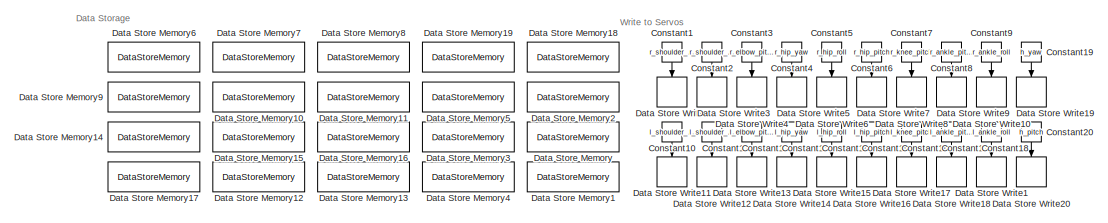
[diagram: root canvas - part 1/2, top center region]
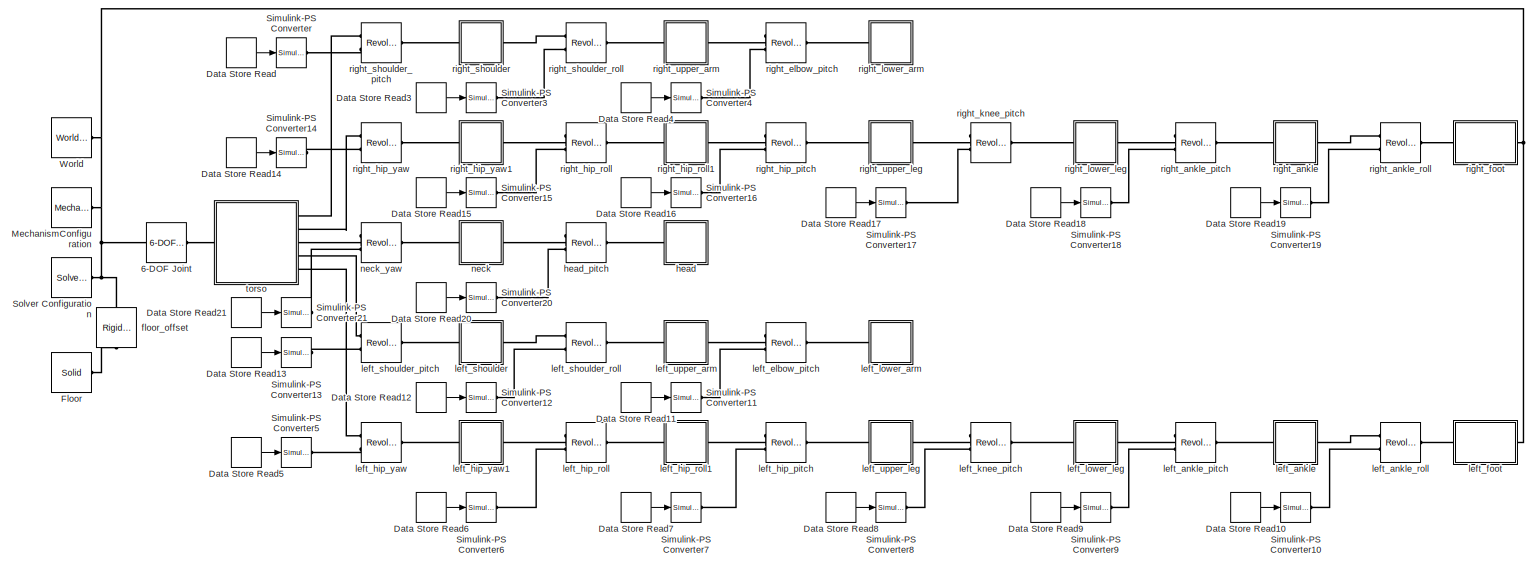
[diagram: root canvas - part 2/2, full width, middle band]
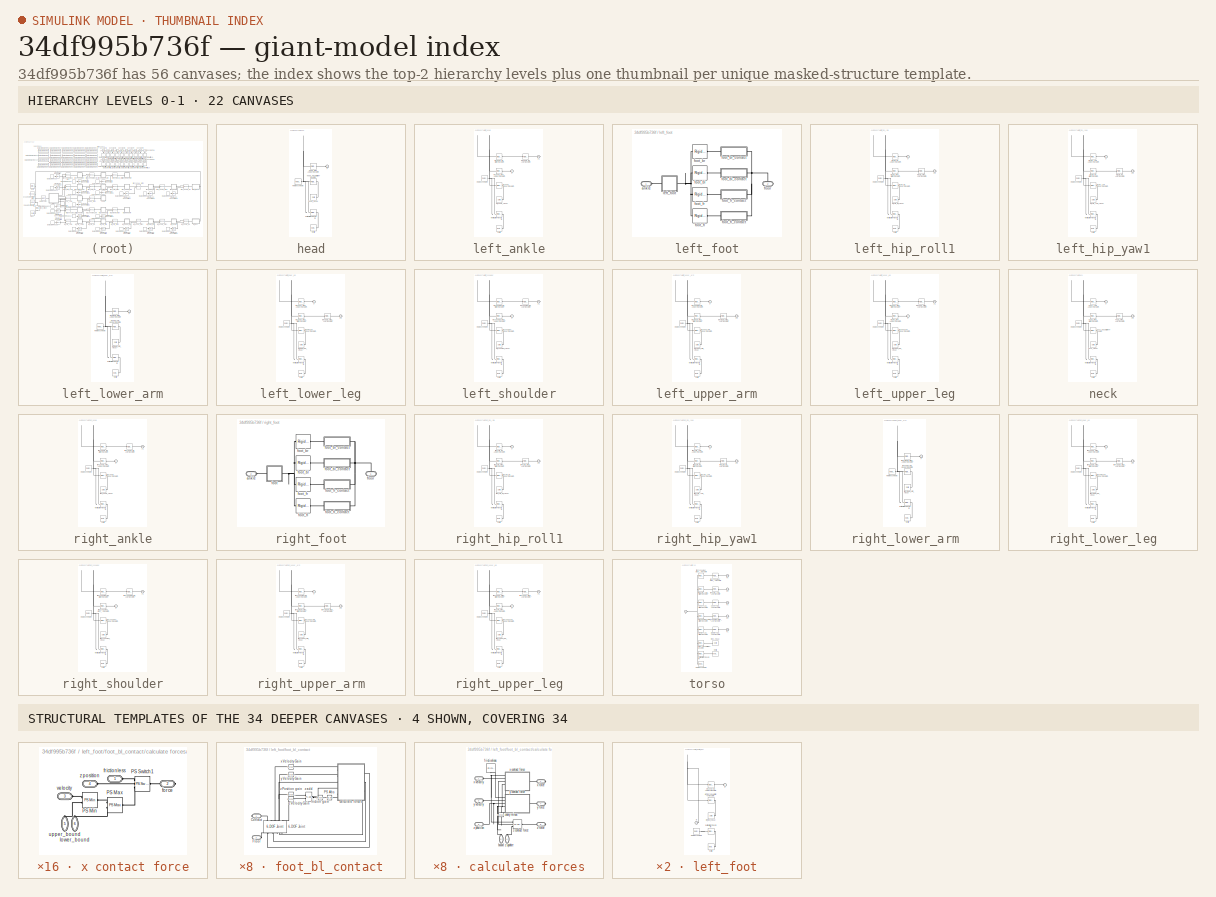
[diagram: thumbnail index - top-2 hierarchy levels (22 canvases) + 4 structural-template representatives of the remaining 34 canvases]
MODEL slx_34df995b736f
KIND model
CONFIG AbsTol = auto
CONFIG EnableMultiTasking = off
CONFIG FixedStep = auto
CONFIG MaxStep = auto
CONFIG MinStep = auto
CONFIG RelTol = 1e-3
CONFIG SampleTimeConstraint = Unconstrained
CONFIG Solver = VariableStepAuto
CONFIG SolverName = VariableStepAuto
CONFIG StartTime = 0.0
CONFIG StopTime = inf
BLOCK [Reference] 6-DOF Joint  REF=sm_lib/Joints/6-DOF Joint
  Ports = [0, 0, 0, 0, 0, 1, 1]
  SourceBlock = sm_lib/Joints/6-DOF Joint
  SourceProductBaseCode = MS
  SourceProductName = Simscape Multibody
  SourceType = 6-DOF Joint
BLOCK [Constant] Constant1
  Value = r_shoulder_pitch
BLOCK [Constant] Constant10
  Value = l_shoulder_pitch
BLOCK [Constant] Constant11
  Value = l_shoulder_roll
BLOCK [Constant] Constant12
  Value = l_elbow_pitch
BLOCK [Constant] Constant13
  Value = l_hip_yaw
BLOCK [Constant] Constant14
  Value = l_hip_roll
BLOCK [Constant] Constant15
  Value = l_hip_pitch
BLOCK [Constant] Constant16
  Value = l_knee_pitch
BLOCK [Constant] Constant17
  Value = l_ankle_pitch
BLOCK [Constant] Constant18
  Value = l_ankle_roll
BLOCK [Constant] Constant19
  Value = h_yaw
BLOCK [Constant] Constant2
  Value = r_shoulder_roll
BLOCK [Constant] Constant20
  Value = h_pitch
BLOCK [Constant] Constant3
  Value = r_elbow_pitch
BLOCK [Constant] Constant4
  Value = r_hip_yaw
BLOCK [Constant] Constant5
  Value = r_hip_roll
BLOCK [Constant] Constant6
  Value = r_hip_pitch
BLOCK [Constant] Constant7
  Value = r_knee_pitch
BLOCK [Constant] Constant8
  Value = r_ankle_pitch
BLOCK [Constant] Constant9
  Value = r_ankle_roll
BLOCK [DataStoreMemory] Data Store Memory
  DataStoreName = R_shoulder_pitch
  ReadBeforeWriteMsg = warning
  ShowAdditionalParam = off
  WriteAfterReadMsg = warning
  WriteAfterWriteMsg = warning
BLOCK [DataStoreMemory] Data Store Memory1
  DataStoreName = R_shoulder_roll
  ReadBeforeWriteMsg = warning
  ShowAdditionalParam = off
  WriteAfterReadMsg = warning
  WriteAfterWriteMsg = warning
BLOCK [DataStoreMemory] Data Store Memory10
  DataStoreName = R_ankle_pitch
  ReadBeforeWriteMsg = warning
  ShowAdditionalParam = off
  WriteAfterReadMsg = warning
  WriteAfterWriteMsg = warning
BLOCK [DataStoreMemory] Data Store Memory11
  DataStoreName = R_ankle_roll
  ReadBeforeWriteMsg = warning
  ShowAdditionalParam = off
  WriteAfterReadMsg = warning
  WriteAfterWriteMsg = warning
BLOCK [DataStoreMemory] Data Store Memory12
  DataStoreName = L_ankle_pitch
  ReadBeforeWriteMsg = warning
  ShowAdditionalParam = off
  WriteAfterReadMsg = warning
  WriteAfterWriteMsg = warning
BLOCK [DataStoreMemory] Data Store Memory13
  DataStoreName = L_ankle_roll
  ReadBeforeWriteMsg = warning
  ShowAdditionalParam = off
  WriteAfterReadMsg = warning
  WriteAfterWriteMsg = warning
BLOCK [DataStoreMemory] Data Store Memory14
  DataStoreName = L_hip_yaw
  ReadBeforeWriteMsg = warning
  ShowAdditionalParam = off
  WriteAfterReadMsg = warning
  WriteAfterWriteMsg = warning
BLOCK [DataStoreMemory] Data Store Memory15
  DataStoreName = L_hip_roll
  ReadBeforeWriteMsg = warning
  ShowAdditionalParam = off
  WriteAfterReadMsg = warning
  WriteAfterWriteMsg = warning
BLOCK [DataStoreMemory] Data Store Memory16
  DataStoreName = L_hip_pitch
  ReadBeforeWriteMsg = warning
  ShowAdditionalParam = off
  WriteAfterReadMsg = warning
  WriteAfterWriteMsg = warning
BLOCK [DataStoreMemory] Data Store Memory17
  DataStoreName = L_knee_pitch
  ReadBeforeWriteMsg = warning
  ShowAdditionalParam = off
  WriteAfterReadMsg = warning
  WriteAfterWriteMsg = warning
BLOCK [DataStoreMemory] Data Store Memory18
  DataStoreName = H_yaw
  ReadBeforeWriteMsg = warning
  ShowAdditionalParam = off
  WriteAfterReadMsg = warning
  WriteAfterWriteMsg = warning
BLOCK [DataStoreMemory] Data Store Memory19
  DataStoreName = H_pitch
  ReadBeforeWriteMsg = warning
  ShowAdditionalParam = off
  WriteAfterReadMsg = warning
  WriteAfterWriteMsg = warning
BLOCK [DataStoreMemory] Data Store Memory2
  DataStoreName = R_elbow_pitch
  ReadBeforeWriteMsg = warning
  ShowAdditionalParam = off
  WriteAfterReadMsg = warning
  WriteAfterWriteMsg = warning
BLOCK [DataStoreMemory] Data Store Memory3
  DataStoreName = L_shoulder_pitch
  ReadBeforeWriteMsg = warning
  ShowAdditionalParam = off
  WriteAfterReadMsg = warning
  WriteAfterWriteMsg = warning
BLOCK [DataStoreMemory] Data Store Memory4
  DataStoreName = L_shoulder_roll
  ReadBeforeWriteMsg = warning
  ShowAdditionalParam = off
  WriteAfterReadMsg = warning
  WriteAfterWriteMsg = warning
BLOCK [DataStoreMemory] Data Store Memory5
  DataStoreName = L_elbow_pitch
  ReadBeforeWriteMsg = warning
  ShowAdditionalParam = off
  WriteAfterReadMsg = warning
  WriteAfterWriteMsg = warning
BLOCK [DataStoreMemory] Data Store Memory6
  DataStoreName = R_hip_yaw
  ReadBeforeWriteMsg = warning
  ShowAdditionalParam = off
  WriteAfterReadMsg = warning
  WriteAfterWriteMsg = warning
BLOCK [DataStoreMemory] Data Store Memory7
  DataStoreName = R_hip_roll
  ReadBeforeWriteMsg = warning
  ShowAdditionalParam = off
  WriteAfterReadMsg = warning
  WriteAfterWriteMsg = warning
BLOCK [DataStoreMemory] Data Store Memory8
  DataStoreName = R_hip_pitch
  ReadBeforeWriteMsg = warning
  ShowAdditionalParam = off
  WriteAfterReadMsg = warning
  WriteAfterWriteMsg = warning
BLOCK [DataStoreMemory] Data Store Memory9
  DataStoreName = R_knee_pitch
  ReadBeforeWriteMsg = warning
  ShowAdditionalParam = off
  WriteAfterReadMsg = warning
  WriteAfterWriteMsg = warning
BLOCK [DataStoreRead] Data Store Read
  DataStoreName = R_shoulder_pitch
  Ports = [0, 1]
BLOCK [DataStoreRead] Data Store Read10
  DataStoreName = L_ankle_roll
  Ports = [0, 1]
BLOCK [DataStoreRead] Data Store Read11
  DataStoreName = L_elbow_pitch
  Ports = [0, 1]
BLOCK [DataStoreRead] Data Store Read12
  DataStoreName = L_shoulder_roll
  Ports = [0, 1]
BLOCK [DataStoreRead] Data Store Read13
  DataStoreName = L_shoulder_pitch
  Ports = [0, 1]
BLOCK [DataStoreRead] Data Store Read14
  DataStoreName = R_hip_yaw
  Ports = [0, 1]
BLOCK [DataStoreRead] Data Store Read15
  DataStoreName = R_hip_roll
  Ports = [0, 1]
BLOCK [DataStoreRead] Data Store Read16
  DataStoreName = R_hip_pitch
  Ports = [0, 1]
BLOCK [DataStoreRead] Data Store Read17
  DataStoreName = R_knee_pitch
  Ports = [0, 1]
BLOCK [DataStoreRead] Data Store Read18
  DataStoreName = R_ankle_pitch
  Ports = [0, 1]
BLOCK [DataStoreRead] Data Store Read19
  DataStoreName = R_ankle_roll
  Ports = [0, 1]
BLOCK [DataStoreRead] Data Store Read20
  DataStoreName = H_pitch
  Ports = [0, 1]
BLOCK [DataStoreRead] Data Store Read21
  DataStoreName = H_yaw
  Ports = [0, 1]
BLOCK [DataStoreRead] Data Store Read3
  DataStoreName = R_shoulder_roll
  Ports = [0, 1]
BLOCK [DataStoreRead] Data Store Read4
  DataStoreName = R_elbow_pitch
  Ports = [0, 1]
BLOCK [DataStoreRead] Data Store Read5
  DataStoreName = L_hip_yaw
  Ports = [0, 1]
BLOCK [DataStoreRead] Data Store Read6
  DataStoreName = L_hip_roll
  Ports = [0, 1]
BLOCK [DataStoreRead] Data Store Read7
  DataStoreName = L_hip_pitch
  Ports = [0, 1]
BLOCK [DataStoreRead] Data Store Read8
  DataStoreName = L_knee_pitch
  Ports = [0, 1]
BLOCK [DataStoreRead] Data Store Read9
  DataStoreName = L_ankle_pitch
  Ports = [0, 1]
BLOCK [DataStoreWrite] Data Store Write1
  DataStoreName = L_ankle_roll
  Ports = [1]
BLOCK [DataStoreWrite] Data Store Write10
  DataStoreName = R_ankle_roll
  Ports = [1]
BLOCK [DataStoreWrite] Data Store Write11
  DataStoreName = L_shoulder_pitch
  Ports = [1]
BLOCK [DataStoreWrite] Data Store Write12
  DataStoreName = L_shoulder_roll
  Ports = [1]
BLOCK [DataStoreWrite] Data Store Write13
  DataStoreName = L_elbow_pitch
  Ports = [1]
BLOCK [DataStoreWrite] Data Store Write14
  DataStoreName = L_hip_yaw
  Ports = [1]
BLOCK [DataStoreWrite] Data Store Write15
  DataStoreName = L_hip_roll
  Ports = [1]
BLOCK [DataStoreWrite] Data Store Write16
  DataStoreName = L_hip_pitch
  Ports = [1]
BLOCK [DataStoreWrite] Data Store Write17
  DataStoreName = L_knee_pitch
  Ports = [1]
BLOCK [DataStoreWrite] Data Store Write18
  DataStoreName = L_ankle_pitch
  Ports = [1]
BLOCK [DataStoreWrite] Data Store Write19
  DataStoreName = H_yaw
  Ports = [1]
BLOCK [DataStoreWrite] Data Store Write2
  DataStoreName = R_shoulder_pitch
  Ports = [1]
BLOCK [DataStoreWrite] Data Store Write20
  DataStoreName = H_pitch
  Ports = [1]
BLOCK [DataStoreWrite] Data Store Write3
  DataStoreName = R_shoulder_roll
  Ports = [1]
BLOCK [DataStoreWrite] Data Store Write4
  DataStoreName = R_elbow_pitch
  Ports = [1]
BLOCK [DataStoreWrite] Data Store Write5
  DataStoreName = R_hip_yaw
  Ports = [1]
BLOCK [DataStoreWrite] Data Store Write6
  DataStoreName = R_hip_roll
  Ports = [1]
BLOCK [DataStoreWrite] Data Store Write7
  DataStoreName = R_hip_pitch
  Ports = [1]
BLOCK [DataStoreWrite] Data Store Write8
  DataStoreName = R_knee_pitch
  Ports = [1]
BLOCK [DataStoreWrite] Data Store Write9
  DataStoreName = R_ankle_pitch
  Ports = [1]
BLOCK [Reference] Floor  REF=sm_lib/Body Elements/Solid
  Ports = [0, 0, 0, 0, 0, 0, 1]
  SourceBlock = sm_lib/Body Elements/Solid
  SourceProductBaseCode = MS
  SourceProductName = Simscape Multibody
  SourceType = Solid
BLOCK [Reference] MechanismConfiguration  REF=sm_lib/Utilities/Mechanism
Configuration
  Ports = [0, 0, 0, 0, 0, 0, 1]
  SourceBlock = sm_lib/Utilities/Mechanism\nConfiguration
  SourceProductBaseCode = MS
  SourceProductName = Simscape Multibody
  SourceType = Mechanism\nConfiguration
BLOCK [Reference] Simulink-PS Converter  REF=nesl_utility/Simulink-PS
Converter
  Ports = [1, 0, 0, 0, 0, 0, 1]
  SourceBlock = nesl_utility/Simulink-PS\nConverter
  SourceProductBaseCode = SS
  SourceProductName = Simscape
  SourceType = Simulink-PS\nConverter
BLOCK [Reference] Simulink-PS Converter10  REF=nesl_utility/Simulink-PS
Converter
  Ports = [1, 0, 0, 0, 0, 0, 1]
  SourceBlock = nesl_utility/Simulink-PS\nConverter
  SourceProductBaseCode = SS
  SourceProductName = Simscape
  SourceType = Simulink-PS\nConverter
BLOCK [Reference] Simulink-PS Converter11  REF=nesl_utility/Simulink-PS
Converter
  Ports = [1, 0, 0, 0, 0, 0, 1]
  SourceBlock = nesl_utility/Simulink-PS\nConverter
  SourceProductBaseCode = SS
  SourceProductName = Simscape
  SourceType = Simulink-PS\nConverter
BLOCK [Reference] Simulink-PS Converter12  REF=nesl_utility/Simulink-PS
Converter
  Ports = [1, 0, 0, 0, 0, 0, 1]
  SourceBlock = nesl_utility/Simulink-PS\nConverter
  SourceProductBaseCode = SS
  SourceProductName = Simscape
  SourceType = Simulink-PS\nConverter
BLOCK [Reference] Simulink-PS Converter13  REF=nesl_utility/Simulink-PS
Converter
  Ports = [1, 0, 0, 0, 0, 0, 1]
  SourceBlock = nesl_utility/Simulink-PS\nConverter
  SourceProductBaseCode = SS
  SourceProductName = Simscape
  SourceType = Simulink-PS\nConverter
BLOCK [Reference] Simulink-PS Converter14  REF=nesl_utility/Simulink-PS
Converter
  Ports = [1, 0, 0, 0, 0, 0, 1]
  SourceBlock = nesl_utility/Simulink-PS\nConverter
  SourceProductBaseCode = SS
  SourceProductName = Simscape
  SourceType = Simulink-PS\nConverter
BLOCK [Reference] Simulink-PS Converter15  REF=nesl_utility/Simulink-PS
Converter
  Ports = [1, 0, 0, 0, 0, 0, 1]
  SourceBlock = nesl_utility/Simulink-PS\nConverter
  SourceProductBaseCode = SS
  SourceProductName = Simscape
  SourceType = Simulink-PS\nConverter
BLOCK [Reference] Simulink-PS Converter16  REF=nesl_utility/Simulink-PS
Converter
  Ports = [1, 0, 0, 0, 0, 0, 1]
  SourceBlock = nesl_utility/Simulink-PS\nConverter
  SourceProductBaseCode = SS
  SourceProductName = Simscape
  SourceType = Simulink-PS\nConverter
BLOCK [Reference] Simulink-PS Converter17  REF=nesl_utility/Simulink-PS
Converter
  Ports = [1, 0, 0, 0, 0, 0, 1]
  SourceBlock = nesl_utility/Simulink-PS\nConverter
  SourceProductBaseCode = SS
  SourceProductName = Simscape
  SourceType = Simulink-PS\nConverter
BLOCK [Reference] Simulink-PS Converter18  REF=nesl_utility/Simulink-PS
Converter
  Ports = [1, 0, 0, 0, 0, 0, 1]
  SourceBlock = nesl_utility/Simulink-PS\nConverter
  SourceProductBaseCode = SS
  SourceProductName = Simscape
  SourceType = Simulink-PS\nConverter
BLOCK [Reference] Simulink-PS Converter19  REF=nesl_utility/Simulink-PS
Converter
  Ports = [1, 0, 0, 0, 0, 0, 1]
  SourceBlock = nesl_utility/Simulink-PS\nConverter
  SourceProductBaseCode = SS
  SourceProductName = Simscape
  SourceType = Simulink-PS\nConverter
BLOCK [Reference] Simulink-PS Converter20  REF=nesl_utility/Simulink-PS
Converter
  Ports = [1, 0, 0, 0, 0, 0, 1]
  SourceBlock = nesl_utility/Simulink-PS\nConverter
  SourceProductBaseCode = SS
  SourceProductName = Simscape
  SourceType = Simulink-PS\nConverter
BLOCK [Reference] Simulink-PS Converter21  REF=nesl_utility/Simulink-PS
Converter
  Ports = [1, 0, 0, 0, 0, 0, 1]
  SourceBlock = nesl_utility/Simulink-PS\nConverter
  SourceProductBaseCode = SS
  SourceProductName = Simscape
  SourceType = Simulink-PS\nConverter
BLOCK [Reference] Simulink-PS Converter3  REF=nesl_utility/Simulink-PS
Converter
  Ports = [1, 0, 0, 0, 0, 0, 1]
  SourceBlock = nesl_utility/Simulink-PS\nConverter
  SourceProductBaseCode = SS
  SourceProductName = Simscape
  SourceType = Simulink-PS\nConverter
BLOCK [Reference] Simulink-PS Converter4  REF=nesl_utility/Simulink-PS
Converter
  Ports = [1, 0, 0, 0, 0, 0, 1]
  SourceBlock = nesl_utility/Simulink-PS\nConverter
  SourceProductBaseCode = SS
  SourceProductName = Simscape
  SourceType = Simulink-PS\nConverter
BLOCK [Reference] Simulink-PS Converter5  REF=nesl_utility/Simulink-PS
Converter
  Ports = [1, 0, 0, 0, 0, 0, 1]
  SourceBlock = nesl_utility/Simulink-PS\nConverter
  SourceProductBaseCode = SS
  SourceProductName = Simscape
  SourceType = Simulink-PS\nConverter
BLOCK [Reference] Simulink-PS Converter6  REF=nesl_utility/Simulink-PS
Converter
  Ports = [1, 0, 0, 0, 0, 0, 1]
  SourceBlock = nesl_utility/Simulink-PS\nConverter
  SourceProductBaseCode = SS
  SourceProductName = Simscape
  SourceType = Simulink-PS\nConverter
BLOCK [Reference] Simulink-PS Converter7  REF=nesl_utility/Simulink-PS
Converter
  Ports = [1, 0, 0, 0, 0, 0, 1]
  SourceBlock = nesl_utility/Simulink-PS\nConverter
  SourceProductBaseCode = SS
  SourceProductName = Simscape
  SourceType = Simulink-PS\nConverter
BLOCK [Reference] Simulink-PS Converter8  REF=nesl_utility/Simulink-PS
Converter
  Ports = [1, 0, 0, 0, 0, 0, 1]
  SourceBlock = nesl_utility/Simulink-PS\nConverter
  SourceProductBaseCode = SS
  SourceProductName = Simscape
  SourceType = Simulink-PS\nConverter
BLOCK [Reference] Simulink-PS Converter9  REF=nesl_utility/Simulink-PS
Converter
  Ports = [1, 0, 0, 0, 0, 0, 1]
  SourceBlock = nesl_utility/Simulink-PS\nConverter
  SourceProductBaseCode = SS
  SourceProductName = Simscape
  SourceType = Simulink-PS\nConverter
BLOCK [Reference] Solver Configuration  REF=nesl_utility/Solver
Configuration
  Ports = [0, 0, 0, 0, 0, 0, 1]
  SourceBlock = nesl_utility/Solver\nConfiguration
  SourceProductBaseCode = SS
  SourceProductName = Simscape
  SourceType = Solver\nConfiguration
BLOCK [Reference] World  REF=sm_lib/Frames and
Transforms/World Frame
  Ports = [0, 0, 0, 0, 0, 0, 1]
  SourceBlock = sm_lib/Frames and\nTransforms/World Frame
  SourceProductBaseCode = MS
  SourceProductName = Simscape Multibody
  SourceType = World Frame
BLOCK [Reference] floor_offset  REF=sm_lib/Frames and
Transforms/Rigid
Transform
  Ports = [0, 0, 0, 0, 0, 1, 1]
  SourceBlock = sm_lib/Frames and\nTransforms/Rigid\nTransform
  SourceProductBaseCode = MS
  SourceProductName = Simscape Multibody
  SourceType = Rigid\nTransform
BLOCK [SubSystem] head
  Ports = [0, 0, 0, 0, 0, 1]
  RequestExecContextInheritance = off
BLOCK [PMIOPort] head/F
  Side = Left
BLOCK [Reference] head/Inertia  REF=sm_lib/Body Elements/Inertia
  Ports = [0, 0, 0, 0, 0, 0, 1]
  SourceBlock = sm_lib/Body Elements/Inertia
  SourceProductBaseCode = MS
  SourceProductName = Simscape Multibody
  SourceType = Inertia
BLOCK [Reference] head/InertiaOriginTransform  REF=sm_lib/Frames and
Transforms/Rigid
Transform
  Ports = [0, 0, 0, 0, 0, 1, 1]
  SourceBlock = sm_lib/Frames and\nTransforms/Rigid\nTransform
  SourceProductBaseCode = MS
  SourceProductName = Simscape Multibody
  SourceType = Rigid\nTransform
BLOCK [Reference] head/ReferenceFrame  REF=sm_lib/Frames and
Transforms/Reference
Frame
  Ports = [0, 0, 0, 0, 0, 0, 1]
  SourceBlock = sm_lib/Frames and\nTransforms/Reference\nFrame
  SourceProductBaseCode = MS
  SourceProductName = Simscape Multibody
  SourceType = Reference\nFrame
BLOCK [Reference] head/head_pitch_AxisInvTransform  REF=sm_lib/Frames and
Transforms/Rigid
Transform
  Ports = [0, 0, 0, 0, 0, 1, 1]
  SourceBlock = sm_lib/Frames and\nTransforms/Rigid\nTransform
  SourceProductBaseCode = MS
  SourceProductName = Simscape Multibody
  SourceType = Rigid\nTransform
BLOCK [Reference] head/head_visual  REF=sm_lib/Body Elements/Solid
  Ports = [0, 0, 0, 0, 0, 0, 1]
  SourceBlock = sm_lib/Body Elements/Solid
  SourceProductBaseCode = MS
  SourceProductName = Simscape Multibody
  SourceType = Solid
BLOCK [Reference] head/head_visualOriginTransform  REF=sm_lib/Frames and
Transforms/Rigid
Transform
  Ports = [0, 0, 0, 0, 0, 1, 1]
  SourceBlock = sm_lib/Frames and\nTransforms/Rigid\nTransform
  SourceProductBaseCode = MS
  SourceProductName = Simscape Multibody
  SourceType = Rigid\nTransform
BLOCK [Reference] head_pitch  REF=sm_lib/Joints/Revolute Joint
  Ports = [0, 0, 0, 0, 0, 2, 1]
  SourceBlock = sm_lib/Joints/Revolute Joint
  SourceProductBaseCode = MS
  SourceProductName = Simscape Multibody
  SourceType = Revolute Joint
BLOCK [SubSystem] left_ankle
  Ports = [0, 0, 0, 0, 0, 1, 1]
  RequestExecContextInheritance = off
BLOCK [PMIOPort] left_ankle/F
  Side = Left
BLOCK [PMIOPort] left_ankle/F1
  Port = 2
  Side = Right
BLOCK [Reference] left_ankle/Inertia  REF=sm_lib/Body Elements/Inertia
  Ports = [0, 0, 0, 0, 0, 0, 1]
  SourceBlock = sm_lib/Body Elements/Inertia
  SourceProductBaseCode = MS
  SourceProductName = Simscape Multibody
  SourceType = Inertia
BLOCK [Reference] left_ankle/InertiaOriginTransform  REF=sm_lib/Frames and
Transforms/Rigid
Transform
  Ports = [0, 0, 0, 0, 0, 1, 1]
  SourceBlock = sm_lib/Frames and\nTransforms/Rigid\nTransform
  SourceProductBaseCode = MS
  SourceProductName = Simscape Multibody
  SourceType = Rigid\nTransform
BLOCK [Reference] left_ankle/ReferenceFrame  REF=sm_lib/Frames and
Transforms/Reference
Frame
  Ports = [0, 0, 0, 0, 0, 0, 1]
  SourceBlock = sm_lib/Frames and\nTransforms/Reference\nFrame
  SourceProductBaseCode = MS
  SourceProductName = Simscape Multibody
  SourceType = Reference\nFrame
BLOCK [Reference] left_ankle/left_ankle_pitch_AxisInvTransform  REF=sm_lib/Frames and
Transforms/Rigid
Transform
  Ports = [0, 0, 0, 0, 0, 1, 1]
  SourceBlock = sm_lib/Frames and\nTransforms/Rigid\nTransform
  SourceProductBaseCode = MS
  SourceProductName = Simscape Multibody
  SourceType = Rigid\nTransform
BLOCK [Reference] left_ankle/left_ankle_roll_AxisTransform  REF=sm_lib/Frames and
Transforms/Rigid
Transform
  Ports = [0, 0, 0, 0, 0, 1, 1]
  SourceBlock = sm_lib/Frames and\nTransforms/Rigid\nTransform
  SourceProductBaseCode = MS
  SourceProductName = Simscape Multibody
  SourceType = Rigid\nTransform
BLOCK [Reference] left_ankle/left_ankle_roll_OriginTransform  REF=sm_lib/Frames and
Transforms/Rigid
Transform
  Ports = [0, 0, 0, 0, 0, 1, 1]
  SourceBlock = sm_lib/Frames and\nTransforms/Rigid\nTransform
  SourceProductBaseCode = MS
  SourceProductName = Simscape Multibody
  SourceType = Rigid\nTransform
BLOCK [Reference] left_ankle/left_ankle_visual  REF=sm_lib/Body Elements/Solid
  Ports = [0, 0, 0, 0, 0, 0, 1]
  SourceBlock = sm_lib/Body Elements/Solid
  SourceProductBaseCode = MS
  SourceProductName = Simscape Multibody
  SourceType = Solid
BLOCK [Reference] left_ankle/left_ankle_visualOriginTransform  REF=sm_lib/Frames and
Transforms/Rigid
Transform
  Ports = [0, 0, 0, 0, 0, 1, 1]
  SourceBlock = sm_lib/Frames and\nTransforms/Rigid\nTransform
  SourceProductBaseCode = MS
  SourceProductName = Simscape Multibody
  SourceType = Rigid\nTransform
BLOCK [Reference] left_ankle_pitch  REF=sm_lib/Joints/Revolute Joint
  Ports = [0, 0, 0, 0, 0, 2, 1]
  SourceBlock = sm_lib/Joints/Revolute Joint
  SourceProductBaseCode = MS
  SourceProductName = Simscape Multibody
  SourceType = Revolute Joint
BLOCK [Reference] left_ankle_roll  REF=sm_lib/Joints/Revolute Joint
  Ports = [0, 0, 0, 0, 0, 2, 1]
  SourceBlock = sm_lib/Joints/Revolute Joint
  SourceProductBaseCode = MS
  SourceProductName = Simscape Multibody
  SourceType = Revolute Joint
BLOCK [Reference] left_elbow_pitch  REF=sm_lib/Joints/Revolute Joint
  Ports = [0, 0, 0, 0, 0, 2, 1]
  SourceBlock = sm_lib/Joints/Revolute Joint
  SourceProductBaseCode = MS
  SourceProductName = Simscape Multibody
  SourceType = Revolute Joint
BLOCK [SubSystem] left_foot
  Ports = [0, 0, 0, 0, 0, 1, 1]
  RequestExecContextInheritance = off
BLOCK [PMIOPort] left_foot/ankle
  Side = Left
BLOCK [PMIOPort] left_foot/floor
  Port = 2
  Side = Right
BLOCK [Reference] left_foot/foot_bl  REF=sm_lib/Frames and
Transforms/Rigid
Transform
  Ports = [0, 0, 0, 0, 0, 1, 1]
  SourceBlock = sm_lib/Frames and\nTransforms/Rigid\nTransform
  SourceProductBaseCode = MS
  SourceProductName = Simscape Multibody
  SourceType = Rigid\nTransform
BLOCK [SubSystem] left_foot/foot_bl_contact
  Ports = [0, 0, 0, 0, 0, 1, 1]
  RequestExecContextInheritance = off
BLOCK [Reference] left_foot/foot_bl_contact/6-DOF Joint  REF=sm_lib/Joints/6-DOF Joint
  Ports = [0, 0, 0, 0, 0, 4, 5]
  SourceBlock = sm_lib/Joints/6-DOF Joint
  SourceProductBaseCode = MS
  SourceProductName = Simscape Multibody
  SourceType = 6-DOF Joint
BLOCK [PMIOPort] left_foot/foot_bl_contact/Contact
  Side = Right
BLOCK [PMIOPort] left_foot/foot_bl_contact/Floor
  Port = 2
  Side = Left
BLOCK [Reference] left_foot/foot_bl_contact/PS Abs  REF=fl_lib/Physical Signals/Nonlinear Operators/PS Abs
  Ports = [0, 0, 0, 0, 0, 1, 1]
  SourceBlock = fl_lib/Physical Signals/Nonlinear Operators/PS Abs
  SourceProductBaseCode = SS
  SourceProductName = Simscape
  SourceType = PS Abs
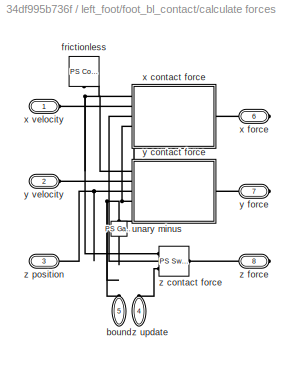
BLOCK [SubSystem] left_foot/foot_bl_contact/calculate forces
  Ports = [0, 0, 0, 0, 0, 5, 3]
  RequestExecContextInheritance = off
BLOCK [PMIOPort] left_foot/foot_bl_contact/calculate forces/bound
  Port = 5
  Side = Left
BLOCK [Reference] left_foot/foot_bl_contact/calculate forces/frictionless  REF=fl_lib/Physical Signals/Sources/PS Constant
  Ports = [0, 0, 0, 0, 0, 0, 1]
  SourceBlock = fl_lib/Physical Signals/Sources/PS Constant
  SourceProductBaseCode = SS
  SourceProductName = Simscape
  SourceType = PS Constant
BLOCK [Reference] left_foot/foot_bl_contact/calculate forces/unary minus  REF=fl_lib/Physical Signals/Functions/PS Gain
  Ports = [0, 0, 0, 0, 0, 1, 1]
  SourceBlock = fl_lib/Physical Signals/Functions/PS Gain
  SourceProductBaseCode = SS
  SourceProductName = Simscape
  SourceType = PS Gain
BLOCK [SubSystem] left_foot/foot_bl_contact/calculate forces/x contact force
  Ports = [0, 0, 0, 0, 0, 5, 1]
  RequestExecContextInheritance = off
BLOCK [Reference] left_foot/foot_bl_contact/calculate forces/x contact force/PS Max  REF=fl_lib/Physical Signals/Nonlinear Operators/PS Max
  Ports = [0, 0, 0, 0, 0, 2, 1]
  SourceBlock = fl_lib/Physical Signals/Nonlinear Operators/PS Max
  SourceProductBaseCode = SS
  SourceProductName = Simscape
  SourceType = PS Max
BLOCK [Reference] left_foot/foot_bl_contact/calculate forces/x contact force/PS Min  REF=fl_lib/Physical Signals/Nonlinear Operators/PS Min
  Ports = [0, 0, 0, 0, 0, 2, 1]
  SourceBlock = fl_lib/Physical Signals/Nonlinear Operators/PS Min
  SourceProductBaseCode = SS
  SourceProductName = Simscape
  SourceType = PS Min
BLOCK [Reference] left_foot/foot_bl_contact/calculate forces/x contact force/PS Switch1  REF=fl_lib/Physical Signals/Nonlinear Operators/PS Switch
  Ports = [0, 0, 0, 0, 0, 3, 1]
  SourceBlock = fl_lib/Physical Signals/Nonlinear Operators/PS Switch
  SourceProductBaseCode = SS
  SourceProductName = Simscape
  SourceType = PS Switch
BLOCK [PMIOPort] left_foot/foot_bl_contact/calculate forces/x contact force/force
  Port = 2
  Side = Right
BLOCK [PMIOPort] left_foot/foot_bl_contact/calculate forces/x contact force/frictionless
  Side = Left
BLOCK [PMIOPort] left_foot/foot_bl_contact/calculate forces/x contact force/lower_bound
  Port = 6
  Side = Left
BLOCK [PMIOPort] left_foot/foot_bl_contact/calculate forces/x contact force/upper_bound
  Port = 5
  Side = Left
BLOCK [PMIOPort] left_foot/foot_bl_contact/calculate forces/x contact force/velocity
  Port = 3
  Side = Left
BLOCK [PMIOPort] left_foot/foot_bl_contact/calculate forces/x contact force/z position
  Port = 4
  Side = Left
BLOCK [PMIOPort] left_foot/foot_bl_contact/calculate forces/x force
  Port = 6
  Side = Right
BLOCK [PMIOPort] left_foot/foot_bl_contact/calculate forces/x velocity
  Side = Left
BLOCK [SubSystem] left_foot/foot_bl_contact/calculate forces/y contact force
  Ports = [0, 0, 0, 0, 0, 5, 1]
  RequestExecContextInheritance = off
BLOCK [Reference] left_foot/foot_bl_contact/calculate forces/y contact force/PS Max  REF=fl_lib/Physical Signals/Nonlinear Operators/PS Max
  Ports = [0, 0, 0, 0, 0, 2, 1]
  SourceBlock = fl_lib/Physical Signals/Nonlinear Operators/PS Max
  SourceProductBaseCode = SS
  SourceProductName = Simscape
  SourceType = PS Max
BLOCK [Reference] left_foot/foot_bl_contact/calculate forces/y contact force/PS Min  REF=fl_lib/Physical Signals/Nonlinear Operators/PS Min
  Ports = [0, 0, 0, 0, 0, 2, 1]
  SourceBlock = fl_lib/Physical Signals/Nonlinear Operators/PS Min
  SourceProductBaseCode = SS
  SourceProductName = Simscape
  SourceType = PS Min
BLOCK [Reference] left_foot/foot_bl_contact/calculate forces/y contact force/PS Switch1  REF=fl_lib/Physical Signals/Nonlinear Operators/PS Switch
  Ports = [0, 0, 0, 0, 0, 3, 1]
  SourceBlock = fl_lib/Physical Signals/Nonlinear Operators/PS Switch
  SourceProductBaseCode = SS
  SourceProductName = Simscape
  SourceType = PS Switch
BLOCK [PMIOPort] left_foot/foot_bl_contact/calculate forces/y contact force/force
  Port = 2
  Side = Right
BLOCK [PMIOPort] left_foot/foot_bl_contact/calculate forces/y contact force/frictionless
  Side = Left
BLOCK [PMIOPort] left_foot/foot_bl_contact/calculate forces/y contact force/lower_bound
  Port = 6
  Side = Left
BLOCK [PMIOPort] left_foot/foot_bl_contact/calculate forces/y contact force/upper_bound
  Port = 5
  Side = Left
BLOCK [PMIOPort] left_foot/foot_bl_contact/calculate forces/y contact force/velocity
  Port = 3
  Side = Left
BLOCK [PMIOPort] left_foot/foot_bl_contact/calculate forces/y contact force/z position
  Port = 4
  Side = Left
BLOCK [PMIOPort] left_foot/foot_bl_contact/calculate forces/y force
  Port = 7
  Side = Right
BLOCK [PMIOPort] left_foot/foot_bl_contact/calculate forces/y velocity
  Port = 2
  Side = Left
BLOCK [Reference] left_foot/foot_bl_contact/calculate forces/z contact force  REF=fl_lib/Physical Signals/Nonlinear Operators/PS Switch
  Ports = [0, 0, 0, 0, 0, 3, 1]
  SourceBlock = fl_lib/Physical Signals/Nonlinear Operators/PS Switch
  SourceProductBaseCode = SS
  SourceProductName = Simscape
  SourceType = PS Switch
BLOCK [PMIOPort] left_foot/foot_bl_contact/calculate forces/z force
  Port = 8
  Side = Right
BLOCK [PMIOPort] left_foot/foot_bl_contact/calculate forces/z position
  Port = 3
  Side = Left
BLOCK [PMIOPort] left_foot/foot_bl_contact/calculate forces/z update
  Port = 4
  Side = Left
BLOCK [Reference] left_foot/foot_bl_contact/friction gain  REF=fl_lib/Physical Signals/Functions/PS Gain
  Ports = [0, 0, 0, 0, 0, 1, 1]
  SourceBlock = fl_lib/Physical Signals/Functions/PS Gain
  SourceProductBaseCode = SS
  SourceProductName = Simscape
  SourceType = PS Gain
BLOCK [Reference] left_foot/foot_bl_contact/x Velocity Gain  REF=fl_lib/Physical Signals/Functions/PS Gain
  Ports = [0, 0, 0, 0, 0, 1, 1]
  SourceBlock = fl_lib/Physical Signals/Functions/PS Gain
  SourceProductBaseCode = SS
  SourceProductName = Simscape
  SourceType = PS Gain
BLOCK [Reference] left_foot/foot_bl_contact/y Velocity Gain  REF=fl_lib/Physical Signals/Functions/PS Gain
  Ports = [0, 0, 0, 0, 0, 1, 1]
  SourceBlock = fl_lib/Physical Signals/Functions/PS Gain
  SourceProductBaseCode = SS
  SourceProductName = Simscape
  SourceType = PS Gain
BLOCK [Reference] left_foot/foot_bl_contact/z Position gain  REF=fl_lib/Physical Signals/Functions/PS Gain
  Ports = [0, 0, 0, 0, 0, 1, 1]
  SourceBlock = fl_lib/Physical Signals/Functions/PS Gain
  SourceProductBaseCode = SS
  SourceProductName = Simscape
  SourceType = PS Gain
BLOCK [Reference] left_foot/foot_bl_contact/z Velocity Gain  REF=fl_lib/Physical Signals/Functions/PS Gain
  Ports = [0, 0, 0, 0, 0, 1, 1]
  SourceBlock = fl_lib/Physical Signals/Functions/PS Gain
  SourceProductBaseCode = SS
  SourceProductName = Simscape
  SourceType = PS Gain
BLOCK [Reference] left_foot/foot_bl_contact/z add  REF=fl_lib/Physical Signals/Functions/PS Add
  Ports = [0, 0, 0, 0, 0, 2, 1]
  SourceBlock = fl_lib/Physical Signals/Functions/PS Add
  SourceProductBaseCode = SS
  SourceProductName = Simscape
  SourceType = PS Add
BLOCK [Reference] left_foot/foot_br  REF=sm_lib/Frames and
Transforms/Rigid
Transform
  Ports = [0, 0, 0, 0, 0, 1, 1]
  SourceBlock = sm_lib/Frames and\nTransforms/Rigid\nTransform
  SourceProductBaseCode = MS
  SourceProductName = Simscape Multibody
  SourceType = Rigid\nTransform
BLOCK [SubSystem] left_foot/foot_br_contact
  Ports = [0, 0, 0, 0, 0, 1, 1]
  RequestExecContextInheritance = off
BLOCK [Reference] left_foot/foot_br_contact/6-DOF Joint  REF=sm_lib/Joints/6-DOF Joint
  Ports = [0, 0, 0, 0, 0, 4, 5]
  SourceBlock = sm_lib/Joints/6-DOF Joint
  SourceProductBaseCode = MS
  SourceProductName = Simscape Multibody
  SourceType = 6-DOF Joint
BLOCK [PMIOPort] left_foot/foot_br_contact/Contact
  Side = Right
BLOCK [PMIOPort] left_foot/foot_br_contact/Floor
  Port = 2
  Side = Left
BLOCK [Reference] left_foot/foot_br_contact/PS Abs  REF=fl_lib/Physical Signals/Nonlinear Operators/PS Abs
  Ports = [0, 0, 0, 0, 0, 1, 1]
  SourceBlock = fl_lib/Physical Signals/Nonlinear Operators/PS Abs
  SourceProductBaseCode = SS
  SourceProductName = Simscape
  SourceType = PS Abs
BLOCK [SubSystem] left_foot/foot_br_contact/calculate forces
  Ports = [0, 0, 0, 0, 0, 5, 3]
  RequestExecContextInheritance = off
BLOCK [PMIOPort] left_foot/foot_br_contact/calculate forces/bound
  Port = 5
  Side = Left
BLOCK [Reference] left_foot/foot_br_contact/calculate forces/frictionless  REF=fl_lib/Physical Signals/Sources/PS Constant
  Ports = [0, 0, 0, 0, 0, 0, 1]
  SourceBlock = fl_lib/Physical Signals/Sources/PS Constant
  SourceProductBaseCode = SS
  SourceProductName = Simscape
  SourceType = PS Constant
BLOCK [Reference] left_foot/foot_br_contact/calculate forces/unary minus  REF=fl_lib/Physical Signals/Functions/PS Gain
  Ports = [0, 0, 0, 0, 0, 1, 1]
  SourceBlock = fl_lib/Physical Signals/Functions/PS Gain
  SourceProductBaseCode = SS
  SourceProductName = Simscape
  SourceType = PS Gain
BLOCK [SubSystem] left_foot/foot_br_contact/calculate forces/x contact force
  Ports = [0, 0, 0, 0, 0, 5, 1]
  RequestExecContextInheritance = off
BLOCK [Reference] left_foot/foot_br_contact/calculate forces/x contact force/PS Max  REF=fl_lib/Physical Signals/Nonlinear Operators/PS Max
  Ports = [0, 0, 0, 0, 0, 2, 1]
  SourceBlock = fl_lib/Physical Signals/Nonlinear Operators/PS Max
  SourceProductBaseCode = SS
  SourceProductName = Simscape
  SourceType = PS Max
BLOCK [Reference] left_foot/foot_br_contact/calculate forces/x contact force/PS Min  REF=fl_lib/Physical Signals/Nonlinear Operators/PS Min
  Ports = [0, 0, 0, 0, 0, 2, 1]
  SourceBlock = fl_lib/Physical Signals/Nonlinear Operators/PS Min
  SourceProductBaseCode = SS
  SourceProductName = Simscape
  SourceType = PS Min
BLOCK [Reference] left_foot/foot_br_contact/calculate forces/x contact force/PS Switch1  REF=fl_lib/Physical Signals/Nonlinear Operators/PS Switch
  Ports = [0, 0, 0, 0, 0, 3, 1]
  SourceBlock = fl_lib/Physical Signals/Nonlinear Operators/PS Switch
  SourceProductBaseCode = SS
  SourceProductName = Simscape
  SourceType = PS Switch
BLOCK [PMIOPort] left_foot/foot_br_contact/calculate forces/x contact force/force
  Port = 2
  Side = Right
BLOCK [PMIOPort] left_foot/foot_br_contact/calculate forces/x contact force/frictionless
  Side = Left
BLOCK [PMIOPort] left_foot/foot_br_contact/calculate forces/x contact force/lower_bound
  Port = 6
  Side = Left
BLOCK [PMIOPort] left_foot/foot_br_contact/calculate forces/x contact force/upper_bound
  Port = 5
  Side = Left
BLOCK [PMIOPort] left_foot/foot_br_contact/calculate forces/x contact force/velocity
  Port = 3
  Side = Left
BLOCK [PMIOPort] left_foot/foot_br_contact/calculate forces/x contact force/z position
  Port = 4
  Side = Left
BLOCK [PMIOPort] left_foot/foot_br_contact/calculate forces/x force
  Port = 6
  Side = Right
BLOCK [PMIOPort] left_foot/foot_br_contact/calculate forces/x velocity
  Side = Left
BLOCK [SubSystem] left_foot/foot_br_contact/calculate forces/y contact force
  Ports = [0, 0, 0, 0, 0, 5, 1]
  RequestExecContextInheritance = off
BLOCK [Reference] left_foot/foot_br_contact/calculate forces/y contact force/PS Max  REF=fl_lib/Physical Signals/Nonlinear Operators/PS Max
  Ports = [0, 0, 0, 0, 0, 2, 1]
  SourceBlock = fl_lib/Physical Signals/Nonlinear Operators/PS Max
  SourceProductBaseCode = SS
  SourceProductName = Simscape
  SourceType = PS Max
BLOCK [Reference] left_foot/foot_br_contact/calculate forces/y contact force/PS Min  REF=fl_lib/Physical Signals/Nonlinear Operators/PS Min
  Ports = [0, 0, 0, 0, 0, 2, 1]
  SourceBlock = fl_lib/Physical Signals/Nonlinear Operators/PS Min
  SourceProductBaseCode = SS
  SourceProductName = Simscape
  SourceType = PS Min
BLOCK [Reference] left_foot/foot_br_contact/calculate forces/y contact force/PS Switch1  REF=fl_lib/Physical Signals/Nonlinear Operators/PS Switch
  Ports = [0, 0, 0, 0, 0, 3, 1]
  SourceBlock = fl_lib/Physical Signals/Nonlinear Operators/PS Switch
  SourceProductBaseCode = SS
  SourceProductName = Simscape
  SourceType = PS Switch
BLOCK [PMIOPort] left_foot/foot_br_contact/calculate forces/y contact force/force
  Port = 2
  Side = Right
BLOCK [PMIOPort] left_foot/foot_br_contact/calculate forces/y contact force/frictionless
  Side = Left
BLOCK [PMIOPort] left_foot/foot_br_contact/calculate forces/y contact force/lower_bound
  Port = 6
  Side = Left
BLOCK [PMIOPort] left_foot/foot_br_contact/calculate forces/y contact force/upper_bound
  Port = 5
  Side = Left
BLOCK [PMIOPort] left_foot/foot_br_contact/calculate forces/y contact force/velocity
  Port = 3
  Side = Left
BLOCK [PMIOPort] left_foot/foot_br_contact/calculate forces/y contact force/z position
  Port = 4
  Side = Left
BLOCK [PMIOPort] left_foot/foot_br_contact/calculate forces/y force
  Port = 7
  Side = Right
BLOCK [PMIOPort] left_foot/foot_br_contact/calculate forces/y velocity
  Port = 2
  Side = Left
BLOCK [Reference] left_foot/foot_br_contact/calculate forces/z contact force  REF=fl_lib/Physical Signals/Nonlinear Operators/PS Switch
  Ports = [0, 0, 0, 0, 0, 3, 1]
  SourceBlock = fl_lib/Physical Signals/Nonlinear Operators/PS Switch
  SourceProductBaseCode = SS
  SourceProductName = Simscape
  SourceType = PS Switch
BLOCK [PMIOPort] left_foot/foot_br_contact/calculate forces/z force
  Port = 8
  Side = Right
BLOCK [PMIOPort] left_foot/foot_br_contact/calculate forces/z position
  Port = 3
  Side = Left
BLOCK [PMIOPort] left_foot/foot_br_contact/calculate forces/z update
  Port = 4
  Side = Left
BLOCK [Reference] left_foot/foot_br_contact/friction gain  REF=fl_lib/Physical Signals/Functions/PS Gain
  Ports = [0, 0, 0, 0, 0, 1, 1]
  SourceBlock = fl_lib/Physical Signals/Functions/PS Gain
  SourceProductBaseCode = SS
  SourceProductName = Simscape
  SourceType = PS Gain
BLOCK [Reference] left_foot/foot_br_contact/x Velocity Gain  REF=fl_lib/Physical Signals/Functions/PS Gain
  Ports = [0, 0, 0, 0, 0, 1, 1]
  SourceBlock = fl_lib/Physical Signals/Functions/PS Gain
  SourceProductBaseCode = SS
  SourceProductName = Simscape
  SourceType = PS Gain
BLOCK [Reference] left_foot/foot_br_contact/y Velocity Gain  REF=fl_lib/Physical Signals/Functions/PS Gain
  Ports = [0, 0, 0, 0, 0, 1, 1]
  SourceBlock = fl_lib/Physical Signals/Functions/PS Gain
  SourceProductBaseCode = SS
  SourceProductName = Simscape
  SourceType = PS Gain
BLOCK [Reference] left_foot/foot_br_contact/z Position gain  REF=fl_lib/Physical Signals/Functions/PS Gain
  Ports = [0, 0, 0, 0, 0, 1, 1]
  SourceBlock = fl_lib/Physical Signals/Functions/PS Gain
  SourceProductBaseCode = SS
  SourceProductName = Simscape
  SourceType = PS Gain
BLOCK [Reference] left_foot/foot_br_contact/z Velocity Gain  REF=fl_lib/Physical Signals/Functions/PS Gain
  Ports = [0, 0, 0, 0, 0, 1, 1]
  SourceBlock = fl_lib/Physical Signals/Functions/PS Gain
  SourceProductBaseCode = SS
  SourceProductName = Simscape
  SourceType = PS Gain
BLOCK [Reference] left_foot/foot_br_contact/z add  REF=fl_lib/Physical Signals/Functions/PS Add
  Ports = [0, 0, 0, 0, 0, 2, 1]
  SourceBlock = fl_lib/Physical Signals/Functions/PS Add
  SourceProductBaseCode = SS
  SourceProductName = Simscape
  SourceType = PS Add
BLOCK [Reference] left_foot/foot_fl  REF=sm_lib/Frames and
Transforms/Rigid
Transform
  Ports = [0, 0, 0, 0, 0, 1, 1]
  SourceBlock = sm_lib/Frames and\nTransforms/Rigid\nTransform
  SourceProductBaseCode = MS
  SourceProductName = Simscape Multibody
  SourceType = Rigid\nTransform
BLOCK [SubSystem] left_foot/foot_fl_contact
  Ports = [0, 0, 0, 0, 0, 1, 1]
  RequestExecContextInheritance = off
BLOCK [Reference] left_foot/foot_fl_contact/6-DOF Joint  REF=sm_lib/Joints/6-DOF Joint
  Ports = [0, 0, 0, 0, 0, 4, 5]
  SourceBlock = sm_lib/Joints/6-DOF Joint
  SourceProductBaseCode = MS
  SourceProductName = Simscape Multibody
  SourceType = 6-DOF Joint
BLOCK [PMIOPort] left_foot/foot_fl_contact/Contact
  Side = Right
BLOCK [PMIOPort] left_foot/foot_fl_contact/Floor
  Port = 2
  Side = Left
BLOCK [Reference] left_foot/foot_fl_contact/PS Abs  REF=fl_lib/Physical Signals/Nonlinear Operators/PS Abs
  Ports = [0, 0, 0, 0, 0, 1, 1]
  SourceBlock = fl_lib/Physical Signals/Nonlinear Operators/PS Abs
  SourceProductBaseCode = SS
  SourceProductName = Simscape
  SourceType = PS Abs
BLOCK [SubSystem] left_foot/foot_fl_contact/calculate forces
  Ports = [0, 0, 0, 0, 0, 5, 3]
  RequestExecContextInheritance = off
BLOCK [PMIOPort] left_foot/foot_fl_contact/calculate forces/bound
  Port = 5
  Side = Left
BLOCK [Reference] left_foot/foot_fl_contact/calculate forces/frictionless  REF=fl_lib/Physical Signals/Sources/PS Constant
  Ports = [0, 0, 0, 0, 0, 0, 1]
  SourceBlock = fl_lib/Physical Signals/Sources/PS Constant
  SourceProductBaseCode = SS
  SourceProductName = Simscape
  SourceType = PS Constant
BLOCK [Reference] left_foot/foot_fl_contact/calculate forces/unary minus  REF=fl_lib/Physical Signals/Functions/PS Gain
  Ports = [0, 0, 0, 0, 0, 1, 1]
  SourceBlock = fl_lib/Physical Signals/Functions/PS Gain
  SourceProductBaseCode = SS
  SourceProductName = Simscape
  SourceType = PS Gain
BLOCK [SubSystem] left_foot/foot_fl_contact/calculate forces/x contact force
  Ports = [0, 0, 0, 0, 0, 5, 1]
  RequestExecContextInheritance = off
BLOCK [Reference] left_foot/foot_fl_contact/calculate forces/x contact force/PS Max  REF=fl_lib/Physical Signals/Nonlinear Operators/PS Max
  Ports = [0, 0, 0, 0, 0, 2, 1]
  SourceBlock = fl_lib/Physical Signals/Nonlinear Operators/PS Max
  SourceProductBaseCode = SS
  SourceProductName = Simscape
  SourceType = PS Max
BLOCK [Reference] left_foot/foot_fl_contact/calculate forces/x contact force/PS Min  REF=fl_lib/Physical Signals/Nonlinear Operators/PS Min
  Ports = [0, 0, 0, 0, 0, 2, 1]
  SourceBlock = fl_lib/Physical Signals/Nonlinear Operators/PS Min
  SourceProductBaseCode = SS
  SourceProductName = Simscape
  SourceType = PS Min
BLOCK [Reference] left_foot/foot_fl_contact/calculate forces/x contact force/PS Switch1  REF=fl_lib/Physical Signals/Nonlinear Operators/PS Switch
  Ports = [0, 0, 0, 0, 0, 3, 1]
  SourceBlock = fl_lib/Physical Signals/Nonlinear Operators/PS Switch
  SourceProductBaseCode = SS
  SourceProductName = Simscape
  SourceType = PS Switch
BLOCK [PMIOPort] left_foot/foot_fl_contact/calculate forces/x contact force/force
  Port = 2
  Side = Right
BLOCK [PMIOPort] left_foot/foot_fl_contact/calculate forces/x contact force/frictionless
  Side = Left
BLOCK [PMIOPort] left_foot/foot_fl_contact/calculate forces/x contact force/lower_bound
  Port = 6
  Side = Left
BLOCK [PMIOPort] left_foot/foot_fl_contact/calculate forces/x contact force/upper_bound
  Port = 5
  Side = Left
BLOCK [PMIOPort] left_foot/foot_fl_contact/calculate forces/x contact force/velocity
  Port = 3
  Side = Left
BLOCK [PMIOPort] left_foot/foot_fl_contact/calculate forces/x contact force/z position
  Port = 4
  Side = Left
BLOCK [PMIOPort] left_foot/foot_fl_contact/calculate forces/x force
  Port = 6
  Side = Right
BLOCK [PMIOPort] left_foot/foot_fl_contact/calculate forces/x velocity
  Side = Left
BLOCK [SubSystem] left_foot/foot_fl_contact/calculate forces/y contact force
  Ports = [0, 0, 0, 0, 0, 5, 1]
  RequestExecContextInheritance = off
BLOCK [Reference] left_foot/foot_fl_contact/calculate forces/y contact force/PS Max  REF=fl_lib/Physical Signals/Nonlinear Operators/PS Max
  Ports = [0, 0, 0, 0, 0, 2, 1]
  SourceBlock = fl_lib/Physical Signals/Nonlinear Operators/PS Max
  SourceProductBaseCode = SS
  SourceProductName = Simscape
  SourceType = PS Max
BLOCK [Reference] left_foot/foot_fl_contact/calculate forces/y contact force/PS Min  REF=fl_lib/Physical Signals/Nonlinear Operators/PS Min
  Ports = [0, 0, 0, 0, 0, 2, 1]
  SourceBlock = fl_lib/Physical Signals/Nonlinear Operators/PS Min
  SourceProductBaseCode = SS
  SourceProductName = Simscape
  SourceType = PS Min
BLOCK [Reference] left_foot/foot_fl_contact/calculate forces/y contact force/PS Switch1  REF=fl_lib/Physical Signals/Nonlinear Operators/PS Switch
  Ports = [0, 0, 0, 0, 0, 3, 1]
  SourceBlock = fl_lib/Physical Signals/Nonlinear Operators/PS Switch
  SourceProductBaseCode = SS
  SourceProductName = Simscape
  SourceType = PS Switch
BLOCK [PMIOPort] left_foot/foot_fl_contact/calculate forces/y contact force/force
  Port = 2
  Side = Right
BLOCK [PMIOPort] left_foot/foot_fl_contact/calculate forces/y contact force/frictionless
  Side = Left
BLOCK [PMIOPort] left_foot/foot_fl_contact/calculate forces/y contact force/lower_bound
  Port = 6
  Side = Left
BLOCK [PMIOPort] left_foot/foot_fl_contact/calculate forces/y contact force/upper_bound
  Port = 5
  Side = Left
BLOCK [PMIOPort] left_foot/foot_fl_contact/calculate forces/y contact force/velocity
  Port = 3
  Side = Left
BLOCK [PMIOPort] left_foot/foot_fl_contact/calculate forces/y contact force/z position
  Port = 4
  Side = Left
BLOCK [PMIOPort] left_foot/foot_fl_contact/calculate forces/y force
  Port = 7
  Side = Right
BLOCK [PMIOPort] left_foot/foot_fl_contact/calculate forces/y velocity
  Port = 2
  Side = Left
BLOCK [Reference] left_foot/foot_fl_contact/calculate forces/z contact force  REF=fl_lib/Physical Signals/Nonlinear Operators/PS Switch
  Ports = [0, 0, 0, 0, 0, 3, 1]
  SourceBlock = fl_lib/Physical Signals/Nonlinear Operators/PS Switch
  SourceProductBaseCode = SS
  SourceProductName = Simscape
  SourceType = PS Switch
BLOCK [PMIOPort] left_foot/foot_fl_contact/calculate forces/z force
  Port = 8
  Side = Right
BLOCK [PMIOPort] left_foot/foot_fl_contact/calculate forces/z position
  Port = 3
  Side = Left
BLOCK [PMIOPort] left_foot/foot_fl_contact/calculate forces/z update
  Port = 4
  Side = Left
BLOCK [Reference] left_foot/foot_fl_contact/friction gain  REF=fl_lib/Physical Signals/Functions/PS Gain
  Ports = [0, 0, 0, 0, 0, 1, 1]
  SourceBlock = fl_lib/Physical Signals/Functions/PS Gain
  SourceProductBaseCode = SS
  SourceProductName = Simscape
  SourceType = PS Gain
BLOCK [Reference] left_foot/foot_fl_contact/x Velocity Gain  REF=fl_lib/Physical Signals/Functions/PS Gain
  Ports = [0, 0, 0, 0, 0, 1, 1]
  SourceBlock = fl_lib/Physical Signals/Functions/PS Gain
  SourceProductBaseCode = SS
  SourceProductName = Simscape
  SourceType = PS Gain
BLOCK [Reference] left_foot/foot_fl_contact/y Velocity Gain  REF=fl_lib/Physical Signals/Functions/PS Gain
  Ports = [0, 0, 0, 0, 0, 1, 1]
  SourceBlock = fl_lib/Physical Signals/Functions/PS Gain
  SourceProductBaseCode = SS
  SourceProductName = Simscape
  SourceType = PS Gain
BLOCK [Reference] left_foot/foot_fl_contact/z Position gain  REF=fl_lib/Physical Signals/Functions/PS Gain
  Ports = [0, 0, 0, 0, 0, 1, 1]
  SourceBlock = fl_lib/Physical Signals/Functions/PS Gain
  SourceProductBaseCode = SS
  SourceProductName = Simscape
  SourceType = PS Gain
BLOCK [Reference] left_foot/foot_fl_contact/z Velocity Gain  REF=fl_lib/Physical Signals/Functions/PS Gain
  Ports = [0, 0, 0, 0, 0, 1, 1]
  SourceBlock = fl_lib/Physical Signals/Functions/PS Gain
  SourceProductBaseCode = SS
  SourceProductName = Simscape
  SourceType = PS Gain
BLOCK [Reference] left_foot/foot_fl_contact/z add  REF=fl_lib/Physical Signals/Functions/PS Add
  Ports = [0, 0, 0, 0, 0, 2, 1]
  SourceBlock = fl_lib/Physical Signals/Functions/PS Add
  SourceProductBaseCode = SS
  SourceProductName = Simscape
  SourceType = PS Add
BLOCK [Reference] left_foot/foot_fr  REF=sm_lib/Frames and
Transforms/Rigid
Transform
  Ports = [0, 0, 0, 0, 0, 1, 1]
  SourceBlock = sm_lib/Frames and\nTransforms/Rigid\nTransform
  SourceProductBaseCode = MS
  SourceProductName = Simscape Multibody
  SourceType = Rigid\nTransform
BLOCK [SubSystem] left_foot/foot_fr_contact
  Ports = [0, 0, 0, 0, 0, 1, 1]
  RequestExecContextInheritance = off
BLOCK [Reference] left_foot/foot_fr_contact/6-DOF Joint  REF=sm_lib/Joints/6-DOF Joint
  Ports = [0, 0, 0, 0, 0, 4, 5]
  SourceBlock = sm_lib/Joints/6-DOF Joint
  SourceProductBaseCode = MS
  SourceProductName = Simscape Multibody
  SourceType = 6-DOF Joint
BLOCK [PMIOPort] left_foot/foot_fr_contact/Contact
  Side = Right
BLOCK [PMIOPort] left_foot/foot_fr_contact/Floor
  Port = 2
  Side = Left
BLOCK [Reference] left_foot/foot_fr_contact/PS Abs  REF=fl_lib/Physical Signals/Nonlinear Operators/PS Abs
  Ports = [0, 0, 0, 0, 0, 1, 1]
  SourceBlock = fl_lib/Physical Signals/Nonlinear Operators/PS Abs
  SourceProductBaseCode = SS
  SourceProductName = Simscape
  SourceType = PS Abs
BLOCK [SubSystem] left_foot/foot_fr_contact/calculate forces
  Ports = [0, 0, 0, 0, 0, 5, 3]
  RequestExecContextInheritance = off
BLOCK [PMIOPort] left_foot/foot_fr_contact/calculate forces/bound
  Port = 5
  Side = Left
BLOCK [Reference] left_foot/foot_fr_contact/calculate forces/frictionless  REF=fl_lib/Physical Signals/Sources/PS Constant
  Ports = [0, 0, 0, 0, 0, 0, 1]
  SourceBlock = fl_lib/Physical Signals/Sources/PS Constant
  SourceProductBaseCode = SS
  SourceProductName = Simscape
  SourceType = PS Constant
BLOCK [Reference] left_foot/foot_fr_contact/calculate forces/unary minus  REF=fl_lib/Physical Signals/Functions/PS Gain
  Ports = [0, 0, 0, 0, 0, 1, 1]
  SourceBlock = fl_lib/Physical Signals/Functions/PS Gain
  SourceProductBaseCode = SS
  SourceProductName = Simscape
  SourceType = PS Gain
BLOCK [SubSystem] left_foot/foot_fr_contact/calculate forces/x contact force
  Ports = [0, 0, 0, 0, 0, 5, 1]
  RequestExecContextInheritance = off
BLOCK [Reference] left_foot/foot_fr_contact/calculate forces/x contact force/PS Max  REF=fl_lib/Physical Signals/Nonlinear Operators/PS Max
  Ports = [0, 0, 0, 0, 0, 2, 1]
  SourceBlock = fl_lib/Physical Signals/Nonlinear Operators/PS Max
  SourceProductBaseCode = SS
  SourceProductName = Simscape
  SourceType = PS Max
BLOCK [Reference] left_foot/foot_fr_contact/calculate forces/x contact force/PS Min  REF=fl_lib/Physical Signals/Nonlinear Operators/PS Min
  Ports = [0, 0, 0, 0, 0, 2, 1]
  SourceBlock = fl_lib/Physical Signals/Nonlinear Operators/PS Min
  SourceProductBaseCode = SS
  SourceProductName = Simscape
  SourceType = PS Min
BLOCK [Reference] left_foot/foot_fr_contact/calculate forces/x contact force/PS Switch1  REF=fl_lib/Physical Signals/Nonlinear Operators/PS Switch
  Ports = [0, 0, 0, 0, 0, 3, 1]
  SourceBlock = fl_lib/Physical Signals/Nonlinear Operators/PS Switch
  SourceProductBaseCode = SS
  SourceProductName = Simscape
  SourceType = PS Switch
BLOCK [PMIOPort] left_foot/foot_fr_contact/calculate forces/x contact force/force
  Port = 2
  Side = Right
BLOCK [PMIOPort] left_foot/foot_fr_contact/calculate forces/x contact force/frictionless
  Side = Left
BLOCK [PMIOPort] left_foot/foot_fr_contact/calculate forces/x contact force/lower_bound
  Port = 6
  Side = Left
BLOCK [PMIOPort] left_foot/foot_fr_contact/calculate forces/x contact force/upper_bound
  Port = 5
  Side = Left
BLOCK [PMIOPort] left_foot/foot_fr_contact/calculate forces/x contact force/velocity
  Port = 3
  Side = Left
BLOCK [PMIOPort] left_foot/foot_fr_contact/calculate forces/x contact force/z position
  Port = 4
  Side = Left
BLOCK [PMIOPort] left_foot/foot_fr_contact/calculate forces/x force
  Port = 6
  Side = Right
BLOCK [PMIOPort] left_foot/foot_fr_contact/calculate forces/x velocity
  Side = Left
BLOCK [SubSystem] left_foot/foot_fr_contact/calculate forces/y contact force
  Ports = [0, 0, 0, 0, 0, 5, 1]
  RequestExecContextInheritance = off
BLOCK [Reference] left_foot/foot_fr_contact/calculate forces/y contact force/PS Max  REF=fl_lib/Physical Signals/Nonlinear Operators/PS Max
  Ports = [0, 0, 0, 0, 0, 2, 1]
  SourceBlock = fl_lib/Physical Signals/Nonlinear Operators/PS Max
  SourceProductBaseCode = SS
  SourceProductName = Simscape
  SourceType = PS Max
BLOCK [Reference] left_foot/foot_fr_contact/calculate forces/y contact force/PS Min  REF=fl_lib/Physical Signals/Nonlinear Operators/PS Min
  Ports = [0, 0, 0, 0, 0, 2, 1]
  SourceBlock = fl_lib/Physical Signals/Nonlinear Operators/PS Min
  SourceProductBaseCode = SS
  SourceProductName = Simscape
  SourceType = PS Min
BLOCK [Reference] left_foot/foot_fr_contact/calculate forces/y contact force/PS Switch1  REF=fl_lib/Physical Signals/Nonlinear Operators/PS Switch
  Ports = [0, 0, 0, 0, 0, 3, 1]
  SourceBlock = fl_lib/Physical Signals/Nonlinear Operators/PS Switch
  SourceProductBaseCode = SS
  SourceProductName = Simscape
  SourceType = PS Switch
BLOCK [PMIOPort] left_foot/foot_fr_contact/calculate forces/y contact force/force
  Port = 2
  Side = Right
BLOCK [PMIOPort] left_foot/foot_fr_contact/calculate forces/y contact force/frictionless
  Side = Left
BLOCK [PMIOPort] left_foot/foot_fr_contact/calculate forces/y contact force/lower_bound
  Port = 6
  Side = Left
BLOCK [PMIOPort] left_foot/foot_fr_contact/calculate forces/y contact force/upper_bound
  Port = 5
  Side = Left
BLOCK [PMIOPort] left_foot/foot_fr_contact/calculate forces/y contact force/velocity
  Port = 3
  Side = Left
BLOCK [PMIOPort] left_foot/foot_fr_contact/calculate forces/y contact force/z position
  Port = 4
  Side = Left
BLOCK [PMIOPort] left_foot/foot_fr_contact/calculate forces/y force
  Port = 7
  Side = Right
BLOCK [PMIOPort] left_foot/foot_fr_contact/calculate forces/y velocity
  Port = 2
  Side = Left
BLOCK [Reference] left_foot/foot_fr_contact/calculate forces/z contact force  REF=fl_lib/Physical Signals/Nonlinear Operators/PS Switch
  Ports = [0, 0, 0, 0, 0, 3, 1]
  SourceBlock = fl_lib/Physical Signals/Nonlinear Operators/PS Switch
  SourceProductBaseCode = SS
  SourceProductName = Simscape
  SourceType = PS Switch
BLOCK [PMIOPort] left_foot/foot_fr_contact/calculate forces/z force
  Port = 8
  Side = Right
BLOCK [PMIOPort] left_foot/foot_fr_contact/calculate forces/z position
  Port = 3
  Side = Left
BLOCK [PMIOPort] left_foot/foot_fr_contact/calculate forces/z update
  Port = 4
  Side = Left
BLOCK [Reference] left_foot/foot_fr_contact/friction gain  REF=fl_lib/Physical Signals/Functions/PS Gain
  Ports = [0, 0, 0, 0, 0, 1, 1]
  SourceBlock = fl_lib/Physical Signals/Functions/PS Gain
  SourceProductBaseCode = SS
  SourceProductName = Simscape
  SourceType = PS Gain
BLOCK [Reference] left_foot/foot_fr_contact/x Velocity Gain  REF=fl_lib/Physical Signals/Functions/PS Gain
  Ports = [0, 0, 0, 0, 0, 1, 1]
  SourceBlock = fl_lib/Physical Signals/Functions/PS Gain
  SourceProductBaseCode = SS
  SourceProductName = Simscape
  SourceType = PS Gain
BLOCK [Reference] left_foot/foot_fr_contact/y Velocity Gain  REF=fl_lib/Physical Signals/Functions/PS Gain
  Ports = [0, 0, 0, 0, 0, 1, 1]
  SourceBlock = fl_lib/Physical Signals/Functions/PS Gain
  SourceProductBaseCode = SS
  SourceProductName = Simscape
  SourceType = PS Gain
BLOCK [Reference] left_foot/foot_fr_contact/z Position gain  REF=fl_lib/Physical Signals/Functions/PS Gain
  Ports = [0, 0, 0, 0, 0, 1, 1]
  SourceBlock = fl_lib/Physical Signals/Functions/PS Gain
  SourceProductBaseCode = SS
  SourceProductName = Simscape
  SourceType = PS Gain
BLOCK [Reference] left_foot/foot_fr_contact/z Velocity Gain  REF=fl_lib/Physical Signals/Functions/PS Gain
  Ports = [0, 0, 0, 0, 0, 1, 1]
  SourceBlock = fl_lib/Physical Signals/Functions/PS Gain
  SourceProductBaseCode = SS
  SourceProductName = Simscape
  SourceType = PS Gain
BLOCK [Reference] left_foot/foot_fr_contact/z add  REF=fl_lib/Physical Signals/Functions/PS Add
  Ports = [0, 0, 0, 0, 0, 2, 1]
  SourceBlock = fl_lib/Physical Signals/Functions/PS Add
  SourceProductBaseCode = SS
  SourceProductName = Simscape
  SourceType = PS Add
BLOCK [SubSystem] left_foot/left_foot
  Ports = [0, 0, 0, 0, 0, 1, 1]
  RequestExecContextInheritance = off
BLOCK [PMIOPort] left_foot/left_foot/B
  Port = 2
  Side = Right
BLOCK [PMIOPort] left_foot/left_foot/F
  Side = Left
BLOCK [Reference] left_foot/left_foot/Inertia  REF=sm_lib/Body Elements/Inertia
  Ports = [0, 0, 0, 0, 0, 0, 1]
  SourceBlock = sm_lib/Body Elements/Inertia
  SourceProductBaseCode = MS
  SourceProductName = Simscape Multibody
  SourceType = Inertia
BLOCK [Reference] left_foot/left_foot/InertiaOriginTransform  REF=sm_lib/Frames and
Transforms/Rigid
Transform
  Ports = [0, 0, 0, 0, 0, 1, 1]
  SourceBlock = sm_lib/Frames and\nTransforms/Rigid\nTransform
  SourceProductBaseCode = MS
  SourceProductName = Simscape Multibody
  SourceType = Rigid\nTransform
BLOCK [Reference] left_foot/left_foot/ReferenceFrame  REF=sm_lib/Frames and
Transforms/Reference
Frame
  Ports = [0, 0, 0, 0, 0, 0, 1]
  SourceBlock = sm_lib/Frames and\nTransforms/Reference\nFrame
  SourceProductBaseCode = MS
  SourceProductName = Simscape Multibody
  SourceType = Reference\nFrame
BLOCK [Reference] left_foot/left_foot/left_ankle_roll_AxisInvTransform  REF=sm_lib/Frames and
Transforms/Rigid
Transform
  Ports = [0, 0, 0, 0, 0, 1, 1]
  SourceBlock = sm_lib/Frames and\nTransforms/Rigid\nTransform
  SourceProductBaseCode = MS
  SourceProductName = Simscape Multibody
  SourceType = Rigid\nTransform
BLOCK [Reference] left_foot/left_foot/left_foot_visual  REF=sm_lib/Body Elements/Solid
  Ports = [0, 0, 0, 0, 0, 0, 1]
  SourceBlock = sm_lib/Body Elements/Solid
  SourceProductBaseCode = MS
  SourceProductName = Simscape Multibody
  SourceType = Solid
BLOCK [Reference] left_foot/left_foot/left_foot_visualOriginTransform  REF=sm_lib/Frames and
Transforms/Rigid
Transform
  Ports = [0, 0, 0, 0, 0, 1, 1]
  SourceBlock = sm_lib/Frames and\nTransforms/Rigid\nTransform
  SourceProductBaseCode = MS
  SourceProductName = Simscape Multibody
  SourceType = Rigid\nTransform
BLOCK [Reference] left_hip_pitch  REF=sm_lib/Joints/Revolute Joint
  Ports = [0, 0, 0, 0, 0, 2, 1]
  SourceBlock = sm_lib/Joints/Revolute Joint
  SourceProductBaseCode = MS
  SourceProductName = Simscape Multibody
  SourceType = Revolute Joint
BLOCK [Reference] left_hip_roll  REF=sm_lib/Joints/Revolute Joint
  Ports = [0, 0, 0, 0, 0, 2, 1]
  SourceBlock = sm_lib/Joints/Revolute Joint
  SourceProductBaseCode = MS
  SourceProductName = Simscape Multibody
  SourceType = Revolute Joint
BLOCK [SubSystem] left_hip_roll1
  Ports = [0, 0, 0, 0, 0, 1, 1]
  RequestExecContextInheritance = off
BLOCK [PMIOPort] left_hip_roll1/F
  Side = Left
BLOCK [PMIOPort] left_hip_roll1/F1
  Port = 2
  Side = Right
BLOCK [Reference] left_hip_roll1/Inertia  REF=sm_lib/Body Elements/Inertia
  Ports = [0, 0, 0, 0, 0, 0, 1]
  SourceBlock = sm_lib/Body Elements/Inertia
  SourceProductBaseCode = MS
  SourceProductName = Simscape Multibody
  SourceType = Inertia
BLOCK [Reference] left_hip_roll1/InertiaOriginTransform  REF=sm_lib/Frames and
Transforms/Rigid
Transform
  Ports = [0, 0, 0, 0, 0, 1, 1]
  SourceBlock = sm_lib/Frames and\nTransforms/Rigid\nTransform
  SourceProductBaseCode = MS
  SourceProductName = Simscape Multibody
  SourceType = Rigid\nTransform
BLOCK [Reference] left_hip_roll1/ReferenceFrame  REF=sm_lib/Frames and
Transforms/Reference
Frame
  Ports = [0, 0, 0, 0, 0, 0, 1]
  SourceBlock = sm_lib/Frames and\nTransforms/Reference\nFrame
  SourceProductBaseCode = MS
  SourceProductName = Simscape Multibody
  SourceType = Reference\nFrame
BLOCK [Reference] left_hip_roll1/left_hip_pitch_AxisTransform  REF=sm_lib/Frames and
Transforms/Rigid
Transform
  Ports = [0, 0, 0, 0, 0, 1, 1]
  SourceBlock = sm_lib/Frames and\nTransforms/Rigid\nTransform
  SourceProductBaseCode = MS
  SourceProductName = Simscape Multibody
  SourceType = Rigid\nTransform
BLOCK [Reference] left_hip_roll1/left_hip_pitch_OriginTransform  REF=sm_lib/Frames and
Transforms/Rigid
Transform
  Ports = [0, 0, 0, 0, 0, 1, 1]
  SourceBlock = sm_lib/Frames and\nTransforms/Rigid\nTransform
  SourceProductBaseCode = MS
  SourceProductName = Simscape Multibody
  SourceType = Rigid\nTransform
BLOCK [Reference] left_hip_roll1/left_hip_roll_AxisInvTransform  REF=sm_lib/Frames and
Transforms/Rigid
Transform
  Ports = [0, 0, 0, 0, 0, 1, 1]
  SourceBlock = sm_lib/Frames and\nTransforms/Rigid\nTransform
  SourceProductBaseCode = MS
  SourceProductName = Simscape Multibody
  SourceType = Rigid\nTransform
BLOCK [Reference] left_hip_roll1/left_hip_roll_visual  REF=sm_lib/Body Elements/Solid
  Ports = [0, 0, 0, 0, 0, 0, 1]
  SourceBlock = sm_lib/Body Elements/Solid
  SourceProductBaseCode = MS
  SourceProductName = Simscape Multibody
  SourceType = Solid
BLOCK [Reference] left_hip_roll1/left_hip_roll_visualOriginTransform  REF=sm_lib/Frames and
Transforms/Rigid
Transform
  Ports = [0, 0, 0, 0, 0, 1, 1]
  SourceBlock = sm_lib/Frames and\nTransforms/Rigid\nTransform
  SourceProductBaseCode = MS
  SourceProductName = Simscape Multibody
  SourceType = Rigid\nTransform
BLOCK [Reference] left_hip_yaw  REF=sm_lib/Joints/Revolute Joint
  Ports = [0, 0, 0, 0, 0, 2, 1]
  SourceBlock = sm_lib/Joints/Revolute Joint
  SourceProductBaseCode = MS
  SourceProductName = Simscape Multibody
  SourceType = Revolute Joint
BLOCK [SubSystem] left_hip_yaw1
  Ports = [0, 0, 0, 0, 0, 1, 1]
  RequestExecContextInheritance = off
BLOCK [PMIOPort] left_hip_yaw1/F
  Side = Left
BLOCK [PMIOPort] left_hip_yaw1/F1
  Port = 2
  Side = Right
BLOCK [Reference] left_hip_yaw1/Inertia  REF=sm_lib/Body Elements/Inertia
  Ports = [0, 0, 0, 0, 0, 0, 1]
  SourceBlock = sm_lib/Body Elements/Inertia
  SourceProductBaseCode = MS
  SourceProductName = Simscape Multibody
  SourceType = Inertia
BLOCK [Reference] left_hip_yaw1/InertiaOriginTransform  REF=sm_lib/Frames and
Transforms/Rigid
Transform
  Ports = [0, 0, 0, 0, 0, 1, 1]
  SourceBlock = sm_lib/Frames and\nTransforms/Rigid\nTransform
  SourceProductBaseCode = MS
  SourceProductName = Simscape Multibody
  SourceType = Rigid\nTransform
BLOCK [Reference] left_hip_yaw1/ReferenceFrame  REF=sm_lib/Frames and
Transforms/Reference
Frame
  Ports = [0, 0, 0, 0, 0, 0, 1]
  SourceBlock = sm_lib/Frames and\nTransforms/Reference\nFrame
  SourceProductBaseCode = MS
  SourceProductName = Simscape Multibody
  SourceType = Reference\nFrame
BLOCK [Reference] left_hip_yaw1/left_hip_roll_AxisTransform  REF=sm_lib/Frames and
Transforms/Rigid
Transform
  Ports = [0, 0, 0, 0, 0, 1, 1]
  SourceBlock = sm_lib/Frames and\nTransforms/Rigid\nTransform
  SourceProductBaseCode = MS
  SourceProductName = Simscape Multibody
  SourceType = Rigid\nTransform
BLOCK [Reference] left_hip_yaw1/left_hip_roll_OriginTransform  REF=sm_lib/Frames and
Transforms/Rigid
Transform
  Ports = [0, 0, 0, 0, 0, 1, 1]
  SourceBlock = sm_lib/Frames and\nTransforms/Rigid\nTransform
  SourceProductBaseCode = MS
  SourceProductName = Simscape Multibody
  SourceType = Rigid\nTransform
BLOCK [Reference] left_hip_yaw1/left_hip_yaw_AxisInvTransform  REF=sm_lib/Frames and
Transforms/Rigid
Transform
  Ports = [0, 0, 0, 0, 0, 1, 1]
  SourceBlock = sm_lib/Frames and\nTransforms/Rigid\nTransform
  SourceProductBaseCode = MS
  SourceProductName = Simscape Multibody
  SourceType = Rigid\nTransform
BLOCK [Reference] left_hip_yaw1/left_hip_yaw_visual  REF=sm_lib/Body Elements/Solid
  Ports = [0, 0, 0, 0, 0, 0, 1]
  SourceBlock = sm_lib/Body Elements/Solid
  SourceProductBaseCode = MS
  SourceProductName = Simscape Multibody
  SourceType = Solid
BLOCK [Reference] left_hip_yaw1/left_hip_yaw_visualOriginTransform  REF=sm_lib/Frames and
Transforms/Rigid
Transform
  Ports = [0, 0, 0, 0, 0, 1, 1]
  SourceBlock = sm_lib/Frames and\nTransforms/Rigid\nTransform
  SourceProductBaseCode = MS
  SourceProductName = Simscape Multibody
  SourceType = Rigid\nTransform
BLOCK [Reference] left_knee_pitch  REF=sm_lib/Joints/Revolute Joint
  Ports = [0, 0, 0, 0, 0, 2, 1]
  SourceBlock = sm_lib/Joints/Revolute Joint
  SourceProductBaseCode = MS
  SourceProductName = Simscape Multibody
  SourceType = Revolute Joint
BLOCK [SubSystem] left_lower_arm
  Ports = [0, 0, 0, 0, 0, 1]
  RequestExecContextInheritance = off
BLOCK [PMIOPort] left_lower_arm/F
  Side = Left
BLOCK [Reference] left_lower_arm/Inertia  REF=sm_lib/Body Elements/Inertia
  Ports = [0, 0, 0, 0, 0, 0, 1]
  SourceBlock = sm_lib/Body Elements/Inertia
  SourceProductBaseCode = MS
  SourceProductName = Simscape Multibody
  SourceType = Inertia
BLOCK [Reference] left_lower_arm/InertiaOriginTransform  REF=sm_lib/Frames and
Transforms/Rigid
Transform
  Ports = [0, 0, 0, 0, 0, 1, 1]
  SourceBlock = sm_lib/Frames and\nTransforms/Rigid\nTransform
  SourceProductBaseCode = MS
  SourceProductName = Simscape Multibody
  SourceType = Rigid\nTransform
BLOCK [Reference] left_lower_arm/ReferenceFrame  REF=sm_lib/Frames and
Transforms/Reference
Frame
  Ports = [0, 0, 0, 0, 0, 0, 1]
  SourceBlock = sm_lib/Frames and\nTransforms/Reference\nFrame
  SourceProductBaseCode = MS
  SourceProductName = Simscape Multibody
  SourceType = Reference\nFrame
BLOCK [Reference] left_lower_arm/left_elbow_pitch_AxisInvTransform  REF=sm_lib/Frames and
Transforms/Rigid
Transform
  Ports = [0, 0, 0, 0, 0, 1, 1]
  SourceBlock = sm_lib/Frames and\nTransforms/Rigid\nTransform
  SourceProductBaseCode = MS
  SourceProductName = Simscape Multibody
  SourceType = Rigid\nTransform
BLOCK [Reference] left_lower_arm/left_lower_arm_visual  REF=sm_lib/Body Elements/Solid
  Ports = [0, 0, 0, 0, 0, 0, 1]
  SourceBlock = sm_lib/Body Elements/Solid
  SourceProductBaseCode = MS
  SourceProductName = Simscape Multibody
  SourceType = Solid
BLOCK [Reference] left_lower_arm/left_lower_arm_visualOriginTransform  REF=sm_lib/Frames and
Transforms/Rigid
Transform
  Ports = [0, 0, 0, 0, 0, 1, 1]
  SourceBlock = sm_lib/Frames and\nTransforms/Rigid\nTransform
  SourceProductBaseCode = MS
  SourceProductName = Simscape Multibody
  SourceType = Rigid\nTransform
BLOCK [SubSystem] left_lower_leg
  Ports = [0, 0, 0, 0, 0, 1, 1]
  RequestExecContextInheritance = off
BLOCK [PMIOPort] left_lower_leg/F
  Side = Left
BLOCK [PMIOPort] left_lower_leg/F1
  Port = 2
  Side = Right
BLOCK [Reference] left_lower_leg/Inertia  REF=sm_lib/Body Elements/Inertia
  Ports = [0, 0, 0, 0, 0, 0, 1]
  SourceBlock = sm_lib/Body Elements/Inertia
  SourceProductBaseCode = MS
  SourceProductName = Simscape Multibody
  SourceType = Inertia
BLOCK [Reference] left_lower_leg/InertiaOriginTransform  REF=sm_lib/Frames and
Transforms/Rigid
Transform
  Ports = [0, 0, 0, 0, 0, 1, 1]
  SourceBlock = sm_lib/Frames and\nTransforms/Rigid\nTransform
  SourceProductBaseCode = MS
  SourceProductName = Simscape Multibody
  SourceType = Rigid\nTransform
BLOCK [Reference] left_lower_leg/ReferenceFrame  REF=sm_lib/Frames and
Transforms/Reference
Frame
  Ports = [0, 0, 0, 0, 0, 0, 1]
  SourceBlock = sm_lib/Frames and\nTransforms/Reference\nFrame
  SourceProductBaseCode = MS
  SourceProductName = Simscape Multibody
  SourceType = Reference\nFrame
BLOCK [Reference] left_lower_leg/left_ankle_pitch_AxisTransform  REF=sm_lib/Frames and
Transforms/Rigid
Transform
  Ports = [0, 0, 0, 0, 0, 1, 1]
  SourceBlock = sm_lib/Frames and\nTransforms/Rigid\nTransform
  SourceProductBaseCode = MS
  SourceProductName = Simscape Multibody
  SourceType = Rigid\nTransform
BLOCK [Reference] left_lower_leg/left_ankle_pitch_OriginTransform  REF=sm_lib/Frames and
Transforms/Rigid
Transform
  Ports = [0, 0, 0, 0, 0, 1, 1]
  SourceBlock = sm_lib/Frames and\nTransforms/Rigid\nTransform
  SourceProductBaseCode = MS
  SourceProductName = Simscape Multibody
  SourceType = Rigid\nTransform
BLOCK [Reference] left_lower_leg/left_knee_pitch_AxisInvTransform  REF=sm_lib/Frames and
Transforms/Rigid
Transform
  Ports = [0, 0, 0, 0, 0, 1, 1]
  SourceBlock = sm_lib/Frames and\nTransforms/Rigid\nTransform
  SourceProductBaseCode = MS
  SourceProductName = Simscape Multibody
  SourceType = Rigid\nTransform
BLOCK [Reference] left_lower_leg/left_lower_leg_visual  REF=sm_lib/Body Elements/Solid
  Ports = [0, 0, 0, 0, 0, 0, 1]
  SourceBlock = sm_lib/Body Elements/Solid
  SourceProductBaseCode = MS
  SourceProductName = Simscape Multibody
  SourceType = Solid
BLOCK [Reference] left_lower_leg/left_lower_leg_visualOriginTransform  REF=sm_lib/Frames and
Transforms/Rigid
Transform
  Ports = [0, 0, 0, 0, 0, 1, 1]
  SourceBlock = sm_lib/Frames and\nTransforms/Rigid\nTransform
  SourceProductBaseCode = MS
  SourceProductName = Simscape Multibody
  SourceType = Rigid\nTransform
BLOCK [SubSystem] left_shoulder
  Ports = [0, 0, 0, 0, 0, 1, 1]
  RequestExecContextInheritance = off
BLOCK [PMIOPort] left_shoulder/F
  Side = Left
BLOCK [PMIOPort] left_shoulder/F1
  Port = 2
  Side = Right
BLOCK [Reference] left_shoulder/Inertia  REF=sm_lib/Body Elements/Inertia
  Ports = [0, 0, 0, 0, 0, 0, 1]
  SourceBlock = sm_lib/Body Elements/Inertia
  SourceProductBaseCode = MS
  SourceProductName = Simscape Multibody
  SourceType = Inertia
BLOCK [Reference] left_shoulder/InertiaOriginTransform  REF=sm_lib/Frames and
Transforms/Rigid
Transform
  Ports = [0, 0, 0, 0, 0, 1, 1]
  SourceBlock = sm_lib/Frames and\nTransforms/Rigid\nTransform
  SourceProductBaseCode = MS
  SourceProductName = Simscape Multibody
  SourceType = Rigid\nTransform
BLOCK [Reference] left_shoulder/ReferenceFrame  REF=sm_lib/Frames and
Transforms/Reference
Frame
  Ports = [0, 0, 0, 0, 0, 0, 1]
  SourceBlock = sm_lib/Frames and\nTransforms/Reference\nFrame
  SourceProductBaseCode = MS
  SourceProductName = Simscape Multibody
  SourceType = Reference\nFrame
BLOCK [Reference] left_shoulder/left_shoulder_pitch_AxisInvTransform  REF=sm_lib/Frames and
Transforms/Rigid
Transform
  Ports = [0, 0, 0, 0, 0, 1, 1]
  SourceBlock = sm_lib/Frames and\nTransforms/Rigid\nTransform
  SourceProductBaseCode = MS
  SourceProductName = Simscape Multibody
  SourceType = Rigid\nTransform
BLOCK [Reference] left_shoulder/left_shoulder_roll_AxisTransform  REF=sm_lib/Frames and
Transforms/Rigid
Transform
  Ports = [0, 0, 0, 0, 0, 1, 1]
  SourceBlock = sm_lib/Frames and\nTransforms/Rigid\nTransform
  SourceProductBaseCode = MS
  SourceProductName = Simscape Multibody
  SourceType = Rigid\nTransform
BLOCK [Reference] left_shoulder/left_shoulder_roll_OriginTransform  REF=sm_lib/Frames and
Transforms/Rigid
Transform
  Ports = [0, 0, 0, 0, 0, 1, 1]
  SourceBlock = sm_lib/Frames and\nTransforms/Rigid\nTransform
  SourceProductBaseCode = MS
  SourceProductName = Simscape Multibody
  SourceType = Rigid\nTransform
BLOCK [Reference] left_shoulder/left_shoulder_visual  REF=sm_lib/Body Elements/Solid
  Ports = [0, 0, 0, 0, 0, 0, 1]
  SourceBlock = sm_lib/Body Elements/Solid
  SourceProductBaseCode = MS
  SourceProductName = Simscape Multibody
  SourceType = Solid
BLOCK [Reference] left_shoulder/left_shoulder_visualOriginTransform  REF=sm_lib/Frames and
Transforms/Rigid
Transform
  Ports = [0, 0, 0, 0, 0, 1, 1]
  SourceBlock = sm_lib/Frames and\nTransforms/Rigid\nTransform
  SourceProductBaseCode = MS
  SourceProductName = Simscape Multibody
  SourceType = Rigid\nTransform
BLOCK [Reference] left_shoulder_pitch  REF=sm_lib/Joints/Revolute Joint
  Ports = [0, 0, 0, 0, 0, 2, 1]
  SourceBlock = sm_lib/Joints/Revolute Joint
  SourceProductBaseCode = MS
  SourceProductName = Simscape Multibody
  SourceType = Revolute Joint
BLOCK [Reference] left_shoulder_roll  REF=sm_lib/Joints/Revolute Joint
  Ports = [0, 0, 0, 0, 0, 2, 1]
  SourceBlock = sm_lib/Joints/Revolute Joint
  SourceProductBaseCode = MS
  SourceProductName = Simscape Multibody
  SourceType = Revolute Joint
BLOCK [SubSystem] left_upper_arm
  Ports = [0, 0, 0, 0, 0, 1, 1]
  RequestExecContextInheritance = off
BLOCK [PMIOPort] left_upper_arm/F
  Side = Left
BLOCK [PMIOPort] left_upper_arm/F1
  Port = 2
  Side = Right
BLOCK [Reference] left_upper_arm/Inertia  REF=sm_lib/Body Elements/Inertia
  Ports = [0, 0, 0, 0, 0, 0, 1]
  SourceBlock = sm_lib/Body Elements/Inertia
  SourceProductBaseCode = MS
  SourceProductName = Simscape Multibody
  SourceType = Inertia
BLOCK [Reference] left_upper_arm/InertiaOriginTransform  REF=sm_lib/Frames and
Transforms/Rigid
Transform
  Ports = [0, 0, 0, 0, 0, 1, 1]
  SourceBlock = sm_lib/Frames and\nTransforms/Rigid\nTransform
  SourceProductBaseCode = MS
  SourceProductName = Simscape Multibody
  SourceType = Rigid\nTransform
BLOCK [Reference] left_upper_arm/ReferenceFrame  REF=sm_lib/Frames and
Transforms/Reference
Frame
  Ports = [0, 0, 0, 0, 0, 0, 1]
  SourceBlock = sm_lib/Frames and\nTransforms/Reference\nFrame
  SourceProductBaseCode = MS
  SourceProductName = Simscape Multibody
  SourceType = Reference\nFrame
BLOCK [Reference] left_upper_arm/left_elbow_pitch_AxisTransform  REF=sm_lib/Frames and
Transforms/Rigid
Transform
  Ports = [0, 0, 0, 0, 0, 1, 1]
  SourceBlock = sm_lib/Frames and\nTransforms/Rigid\nTransform
  SourceProductBaseCode = MS
  SourceProductName = Simscape Multibody
  SourceType = Rigid\nTransform
BLOCK [Reference] left_upper_arm/left_elbow_pitch_OriginTransform  REF=sm_lib/Frames and
Transforms/Rigid
Transform
  Ports = [0, 0, 0, 0, 0, 1, 1]
  SourceBlock = sm_lib/Frames and\nTransforms/Rigid\nTransform
  SourceProductBaseCode = MS
  SourceProductName = Simscape Multibody
  SourceType = Rigid\nTransform
BLOCK [Reference] left_upper_arm/left_shoulder_roll_AxisInvTransform  REF=sm_lib/Frames and
Transforms/Rigid
Transform
  Ports = [0, 0, 0, 0, 0, 1, 1]
  SourceBlock = sm_lib/Frames and\nTransforms/Rigid\nTransform
  SourceProductBaseCode = MS
  SourceProductName = Simscape Multibody
  SourceType = Rigid\nTransform
BLOCK [Reference] left_upper_arm/left_upper_arm_visual  REF=sm_lib/Body Elements/Solid
  Ports = [0, 0, 0, 0, 0, 0, 1]
  SourceBlock = sm_lib/Body Elements/Solid
  SourceProductBaseCode = MS
  SourceProductName = Simscape Multibody
  SourceType = Solid
BLOCK [Reference] left_upper_arm/left_upper_arm_visualOriginTransform  REF=sm_lib/Frames and
Transforms/Rigid
Transform
  Ports = [0, 0, 0, 0, 0, 1, 1]
  SourceBlock = sm_lib/Frames and\nTransforms/Rigid\nTransform
  SourceProductBaseCode = MS
  SourceProductName = Simscape Multibody
  SourceType = Rigid\nTransform
BLOCK [SubSystem] left_upper_leg
  Ports = [0, 0, 0, 0, 0, 1, 1]
  RequestExecContextInheritance = off
BLOCK [PMIOPort] left_upper_leg/F
  Side = Left
BLOCK [PMIOPort] left_upper_leg/F1
  Port = 2
  Side = Right
BLOCK [Reference] left_upper_leg/Inertia  REF=sm_lib/Body Elements/Inertia
  Ports = [0, 0, 0, 0, 0, 0, 1]
  SourceBlock = sm_lib/Body Elements/Inertia
  SourceProductBaseCode = MS
  SourceProductName = Simscape Multibody
  SourceType = Inertia
BLOCK [Reference] left_upper_leg/InertiaOriginTransform  REF=sm_lib/Frames and
Transforms/Rigid
Transform
  Ports = [0, 0, 0, 0, 0, 1, 1]
  SourceBlock = sm_lib/Frames and\nTransforms/Rigid\nTransform
  SourceProductBaseCode = MS
  SourceProductName = Simscape Multibody
  SourceType = Rigid\nTransform
BLOCK [Reference] left_upper_leg/ReferenceFrame  REF=sm_lib/Frames and
Transforms/Reference
Frame
  Ports = [0, 0, 0, 0, 0, 0, 1]
  SourceBlock = sm_lib/Frames and\nTransforms/Reference\nFrame
  SourceProductBaseCode = MS
  SourceProductName = Simscape Multibody
  SourceType = Reference\nFrame
BLOCK [Reference] left_upper_leg/left_hip_pitch_AxisInvTransform  REF=sm_lib/Frames and
Transforms/Rigid
Transform
  Ports = [0, 0, 0, 0, 0, 1, 1]
  SourceBlock = sm_lib/Frames and\nTransforms/Rigid\nTransform
  SourceProductBaseCode = MS
  SourceProductName = Simscape Multibody
  SourceType = Rigid\nTransform
BLOCK [Reference] left_upper_leg/left_knee_pitch_AxisTransform  REF=sm_lib/Frames and
Transforms/Rigid
Transform
  Ports = [0, 0, 0, 0, 0, 1, 1]
  SourceBlock = sm_lib/Frames and\nTransforms/Rigid\nTransform
  SourceProductBaseCode = MS
  SourceProductName = Simscape Multibody
  SourceType = Rigid\nTransform
BLOCK [Reference] left_upper_leg/left_knee_pitch_OriginTransform  REF=sm_lib/Frames and
Transforms/Rigid
Transform
  Ports = [0, 0, 0, 0, 0, 1, 1]
  SourceBlock = sm_lib/Frames and\nTransforms/Rigid\nTransform
  SourceProductBaseCode = MS
  SourceProductName = Simscape Multibody
  SourceType = Rigid\nTransform
BLOCK [Reference] left_upper_leg/left_upper_leg_visual  REF=sm_lib/Body Elements/Solid
  Ports = [0, 0, 0, 0, 0, 0, 1]
  SourceBlock = sm_lib/Body Elements/Solid
  SourceProductBaseCode = MS
  SourceProductName = Simscape Multibody
  SourceType = Solid
BLOCK [Reference] left_upper_leg/left_upper_leg_visualOriginTransform  REF=sm_lib/Frames and
Transforms/Rigid
Transform
  Ports = [0, 0, 0, 0, 0, 1, 1]
  SourceBlock = sm_lib/Frames and\nTransforms/Rigid\nTransform
  SourceProductBaseCode = MS
  SourceProductName = Simscape Multibody
  SourceType = Rigid\nTransform
BLOCK [SubSystem] neck
  Ports = [0, 0, 0, 0, 0, 1, 1]
  RequestExecContextInheritance = off
BLOCK [PMIOPort] neck/F
  Side = Left
BLOCK [PMIOPort] neck/F1
  Port = 2
  Side = Right
BLOCK [Reference] neck/Inertia  REF=sm_lib/Body Elements/Inertia
  Ports = [0, 0, 0, 0, 0, 0, 1]
  SourceBlock = sm_lib/Body Elements/Inertia
  SourceProductBaseCode = MS
  SourceProductName = Simscape Multibody
  SourceType = Inertia
BLOCK [Reference] neck/InertiaOriginTransform  REF=sm_lib/Frames and
Transforms/Rigid
Transform
  Ports = [0, 0, 0, 0, 0, 1, 1]
  SourceBlock = sm_lib/Frames and\nTransforms/Rigid\nTransform
  SourceProductBaseCode = MS
  SourceProductName = Simscape Multibody
  SourceType = Rigid\nTransform
BLOCK [Reference] neck/ReferenceFrame  REF=sm_lib/Frames and
Transforms/Reference
Frame
  Ports = [0, 0, 0, 0, 0, 0, 1]
  SourceBlock = sm_lib/Frames and\nTransforms/Reference\nFrame
  SourceProductBaseCode = MS
  SourceProductName = Simscape Multibody
  SourceType = Reference\nFrame
BLOCK [Reference] neck/head_pitch_AxisTransform  REF=sm_lib/Frames and
Transforms/Rigid
Transform
  Ports = [0, 0, 0, 0, 0, 1, 1]
  SourceBlock = sm_lib/Frames and\nTransforms/Rigid\nTransform
  SourceProductBaseCode = MS
  SourceProductName = Simscape Multibody
  SourceType = Rigid\nTransform
BLOCK [Reference] neck/head_pitch_OriginTransform  REF=sm_lib/Frames and
Transforms/Rigid
Transform
  Ports = [0, 0, 0, 0, 0, 1, 1]
  SourceBlock = sm_lib/Frames and\nTransforms/Rigid\nTransform
  SourceProductBaseCode = MS
  SourceProductName = Simscape Multibody
  SourceType = Rigid\nTransform
BLOCK [Reference] neck/neck_visual  REF=sm_lib/Body Elements/Solid
  Ports = [0, 0, 0, 0, 0, 0, 1]
  SourceBlock = sm_lib/Body Elements/Solid
  SourceProductBaseCode = MS
  SourceProductName = Simscape Multibody
  SourceType = Solid
BLOCK [Reference] neck/neck_visualOriginTransform  REF=sm_lib/Frames and
Transforms/Rigid
Transform
  Ports = [0, 0, 0, 0, 0, 1, 1]
  SourceBlock = sm_lib/Frames and\nTransforms/Rigid\nTransform
  SourceProductBaseCode = MS
  SourceProductName = Simscape Multibody
  SourceType = Rigid\nTransform
BLOCK [Reference] neck/neck_yaw_AxisInvTransform  REF=sm_lib/Frames and
Transforms/Rigid
Transform
  Ports = [0, 0, 0, 0, 0, 1, 1]
  SourceBlock = sm_lib/Frames and\nTransforms/Rigid\nTransform
  SourceProductBaseCode = MS
  SourceProductName = Simscape Multibody
  SourceType = Rigid\nTransform
BLOCK [Reference] neck_yaw  REF=sm_lib/Joints/Revolute Joint
  Ports = [0, 0, 0, 0, 0, 2, 1]
  SourceBlock = sm_lib/Joints/Revolute Joint
  SourceProductBaseCode = MS
  SourceProductName = Simscape Multibody
  SourceType = Revolute Joint
BLOCK [SubSystem] right_ankle
  Ports = [0, 0, 0, 0, 0, 1, 1]
  RequestExecContextInheritance = off
BLOCK [PMIOPort] right_ankle/F
  Side = Left
BLOCK [PMIOPort] right_ankle/F1
  Port = 2
  Side = Right
BLOCK [Reference] right_ankle/Inertia  REF=sm_lib/Body Elements/Inertia
  Ports = [0, 0, 0, 0, 0, 0, 1]
  SourceBlock = sm_lib/Body Elements/Inertia
  SourceProductBaseCode = MS
  SourceProductName = Simscape Multibody
  SourceType = Inertia
BLOCK [Reference] right_ankle/InertiaOriginTransform  REF=sm_lib/Frames and
Transforms/Rigid
Transform
  Ports = [0, 0, 0, 0, 0, 1, 1]
  SourceBlock = sm_lib/Frames and\nTransforms/Rigid\nTransform
  SourceProductBaseCode = MS
  SourceProductName = Simscape Multibody
  SourceType = Rigid\nTransform
BLOCK [Reference] right_ankle/ReferenceFrame  REF=sm_lib/Frames and
Transforms/Reference
Frame
  Ports = [0, 0, 0, 0, 0, 0, 1]
  SourceBlock = sm_lib/Frames and\nTransforms/Reference\nFrame
  SourceProductBaseCode = MS
  SourceProductName = Simscape Multibody
  SourceType = Reference\nFrame
BLOCK [Reference] right_ankle/right_ankle_pitch_AxisInvTransform  REF=sm_lib/Frames and
Transforms/Rigid
Transform
  Ports = [0, 0, 0, 0, 0, 1, 1]
  SourceBlock = sm_lib/Frames and\nTransforms/Rigid\nTransform
  SourceProductBaseCode = MS
  SourceProductName = Simscape Multibody
  SourceType = Rigid\nTransform
BLOCK [Reference] right_ankle/right_ankle_roll_AxisTransform  REF=sm_lib/Frames and
Transforms/Rigid
Transform
  Ports = [0, 0, 0, 0, 0, 1, 1]
  SourceBlock = sm_lib/Frames and\nTransforms/Rigid\nTransform
  SourceProductBaseCode = MS
  SourceProductName = Simscape Multibody
  SourceType = Rigid\nTransform
BLOCK [Reference] right_ankle/right_ankle_roll_OriginTransform  REF=sm_lib/Frames and
Transforms/Rigid
Transform
  Ports = [0, 0, 0, 0, 0, 1, 1]
  SourceBlock = sm_lib/Frames and\nTransforms/Rigid\nTransform
  SourceProductBaseCode = MS
  SourceProductName = Simscape Multibody
  SourceType = Rigid\nTransform
BLOCK [Reference] right_ankle/right_ankle_visual  REF=sm_lib/Body Elements/Solid
  Ports = [0, 0, 0, 0, 0, 0, 1]
  SourceBlock = sm_lib/Body Elements/Solid
  SourceProductBaseCode = MS
  SourceProductName = Simscape Multibody
  SourceType = Solid
BLOCK [Reference] right_ankle/right_ankle_visualOriginTransform  REF=sm_lib/Frames and
Transforms/Rigid
Transform
  Ports = [0, 0, 0, 0, 0, 1, 1]
  SourceBlock = sm_lib/Frames and\nTransforms/Rigid\nTransform
  SourceProductBaseCode = MS
  SourceProductName = Simscape Multibody
  SourceType = Rigid\nTransform
BLOCK [Reference] right_ankle_pitch  REF=sm_lib/Joints/Revolute Joint
  Ports = [0, 0, 0, 0, 0, 2, 1]
  SourceBlock = sm_lib/Joints/Revolute Joint
  SourceProductBaseCode = MS
  SourceProductName = Simscape Multibody
  SourceType = Revolute Joint
BLOCK [Reference] right_ankle_roll  REF=sm_lib/Joints/Revolute Joint
  Ports = [0, 0, 0, 0, 0, 2, 1]
  SourceBlock = sm_lib/Joints/Revolute Joint
  SourceProductBaseCode = MS
  SourceProductName = Simscape Multibody
  SourceType = Revolute Joint
BLOCK [Reference] right_elbow_pitch  REF=sm_lib/Joints/Revolute Joint
  Ports = [0, 0, 0, 0, 0, 2, 1]
  SourceBlock = sm_lib/Joints/Revolute Joint
  SourceProductBaseCode = MS
  SourceProductName = Simscape Multibody
  SourceType = Revolute Joint
BLOCK [SubSystem] right_foot
  Ports = [0, 0, 0, 0, 0, 1, 1]
  RequestExecContextInheritance = off
BLOCK [PMIOPort] right_foot/ankle
  Port = 2
  Side = Left
BLOCK [PMIOPort] right_foot/floor
  Side = Right
BLOCK [SubSystem] right_foot/foot
  Ports = [0, 0, 0, 0, 0, 1, 1]
  RequestExecContextInheritance = off
BLOCK [PMIOPort] right_foot/foot/B
  Port = 2
  Side = Right
BLOCK [PMIOPort] right_foot/foot/F
  Side = Left
BLOCK [Reference] right_foot/foot/Inertia  REF=sm_lib/Body Elements/Inertia
  Ports = [0, 0, 0, 0, 0, 0, 1]
  SourceBlock = sm_lib/Body Elements/Inertia
  SourceProductBaseCode = MS
  SourceProductName = Simscape Multibody
  SourceType = Inertia
BLOCK [Reference] right_foot/foot/InertiaOriginTransform  REF=sm_lib/Frames and
Transforms/Rigid
Transform
  Ports = [0, 0, 0, 0, 0, 1, 1]
  SourceBlock = sm_lib/Frames and\nTransforms/Rigid\nTransform
  SourceProductBaseCode = MS
  SourceProductName = Simscape Multibody
  SourceType = Rigid\nTransform
BLOCK [Reference] right_foot/foot/ReferenceFrame  REF=sm_lib/Frames and
Transforms/Reference
Frame
  Ports = [0, 0, 0, 0, 0, 0, 1]
  SourceBlock = sm_lib/Frames and\nTransforms/Reference\nFrame
  SourceProductBaseCode = MS
  SourceProductName = Simscape Multibody
  SourceType = Reference\nFrame
BLOCK [Reference] right_foot/foot/right_ankle_roll_AxisInvTransform  REF=sm_lib/Frames and
Transforms/Rigid
Transform
  Ports = [0, 0, 0, 0, 0, 1, 1]
  SourceBlock = sm_lib/Frames and\nTransforms/Rigid\nTransform
  SourceProductBaseCode = MS
  SourceProductName = Simscape Multibody
  SourceType = Rigid\nTransform
BLOCK [Reference] right_foot/foot/right_foot_visual  REF=sm_lib/Body Elements/Solid
  Ports = [0, 0, 0, 0, 0, 0, 1]
  SourceBlock = sm_lib/Body Elements/Solid
  SourceProductBaseCode = MS
  SourceProductName = Simscape Multibody
  SourceType = Solid
BLOCK [Reference] right_foot/foot/right_foot_visualOriginTransform  REF=sm_lib/Frames and
Transforms/Rigid
Transform
  Ports = [0, 0, 0, 0, 0, 1, 1]
  SourceBlock = sm_lib/Frames and\nTransforms/Rigid\nTransform
  SourceProductBaseCode = MS
  SourceProductName = Simscape Multibody
  SourceType = Rigid\nTransform
BLOCK [Reference] right_foot/foot_bl  REF=sm_lib/Frames and
Transforms/Rigid
Transform
  Ports = [0, 0, 0, 0, 0, 1, 1]
  SourceBlock = sm_lib/Frames and\nTransforms/Rigid\nTransform
  SourceProductBaseCode = MS
  SourceProductName = Simscape Multibody
  SourceType = Rigid\nTransform
BLOCK [SubSystem] right_foot/foot_bl_contact
  Ports = [0, 0, 0, 0, 0, 1, 1]
  RequestExecContextInheritance = off
BLOCK [Reference] right_foot/foot_bl_contact/6-DOF Joint  REF=sm_lib/Joints/6-DOF Joint
  Ports = [0, 0, 0, 0, 0, 4, 5]
  SourceBlock = sm_lib/Joints/6-DOF Joint
  SourceProductBaseCode = MS
  SourceProductName = Simscape Multibody
  SourceType = 6-DOF Joint
BLOCK [PMIOPort] right_foot/foot_bl_contact/Contact
  Side = Right
BLOCK [PMIOPort] right_foot/foot_bl_contact/Floor
  Port = 2
  Side = Left
BLOCK [Reference] right_foot/foot_bl_contact/PS Abs  REF=fl_lib/Physical Signals/Nonlinear Operators/PS Abs
  Ports = [0, 0, 0, 0, 0, 1, 1]
  SourceBlock = fl_lib/Physical Signals/Nonlinear Operators/PS Abs
  SourceProductBaseCode = SS
  SourceProductName = Simscape
  SourceType = PS Abs
BLOCK [SubSystem] right_foot/foot_bl_contact/calculate forces
  Ports = [0, 0, 0, 0, 0, 5, 3]
  RequestExecContextInheritance = off
BLOCK [PMIOPort] right_foot/foot_bl_contact/calculate forces/bound
  Port = 5
  Side = Left
BLOCK [Reference] right_foot/foot_bl_contact/calculate forces/frictionless  REF=fl_lib/Physical Signals/Sources/PS Constant
  Ports = [0, 0, 0, 0, 0, 0, 1]
  SourceBlock = fl_lib/Physical Signals/Sources/PS Constant
  SourceProductBaseCode = SS
  SourceProductName = Simscape
  SourceType = PS Constant
BLOCK [Reference] right_foot/foot_bl_contact/calculate forces/unary minus  REF=fl_lib/Physical Signals/Functions/PS Gain
  Ports = [0, 0, 0, 0, 0, 1, 1]
  SourceBlock = fl_lib/Physical Signals/Functions/PS Gain
  SourceProductBaseCode = SS
  SourceProductName = Simscape
  SourceType = PS Gain
BLOCK [SubSystem] right_foot/foot_bl_contact/calculate forces/x contact force
  Ports = [0, 0, 0, 0, 0, 5, 1]
  RequestExecContextInheritance = off
BLOCK [Reference] right_foot/foot_bl_contact/calculate forces/x contact force/PS Max  REF=fl_lib/Physical Signals/Nonlinear Operators/PS Max
  Ports = [0, 0, 0, 0, 0, 2, 1]
  SourceBlock = fl_lib/Physical Signals/Nonlinear Operators/PS Max
  SourceProductBaseCode = SS
  SourceProductName = Simscape
  SourceType = PS Max
BLOCK [Reference] right_foot/foot_bl_contact/calculate forces/x contact force/PS Min  REF=fl_lib/Physical Signals/Nonlinear Operators/PS Min
  Ports = [0, 0, 0, 0, 0, 2, 1]
  SourceBlock = fl_lib/Physical Signals/Nonlinear Operators/PS Min
  SourceProductBaseCode = SS
  SourceProductName = Simscape
  SourceType = PS Min
BLOCK [Reference] right_foot/foot_bl_contact/calculate forces/x contact force/PS Switch1  REF=fl_lib/Physical Signals/Nonlinear Operators/PS Switch
  Ports = [0, 0, 0, 0, 0, 3, 1]
  SourceBlock = fl_lib/Physical Signals/Nonlinear Operators/PS Switch
  SourceProductBaseCode = SS
  SourceProductName = Simscape
  SourceType = PS Switch
BLOCK [PMIOPort] right_foot/foot_bl_contact/calculate forces/x contact force/force
  Port = 2
  Side = Right
BLOCK [PMIOPort] right_foot/foot_bl_contact/calculate forces/x contact force/frictionless
  Side = Left
BLOCK [PMIOPort] right_foot/foot_bl_contact/calculate forces/x contact force/lower_bound
  Port = 6
  Side = Left
BLOCK [PMIOPort] right_foot/foot_bl_contact/calculate forces/x contact force/upper_bound
  Port = 5
  Side = Left
BLOCK [PMIOPort] right_foot/foot_bl_contact/calculate forces/x contact force/velocity
  Port = 3
  Side = Left
BLOCK [PMIOPort] right_foot/foot_bl_contact/calculate forces/x contact force/z position
  Port = 4
  Side = Left
BLOCK [PMIOPort] right_foot/foot_bl_contact/calculate forces/x force
  Port = 6
  Side = Right
BLOCK [PMIOPort] right_foot/foot_bl_contact/calculate forces/x velocity
  Side = Left
BLOCK [SubSystem] right_foot/foot_bl_contact/calculate forces/y contact force
  Ports = [0, 0, 0, 0, 0, 5, 1]
  RequestExecContextInheritance = off
BLOCK [Reference] right_foot/foot_bl_contact/calculate forces/y contact force/PS Max  REF=fl_lib/Physical Signals/Nonlinear Operators/PS Max
  Ports = [0, 0, 0, 0, 0, 2, 1]
  SourceBlock = fl_lib/Physical Signals/Nonlinear Operators/PS Max
  SourceProductBaseCode = SS
  SourceProductName = Simscape
  SourceType = PS Max
BLOCK [Reference] right_foot/foot_bl_contact/calculate forces/y contact force/PS Min  REF=fl_lib/Physical Signals/Nonlinear Operators/PS Min
  Ports = [0, 0, 0, 0, 0, 2, 1]
  SourceBlock = fl_lib/Physical Signals/Nonlinear Operators/PS Min
  SourceProductBaseCode = SS
  SourceProductName = Simscape
  SourceType = PS Min
BLOCK [Reference] right_foot/foot_bl_contact/calculate forces/y contact force/PS Switch1  REF=fl_lib/Physical Signals/Nonlinear Operators/PS Switch
  Ports = [0, 0, 0, 0, 0, 3, 1]
  SourceBlock = fl_lib/Physical Signals/Nonlinear Operators/PS Switch
  SourceProductBaseCode = SS
  SourceProductName = Simscape
  SourceType = PS Switch
BLOCK [PMIOPort] right_foot/foot_bl_contact/calculate forces/y contact force/force
  Port = 2
  Side = Right
BLOCK [PMIOPort] right_foot/foot_bl_contact/calculate forces/y contact force/frictionless
  Side = Left
BLOCK [PMIOPort] right_foot/foot_bl_contact/calculate forces/y contact force/lower_bound
  Port = 6
  Side = Left
BLOCK [PMIOPort] right_foot/foot_bl_contact/calculate forces/y contact force/upper_bound
  Port = 5
  Side = Left
BLOCK [PMIOPort] right_foot/foot_bl_contact/calculate forces/y contact force/velocity
  Port = 3
  Side = Left
BLOCK [PMIOPort] right_foot/foot_bl_contact/calculate forces/y contact force/z position
  Port = 4
  Side = Left
BLOCK [PMIOPort] right_foot/foot_bl_contact/calculate forces/y force
  Port = 7
  Side = Right
BLOCK [PMIOPort] right_foot/foot_bl_contact/calculate forces/y velocity
  Port = 2
  Side = Left
BLOCK [Reference] right_foot/foot_bl_contact/calculate forces/z contact force  REF=fl_lib/Physical Signals/Nonlinear Operators/PS Switch
  Ports = [0, 0, 0, 0, 0, 3, 1]
  SourceBlock = fl_lib/Physical Signals/Nonlinear Operators/PS Switch
  SourceProductBaseCode = SS
  SourceProductName = Simscape
  SourceType = PS Switch
BLOCK [PMIOPort] right_foot/foot_bl_contact/calculate forces/z force
  Port = 8
  Side = Right
BLOCK [PMIOPort] right_foot/foot_bl_contact/calculate forces/z position
  Port = 3
  Side = Left
BLOCK [PMIOPort] right_foot/foot_bl_contact/calculate forces/z update
  Port = 4
  Side = Left
BLOCK [Reference] right_foot/foot_bl_contact/friction gain  REF=fl_lib/Physical Signals/Functions/PS Gain
  Ports = [0, 0, 0, 0, 0, 1, 1]
  SourceBlock = fl_lib/Physical Signals/Functions/PS Gain
  SourceProductBaseCode = SS
  SourceProductName = Simscape
  SourceType = PS Gain
BLOCK [Reference] right_foot/foot_bl_contact/x Velocity Gain  REF=fl_lib/Physical Signals/Functions/PS Gain
  Ports = [0, 0, 0, 0, 0, 1, 1]
  SourceBlock = fl_lib/Physical Signals/Functions/PS Gain
  SourceProductBaseCode = SS
  SourceProductName = Simscape
  SourceType = PS Gain
BLOCK [Reference] right_foot/foot_bl_contact/y Velocity Gain  REF=fl_lib/Physical Signals/Functions/PS Gain
  Ports = [0, 0, 0, 0, 0, 1, 1]
  SourceBlock = fl_lib/Physical Signals/Functions/PS Gain
  SourceProductBaseCode = SS
  SourceProductName = Simscape
  SourceType = PS Gain
BLOCK [Reference] right_foot/foot_bl_contact/z Position gain  REF=fl_lib/Physical Signals/Functions/PS Gain
  Ports = [0, 0, 0, 0, 0, 1, 1]
  SourceBlock = fl_lib/Physical Signals/Functions/PS Gain
  SourceProductBaseCode = SS
  SourceProductName = Simscape
  SourceType = PS Gain
BLOCK [Reference] right_foot/foot_bl_contact/z Velocity Gain  REF=fl_lib/Physical Signals/Functions/PS Gain
  Ports = [0, 0, 0, 0, 0, 1, 1]
  SourceBlock = fl_lib/Physical Signals/Functions/PS Gain
  SourceProductBaseCode = SS
  SourceProductName = Simscape
  SourceType = PS Gain
BLOCK [Reference] right_foot/foot_bl_contact/z add  REF=fl_lib/Physical Signals/Functions/PS Add
  Ports = [0, 0, 0, 0, 0, 2, 1]
  SourceBlock = fl_lib/Physical Signals/Functions/PS Add
  SourceProductBaseCode = SS
  SourceProductName = Simscape
  SourceType = PS Add
BLOCK [Reference] right_foot/foot_br  REF=sm_lib/Frames and
Transforms/Rigid
Transform
  Ports = [0, 0, 0, 0, 0, 1, 1]
  SourceBlock = sm_lib/Frames and\nTransforms/Rigid\nTransform
  SourceProductBaseCode = MS
  SourceProductName = Simscape Multibody
  SourceType = Rigid\nTransform
BLOCK [SubSystem] right_foot/foot_br_contact
  Ports = [0, 0, 0, 0, 0, 1, 1]
  RequestExecContextInheritance = off
BLOCK [Reference] right_foot/foot_br_contact/6-DOF Joint  REF=sm_lib/Joints/6-DOF Joint
  Ports = [0, 0, 0, 0, 0, 4, 5]
  SourceBlock = sm_lib/Joints/6-DOF Joint
  SourceProductBaseCode = MS
  SourceProductName = Simscape Multibody
  SourceType = 6-DOF Joint
BLOCK [PMIOPort] right_foot/foot_br_contact/Contact
  Side = Right
BLOCK [PMIOPort] right_foot/foot_br_contact/Floor
  Port = 2
  Side = Left
BLOCK [Reference] right_foot/foot_br_contact/PS Abs  REF=fl_lib/Physical Signals/Nonlinear Operators/PS Abs
  Ports = [0, 0, 0, 0, 0, 1, 1]
  SourceBlock = fl_lib/Physical Signals/Nonlinear Operators/PS Abs
  SourceProductBaseCode = SS
  SourceProductName = Simscape
  SourceType = PS Abs
BLOCK [SubSystem] right_foot/foot_br_contact/calculate forces
  Ports = [0, 0, 0, 0, 0, 5, 3]
  RequestExecContextInheritance = off
BLOCK [PMIOPort] right_foot/foot_br_contact/calculate forces/bound
  Port = 5
  Side = Left
BLOCK [Reference] right_foot/foot_br_contact/calculate forces/frictionless  REF=fl_lib/Physical Signals/Sources/PS Constant
  Ports = [0, 0, 0, 0, 0, 0, 1]
  SourceBlock = fl_lib/Physical Signals/Sources/PS Constant
  SourceProductBaseCode = SS
  SourceProductName = Simscape
  SourceType = PS Constant
BLOCK [Reference] right_foot/foot_br_contact/calculate forces/unary minus  REF=fl_lib/Physical Signals/Functions/PS Gain
  Ports = [0, 0, 0, 0, 0, 1, 1]
  SourceBlock = fl_lib/Physical Signals/Functions/PS Gain
  SourceProductBaseCode = SS
  SourceProductName = Simscape
  SourceType = PS Gain
BLOCK [SubSystem] right_foot/foot_br_contact/calculate forces/x contact force
  Ports = [0, 0, 0, 0, 0, 5, 1]
  RequestExecContextInheritance = off
BLOCK [Reference] right_foot/foot_br_contact/calculate forces/x contact force/PS Max  REF=fl_lib/Physical Signals/Nonlinear Operators/PS Max
  Ports = [0, 0, 0, 0, 0, 2, 1]
  SourceBlock = fl_lib/Physical Signals/Nonlinear Operators/PS Max
  SourceProductBaseCode = SS
  SourceProductName = Simscape
  SourceType = PS Max
BLOCK [Reference] right_foot/foot_br_contact/calculate forces/x contact force/PS Min  REF=fl_lib/Physical Signals/Nonlinear Operators/PS Min
  Ports = [0, 0, 0, 0, 0, 2, 1]
  SourceBlock = fl_lib/Physical Signals/Nonlinear Operators/PS Min
  SourceProductBaseCode = SS
  SourceProductName = Simscape
  SourceType = PS Min
BLOCK [Reference] right_foot/foot_br_contact/calculate forces/x contact force/PS Switch1  REF=fl_lib/Physical Signals/Nonlinear Operators/PS Switch
  Ports = [0, 0, 0, 0, 0, 3, 1]
  SourceBlock = fl_lib/Physical Signals/Nonlinear Operators/PS Switch
  SourceProductBaseCode = SS
  SourceProductName = Simscape
  SourceType = PS Switch
BLOCK [PMIOPort] right_foot/foot_br_contact/calculate forces/x contact force/force
  Port = 2
  Side = Right
BLOCK [PMIOPort] right_foot/foot_br_contact/calculate forces/x contact force/frictionless
  Side = Left
BLOCK [PMIOPort] right_foot/foot_br_contact/calculate forces/x contact force/lower_bound
  Port = 6
  Side = Left
BLOCK [PMIOPort] right_foot/foot_br_contact/calculate forces/x contact force/upper_bound
  Port = 5
  Side = Left
BLOCK [PMIOPort] right_foot/foot_br_contact/calculate forces/x contact force/velocity
  Port = 3
  Side = Left
BLOCK [PMIOPort] right_foot/foot_br_contact/calculate forces/x contact force/z position
  Port = 4
  Side = Left
BLOCK [PMIOPort] right_foot/foot_br_contact/calculate forces/x force
  Port = 6
  Side = Right
BLOCK [PMIOPort] right_foot/foot_br_contact/calculate forces/x velocity
  Side = Left
BLOCK [SubSystem] right_foot/foot_br_contact/calculate forces/y contact force
  Ports = [0, 0, 0, 0, 0, 5, 1]
  RequestExecContextInheritance = off
BLOCK [Reference] right_foot/foot_br_contact/calculate forces/y contact force/PS Max  REF=fl_lib/Physical Signals/Nonlinear Operators/PS Max
  Ports = [0, 0, 0, 0, 0, 2, 1]
  SourceBlock = fl_lib/Physical Signals/Nonlinear Operators/PS Max
  SourceProductBaseCode = SS
  SourceProductName = Simscape
  SourceType = PS Max
BLOCK [Reference] right_foot/foot_br_contact/calculate forces/y contact force/PS Min  REF=fl_lib/Physical Signals/Nonlinear Operators/PS Min
  Ports = [0, 0, 0, 0, 0, 2, 1]
  SourceBlock = fl_lib/Physical Signals/Nonlinear Operators/PS Min
  SourceProductBaseCode = SS
  SourceProductName = Simscape
  SourceType = PS Min
BLOCK [Reference] right_foot/foot_br_contact/calculate forces/y contact force/PS Switch1  REF=fl_lib/Physical Signals/Nonlinear Operators/PS Switch
  Ports = [0, 0, 0, 0, 0, 3, 1]
  SourceBlock = fl_lib/Physical Signals/Nonlinear Operators/PS Switch
  SourceProductBaseCode = SS
  SourceProductName = Simscape
  SourceType = PS Switch
BLOCK [PMIOPort] right_foot/foot_br_contact/calculate forces/y contact force/force
  Port = 2
  Side = Right
BLOCK [PMIOPort] right_foot/foot_br_contact/calculate forces/y contact force/frictionless
  Side = Left
BLOCK [PMIOPort] right_foot/foot_br_contact/calculate forces/y contact force/lower_bound
  Port = 6
  Side = Left
BLOCK [PMIOPort] right_foot/foot_br_contact/calculate forces/y contact force/upper_bound
  Port = 5
  Side = Left
BLOCK [PMIOPort] right_foot/foot_br_contact/calculate forces/y contact force/velocity
  Port = 3
  Side = Left
BLOCK [PMIOPort] right_foot/foot_br_contact/calculate forces/y contact force/z position
  Port = 4
  Side = Left
BLOCK [PMIOPort] right_foot/foot_br_contact/calculate forces/y force
  Port = 7
  Side = Right
BLOCK [PMIOPort] right_foot/foot_br_contact/calculate forces/y velocity
  Port = 2
  Side = Left
BLOCK [Reference] right_foot/foot_br_contact/calculate forces/z contact force  REF=fl_lib/Physical Signals/Nonlinear Operators/PS Switch
  Ports = [0, 0, 0, 0, 0, 3, 1]
  SourceBlock = fl_lib/Physical Signals/Nonlinear Operators/PS Switch
  SourceProductBaseCode = SS
  SourceProductName = Simscape
  SourceType = PS Switch
BLOCK [PMIOPort] right_foot/foot_br_contact/calculate forces/z force
  Port = 8
  Side = Right
BLOCK [PMIOPort] right_foot/foot_br_contact/calculate forces/z position
  Port = 3
  Side = Left
BLOCK [PMIOPort] right_foot/foot_br_contact/calculate forces/z update
  Port = 4
  Side = Left
BLOCK [Reference] right_foot/foot_br_contact/friction gain  REF=fl_lib/Physical Signals/Functions/PS Gain
  Ports = [0, 0, 0, 0, 0, 1, 1]
  SourceBlock = fl_lib/Physical Signals/Functions/PS Gain
  SourceProductBaseCode = SS
  SourceProductName = Simscape
  SourceType = PS Gain
BLOCK [Reference] right_foot/foot_br_contact/x Velocity Gain  REF=fl_lib/Physical Signals/Functions/PS Gain
  Ports = [0, 0, 0, 0, 0, 1, 1]
  SourceBlock = fl_lib/Physical Signals/Functions/PS Gain
  SourceProductBaseCode = SS
  SourceProductName = Simscape
  SourceType = PS Gain
BLOCK [Reference] right_foot/foot_br_contact/y Velocity Gain  REF=fl_lib/Physical Signals/Functions/PS Gain
  Ports = [0, 0, 0, 0, 0, 1, 1]
  SourceBlock = fl_lib/Physical Signals/Functions/PS Gain
  SourceProductBaseCode = SS
  SourceProductName = Simscape
  SourceType = PS Gain
BLOCK [Reference] right_foot/foot_br_contact/z Position gain  REF=fl_lib/Physical Signals/Functions/PS Gain
  Ports = [0, 0, 0, 0, 0, 1, 1]
  SourceBlock = fl_lib/Physical Signals/Functions/PS Gain
  SourceProductBaseCode = SS
  SourceProductName = Simscape
  SourceType = PS Gain
BLOCK [Reference] right_foot/foot_br_contact/z Velocity Gain  REF=fl_lib/Physical Signals/Functions/PS Gain
  Ports = [0, 0, 0, 0, 0, 1, 1]
  SourceBlock = fl_lib/Physical Signals/Functions/PS Gain
  SourceProductBaseCode = SS
  SourceProductName = Simscape
  SourceType = PS Gain
BLOCK [Reference] right_foot/foot_br_contact/z add  REF=fl_lib/Physical Signals/Functions/PS Add
  Ports = [0, 0, 0, 0, 0, 2, 1]
  SourceBlock = fl_lib/Physical Signals/Functions/PS Add
  SourceProductBaseCode = SS
  SourceProductName = Simscape
  SourceType = PS Add
BLOCK [Reference] right_foot/foot_fl  REF=sm_lib/Frames and
Transforms/Rigid
Transform
  Ports = [0, 0, 0, 0, 0, 1, 1]
  SourceBlock = sm_lib/Frames and\nTransforms/Rigid\nTransform
  SourceProductBaseCode = MS
  SourceProductName = Simscape Multibody
  SourceType = Rigid\nTransform
BLOCK [SubSystem] right_foot/foot_fl_contact
  Ports = [0, 0, 0, 0, 0, 1, 1]
  RequestExecContextInheritance = off
BLOCK [Reference] right_foot/foot_fl_contact/6-DOF Joint  REF=sm_lib/Joints/6-DOF Joint
  Ports = [0, 0, 0, 0, 0, 4, 5]
  SourceBlock = sm_lib/Joints/6-DOF Joint
  SourceProductBaseCode = MS
  SourceProductName = Simscape Multibody
  SourceType = 6-DOF Joint
BLOCK [PMIOPort] right_foot/foot_fl_contact/Contact
  Side = Right
BLOCK [PMIOPort] right_foot/foot_fl_contact/Floor
  Port = 2
  Side = Left
BLOCK [Reference] right_foot/foot_fl_contact/PS Abs  REF=fl_lib/Physical Signals/Nonlinear Operators/PS Abs
  Ports = [0, 0, 0, 0, 0, 1, 1]
  SourceBlock = fl_lib/Physical Signals/Nonlinear Operators/PS Abs
  SourceProductBaseCode = SS
  SourceProductName = Simscape
  SourceType = PS Abs
BLOCK [SubSystem] right_foot/foot_fl_contact/calculate forces
  Ports = [0, 0, 0, 0, 0, 5, 3]
  RequestExecContextInheritance = off
BLOCK [PMIOPort] right_foot/foot_fl_contact/calculate forces/bound
  Port = 5
  Side = Left
BLOCK [Reference] right_foot/foot_fl_contact/calculate forces/frictionless  REF=fl_lib/Physical Signals/Sources/PS Constant
  Ports = [0, 0, 0, 0, 0, 0, 1]
  SourceBlock = fl_lib/Physical Signals/Sources/PS Constant
  SourceProductBaseCode = SS
  SourceProductName = Simscape
  SourceType = PS Constant
BLOCK [Reference] right_foot/foot_fl_contact/calculate forces/unary minus  REF=fl_lib/Physical Signals/Functions/PS Gain
  Ports = [0, 0, 0, 0, 0, 1, 1]
  SourceBlock = fl_lib/Physical Signals/Functions/PS Gain
  SourceProductBaseCode = SS
  SourceProductName = Simscape
  SourceType = PS Gain
BLOCK [SubSystem] right_foot/foot_fl_contact/calculate forces/x contact force
  Ports = [0, 0, 0, 0, 0, 5, 1]
  RequestExecContextInheritance = off
BLOCK [Reference] right_foot/foot_fl_contact/calculate forces/x contact force/PS Max  REF=fl_lib/Physical Signals/Nonlinear Operators/PS Max
  Ports = [0, 0, 0, 0, 0, 2, 1]
  SourceBlock = fl_lib/Physical Signals/Nonlinear Operators/PS Max
  SourceProductBaseCode = SS
  SourceProductName = Simscape
  SourceType = PS Max
BLOCK [Reference] right_foot/foot_fl_contact/calculate forces/x contact force/PS Min  REF=fl_lib/Physical Signals/Nonlinear Operators/PS Min
  Ports = [0, 0, 0, 0, 0, 2, 1]
  SourceBlock = fl_lib/Physical Signals/Nonlinear Operators/PS Min
  SourceProductBaseCode = SS
  SourceProductName = Simscape
  SourceType = PS Min
BLOCK [Reference] right_foot/foot_fl_contact/calculate forces/x contact force/PS Switch1  REF=fl_lib/Physical Signals/Nonlinear Operators/PS Switch
  Ports = [0, 0, 0, 0, 0, 3, 1]
  SourceBlock = fl_lib/Physical Signals/Nonlinear Operators/PS Switch
  SourceProductBaseCode = SS
  SourceProductName = Simscape
  SourceType = PS Switch
BLOCK [PMIOPort] right_foot/foot_fl_contact/calculate forces/x contact force/force
  Port = 2
  Side = Right
BLOCK [PMIOPort] right_foot/foot_fl_contact/calculate forces/x contact force/frictionless
  Side = Left
BLOCK [PMIOPort] right_foot/foot_fl_contact/calculate forces/x contact force/lower_bound
  Port = 6
  Side = Left
BLOCK [PMIOPort] right_foot/foot_fl_contact/calculate forces/x contact force/upper_bound
  Port = 5
  Side = Left
BLOCK [PMIOPort] right_foot/foot_fl_contact/calculate forces/x contact force/velocity
  Port = 3
  Side = Left
BLOCK [PMIOPort] right_foot/foot_fl_contact/calculate forces/x contact force/z position
  Port = 4
  Side = Left
BLOCK [PMIOPort] right_foot/foot_fl_contact/calculate forces/x force
  Port = 6
  Side = Right
BLOCK [PMIOPort] right_foot/foot_fl_contact/calculate forces/x velocity
  Side = Left
BLOCK [SubSystem] right_foot/foot_fl_contact/calculate forces/y contact force
  Ports = [0, 0, 0, 0, 0, 5, 1]
  RequestExecContextInheritance = off
BLOCK [Reference] right_foot/foot_fl_contact/calculate forces/y contact force/PS Max  REF=fl_lib/Physical Signals/Nonlinear Operators/PS Max
  Ports = [0, 0, 0, 0, 0, 2, 1]
  SourceBlock = fl_lib/Physical Signals/Nonlinear Operators/PS Max
  SourceProductBaseCode = SS
  SourceProductName = Simscape
  SourceType = PS Max
BLOCK [Reference] right_foot/foot_fl_contact/calculate forces/y contact force/PS Min  REF=fl_lib/Physical Signals/Nonlinear Operators/PS Min
  Ports = [0, 0, 0, 0, 0, 2, 1]
  SourceBlock = fl_lib/Physical Signals/Nonlinear Operators/PS Min
  SourceProductBaseCode = SS
  SourceProductName = Simscape
  SourceType = PS Min
BLOCK [Reference] right_foot/foot_fl_contact/calculate forces/y contact force/PS Switch1  REF=fl_lib/Physical Signals/Nonlinear Operators/PS Switch
  Ports = [0, 0, 0, 0, 0, 3, 1]
  SourceBlock = fl_lib/Physical Signals/Nonlinear Operators/PS Switch
  SourceProductBaseCode = SS
  SourceProductName = Simscape
  SourceType = PS Switch
BLOCK [PMIOPort] right_foot/foot_fl_contact/calculate forces/y contact force/force
  Port = 2
  Side = Right
BLOCK [PMIOPort] right_foot/foot_fl_contact/calculate forces/y contact force/frictionless
  Side = Left
BLOCK [PMIOPort] right_foot/foot_fl_contact/calculate forces/y contact force/lower_bound
  Port = 6
  Side = Left
BLOCK [PMIOPort] right_foot/foot_fl_contact/calculate forces/y contact force/upper_bound
  Port = 5
  Side = Left
BLOCK [PMIOPort] right_foot/foot_fl_contact/calculate forces/y contact force/velocity
  Port = 3
  Side = Left
BLOCK [PMIOPort] right_foot/foot_fl_contact/calculate forces/y contact force/z position
  Port = 4
  Side = Left
BLOCK [PMIOPort] right_foot/foot_fl_contact/calculate forces/y force
  Port = 7
  Side = Right
BLOCK [PMIOPort] right_foot/foot_fl_contact/calculate forces/y velocity
  Port = 2
  Side = Left
BLOCK [Reference] right_foot/foot_fl_contact/calculate forces/z contact force  REF=fl_lib/Physical Signals/Nonlinear Operators/PS Switch
  Ports = [0, 0, 0, 0, 0, 3, 1]
  SourceBlock = fl_lib/Physical Signals/Nonlinear Operators/PS Switch
  SourceProductBaseCode = SS
  SourceProductName = Simscape
  SourceType = PS Switch
BLOCK [PMIOPort] right_foot/foot_fl_contact/calculate forces/z force
  Port = 8
  Side = Right
BLOCK [PMIOPort] right_foot/foot_fl_contact/calculate forces/z position
  Port = 3
  Side = Left
BLOCK [PMIOPort] right_foot/foot_fl_contact/calculate forces/z update
  Port = 4
  Side = Left
BLOCK [Reference] right_foot/foot_fl_contact/friction gain  REF=fl_lib/Physical Signals/Functions/PS Gain
  Ports = [0, 0, 0, 0, 0, 1, 1]
  SourceBlock = fl_lib/Physical Signals/Functions/PS Gain
  SourceProductBaseCode = SS
  SourceProductName = Simscape
  SourceType = PS Gain
BLOCK [Reference] right_foot/foot_fl_contact/x Velocity Gain  REF=fl_lib/Physical Signals/Functions/PS Gain
  Ports = [0, 0, 0, 0, 0, 1, 1]
  SourceBlock = fl_lib/Physical Signals/Functions/PS Gain
  SourceProductBaseCode = SS
  SourceProductName = Simscape
  SourceType = PS Gain
BLOCK [Reference] right_foot/foot_fl_contact/y Velocity Gain  REF=fl_lib/Physical Signals/Functions/PS Gain
  Ports = [0, 0, 0, 0, 0, 1, 1]
  SourceBlock = fl_lib/Physical Signals/Functions/PS Gain
  SourceProductBaseCode = SS
  SourceProductName = Simscape
  SourceType = PS Gain
BLOCK [Reference] right_foot/foot_fl_contact/z Position gain  REF=fl_lib/Physical Signals/Functions/PS Gain
  Ports = [0, 0, 0, 0, 0, 1, 1]
  SourceBlock = fl_lib/Physical Signals/Functions/PS Gain
  SourceProductBaseCode = SS
  SourceProductName = Simscape
  SourceType = PS Gain
BLOCK [Reference] right_foot/foot_fl_contact/z Velocity Gain  REF=fl_lib/Physical Signals/Functions/PS Gain
  Ports = [0, 0, 0, 0, 0, 1, 1]
  SourceBlock = fl_lib/Physical Signals/Functions/PS Gain
  SourceProductBaseCode = SS
  SourceProductName = Simscape
  SourceType = PS Gain
BLOCK [Reference] right_foot/foot_fl_contact/z add  REF=fl_lib/Physical Signals/Functions/PS Add
  Ports = [0, 0, 0, 0, 0, 2, 1]
  SourceBlock = fl_lib/Physical Signals/Functions/PS Add
  SourceProductBaseCode = SS
  SourceProductName = Simscape
  SourceType = PS Add
BLOCK [Reference] right_foot/foot_fr  REF=sm_lib/Frames and
Transforms/Rigid
Transform
  Ports = [0, 0, 0, 0, 0, 1, 1]
  SourceBlock = sm_lib/Frames and\nTransforms/Rigid\nTransform
  SourceProductBaseCode = MS
  SourceProductName = Simscape Multibody
  SourceType = Rigid\nTransform
BLOCK [SubSystem] right_foot/foot_fr_contact
  Ports = [0, 0, 0, 0, 0, 1, 1]
  RequestExecContextInheritance = off
BLOCK [Reference] right_foot/foot_fr_contact/6-DOF Joint  REF=sm_lib/Joints/6-DOF Joint
  Ports = [0, 0, 0, 0, 0, 4, 5]
  SourceBlock = sm_lib/Joints/6-DOF Joint
  SourceProductBaseCode = MS
  SourceProductName = Simscape Multibody
  SourceType = 6-DOF Joint
BLOCK [PMIOPort] right_foot/foot_fr_contact/Contact
  Side = Right
BLOCK [PMIOPort] right_foot/foot_fr_contact/Floor
  Port = 2
  Side = Left
BLOCK [Reference] right_foot/foot_fr_contact/PS Abs  REF=fl_lib/Physical Signals/Nonlinear Operators/PS Abs
  Ports = [0, 0, 0, 0, 0, 1, 1]
  SourceBlock = fl_lib/Physical Signals/Nonlinear Operators/PS Abs
  SourceProductBaseCode = SS
  SourceProductName = Simscape
  SourceType = PS Abs
BLOCK [SubSystem] right_foot/foot_fr_contact/calculate forces
  Ports = [0, 0, 0, 0, 0, 5, 3]
  RequestExecContextInheritance = off
BLOCK [PMIOPort] right_foot/foot_fr_contact/calculate forces/bound
  Port = 5
  Side = Left
BLOCK [Reference] right_foot/foot_fr_contact/calculate forces/frictionless  REF=fl_lib/Physical Signals/Sources/PS Constant
  Ports = [0, 0, 0, 0, 0, 0, 1]
  SourceBlock = fl_lib/Physical Signals/Sources/PS Constant
  SourceProductBaseCode = SS
  SourceProductName = Simscape
  SourceType = PS Constant
BLOCK [Reference] right_foot/foot_fr_contact/calculate forces/unary minus  REF=fl_lib/Physical Signals/Functions/PS Gain
  Ports = [0, 0, 0, 0, 0, 1, 1]
  SourceBlock = fl_lib/Physical Signals/Functions/PS Gain
  SourceProductBaseCode = SS
  SourceProductName = Simscape
  SourceType = PS Gain
BLOCK [SubSystem] right_foot/foot_fr_contact/calculate forces/x contact force
  Ports = [0, 0, 0, 0, 0, 5, 1]
  RequestExecContextInheritance = off
BLOCK [Reference] right_foot/foot_fr_contact/calculate forces/x contact force/PS Max  REF=fl_lib/Physical Signals/Nonlinear Operators/PS Max
  Ports = [0, 0, 0, 0, 0, 2, 1]
  SourceBlock = fl_lib/Physical Signals/Nonlinear Operators/PS Max
  SourceProductBaseCode = SS
  SourceProductName = Simscape
  SourceType = PS Max
BLOCK [Reference] right_foot/foot_fr_contact/calculate forces/x contact force/PS Min  REF=fl_lib/Physical Signals/Nonlinear Operators/PS Min
  Ports = [0, 0, 0, 0, 0, 2, 1]
  SourceBlock = fl_lib/Physical Signals/Nonlinear Operators/PS Min
  SourceProductBaseCode = SS
  SourceProductName = Simscape
  SourceType = PS Min
BLOCK [Reference] right_foot/foot_fr_contact/calculate forces/x contact force/PS Switch1  REF=fl_lib/Physical Signals/Nonlinear Operators/PS Switch
  Ports = [0, 0, 0, 0, 0, 3, 1]
  SourceBlock = fl_lib/Physical Signals/Nonlinear Operators/PS Switch
  SourceProductBaseCode = SS
  SourceProductName = Simscape
  SourceType = PS Switch
BLOCK [PMIOPort] right_foot/foot_fr_contact/calculate forces/x contact force/force
  Port = 2
  Side = Right
BLOCK [PMIOPort] right_foot/foot_fr_contact/calculate forces/x contact force/frictionless
  Side = Left
BLOCK [PMIOPort] right_foot/foot_fr_contact/calculate forces/x contact force/lower_bound
  Port = 6
  Side = Left
BLOCK [PMIOPort] right_foot/foot_fr_contact/calculate forces/x contact force/upper_bound
  Port = 5
  Side = Left
BLOCK [PMIOPort] right_foot/foot_fr_contact/calculate forces/x contact force/velocity
  Port = 3
  Side = Left
BLOCK [PMIOPort] right_foot/foot_fr_contact/calculate forces/x contact force/z position
  Port = 4
  Side = Left
BLOCK [PMIOPort] right_foot/foot_fr_contact/calculate forces/x force
  Port = 6
  Side = Right
BLOCK [PMIOPort] right_foot/foot_fr_contact/calculate forces/x velocity
  Side = Left
BLOCK [SubSystem] right_foot/foot_fr_contact/calculate forces/y contact force
  Ports = [0, 0, 0, 0, 0, 5, 1]
  RequestExecContextInheritance = off
BLOCK [Reference] right_foot/foot_fr_contact/calculate forces/y contact force/PS Max  REF=fl_lib/Physical Signals/Nonlinear Operators/PS Max
  Ports = [0, 0, 0, 0, 0, 2, 1]
  SourceBlock = fl_lib/Physical Signals/Nonlinear Operators/PS Max
  SourceProductBaseCode = SS
  SourceProductName = Simscape
  SourceType = PS Max
BLOCK [Reference] right_foot/foot_fr_contact/calculate forces/y contact force/PS Min  REF=fl_lib/Physical Signals/Nonlinear Operators/PS Min
  Ports = [0, 0, 0, 0, 0, 2, 1]
  SourceBlock = fl_lib/Physical Signals/Nonlinear Operators/PS Min
  SourceProductBaseCode = SS
  SourceProductName = Simscape
  SourceType = PS Min
BLOCK [Reference] right_foot/foot_fr_contact/calculate forces/y contact force/PS Switch1  REF=fl_lib/Physical Signals/Nonlinear Operators/PS Switch
  Ports = [0, 0, 0, 0, 0, 3, 1]
  SourceBlock = fl_lib/Physical Signals/Nonlinear Operators/PS Switch
  SourceProductBaseCode = SS
  SourceProductName = Simscape
  SourceType = PS Switch
BLOCK [PMIOPort] right_foot/foot_fr_contact/calculate forces/y contact force/force
  Port = 2
  Side = Right
BLOCK [PMIOPort] right_foot/foot_fr_contact/calculate forces/y contact force/frictionless
  Side = Left
BLOCK [PMIOPort] right_foot/foot_fr_contact/calculate forces/y contact force/lower_bound
  Port = 6
  Side = Left
BLOCK [PMIOPort] right_foot/foot_fr_contact/calculate forces/y contact force/upper_bound
  Port = 5
  Side = Left
BLOCK [PMIOPort] right_foot/foot_fr_contact/calculate forces/y contact force/velocity
  Port = 3
  Side = Left
BLOCK [PMIOPort] right_foot/foot_fr_contact/calculate forces/y contact force/z position
  Port = 4
  Side = Left
BLOCK [PMIOPort] right_foot/foot_fr_contact/calculate forces/y force
  Port = 7
  Side = Right
BLOCK [PMIOPort] right_foot/foot_fr_contact/calculate forces/y velocity
  Port = 2
  Side = Left
BLOCK [Reference] right_foot/foot_fr_contact/calculate forces/z contact force  REF=fl_lib/Physical Signals/Nonlinear Operators/PS Switch
  Ports = [0, 0, 0, 0, 0, 3, 1]
  SourceBlock = fl_lib/Physical Signals/Nonlinear Operators/PS Switch
  SourceProductBaseCode = SS
  SourceProductName = Simscape
  SourceType = PS Switch
BLOCK [PMIOPort] right_foot/foot_fr_contact/calculate forces/z force
  Port = 8
  Side = Right
BLOCK [PMIOPort] right_foot/foot_fr_contact/calculate forces/z position
  Port = 3
  Side = Left
BLOCK [PMIOPort] right_foot/foot_fr_contact/calculate forces/z update
  Port = 4
  Side = Left
BLOCK [Reference] right_foot/foot_fr_contact/friction gain  REF=fl_lib/Physical Signals/Functions/PS Gain
  Ports = [0, 0, 0, 0, 0, 1, 1]
  SourceBlock = fl_lib/Physical Signals/Functions/PS Gain
  SourceProductBaseCode = SS
  SourceProductName = Simscape
  SourceType = PS Gain
BLOCK [Reference] right_foot/foot_fr_contact/x Velocity Gain  REF=fl_lib/Physical Signals/Functions/PS Gain
  Ports = [0, 0, 0, 0, 0, 1, 1]
  SourceBlock = fl_lib/Physical Signals/Functions/PS Gain
  SourceProductBaseCode = SS
  SourceProductName = Simscape
  SourceType = PS Gain
BLOCK [Reference] right_foot/foot_fr_contact/y Velocity Gain  REF=fl_lib/Physical Signals/Functions/PS Gain
  Ports = [0, 0, 0, 0, 0, 1, 1]
  SourceBlock = fl_lib/Physical Signals/Functions/PS Gain
  SourceProductBaseCode = SS
  SourceProductName = Simscape
  SourceType = PS Gain
BLOCK [Reference] right_foot/foot_fr_contact/z Position gain  REF=fl_lib/Physical Signals/Functions/PS Gain
  Ports = [0, 0, 0, 0, 0, 1, 1]
  SourceBlock = fl_lib/Physical Signals/Functions/PS Gain
  SourceProductBaseCode = SS
  SourceProductName = Simscape
  SourceType = PS Gain
BLOCK [Reference] right_foot/foot_fr_contact/z Velocity Gain  REF=fl_lib/Physical Signals/Functions/PS Gain
  Ports = [0, 0, 0, 0, 0, 1, 1]
  SourceBlock = fl_lib/Physical Signals/Functions/PS Gain
  SourceProductBaseCode = SS
  SourceProductName = Simscape
  SourceType = PS Gain
BLOCK [Reference] right_foot/foot_fr_contact/z add  REF=fl_lib/Physical Signals/Functions/PS Add
  Ports = [0, 0, 0, 0, 0, 2, 1]
  SourceBlock = fl_lib/Physical Signals/Functions/PS Add
  SourceProductBaseCode = SS
  SourceProductName = Simscape
  SourceType = PS Add
BLOCK [Reference] right_hip_pitch  REF=sm_lib/Joints/Revolute Joint
  Ports = [0, 0, 0, 0, 0, 2, 1]
  SourceBlock = sm_lib/Joints/Revolute Joint
  SourceProductBaseCode = MS
  SourceProductName = Simscape Multibody
  SourceType = Revolute Joint
BLOCK [Reference] right_hip_roll  REF=sm_lib/Joints/Revolute Joint
  Ports = [0, 0, 0, 0, 0, 2, 1]
  SourceBlock = sm_lib/Joints/Revolute Joint
  SourceProductBaseCode = MS
  SourceProductName = Simscape Multibody
  SourceType = Revolute Joint
BLOCK [SubSystem] right_hip_roll1
  Ports = [0, 0, 0, 0, 0, 1, 1]
  RequestExecContextInheritance = off
BLOCK [PMIOPort] right_hip_roll1/F
  Side = Left
BLOCK [PMIOPort] right_hip_roll1/F1
  Port = 2
  Side = Right
BLOCK [Reference] right_hip_roll1/Inertia  REF=sm_lib/Body Elements/Inertia
  Ports = [0, 0, 0, 0, 0, 0, 1]
  SourceBlock = sm_lib/Body Elements/Inertia
  SourceProductBaseCode = MS
  SourceProductName = Simscape Multibody
  SourceType = Inertia
BLOCK [Reference] right_hip_roll1/InertiaOriginTransform  REF=sm_lib/Frames and
Transforms/Rigid
Transform
  Ports = [0, 0, 0, 0, 0, 1, 1]
  SourceBlock = sm_lib/Frames and\nTransforms/Rigid\nTransform
  SourceProductBaseCode = MS
  SourceProductName = Simscape Multibody
  SourceType = Rigid\nTransform
BLOCK [Reference] right_hip_roll1/ReferenceFrame  REF=sm_lib/Frames and
Transforms/Reference
Frame
  Ports = [0, 0, 0, 0, 0, 0, 1]
  SourceBlock = sm_lib/Frames and\nTransforms/Reference\nFrame
  SourceProductBaseCode = MS
  SourceProductName = Simscape Multibody
  SourceType = Reference\nFrame
BLOCK [Reference] right_hip_roll1/right_hip_pitch_AxisTransform  REF=sm_lib/Frames and
Transforms/Rigid
Transform
  Ports = [0, 0, 0, 0, 0, 1, 1]
  SourceBlock = sm_lib/Frames and\nTransforms/Rigid\nTransform
  SourceProductBaseCode = MS
  SourceProductName = Simscape Multibody
  SourceType = Rigid\nTransform
BLOCK [Reference] right_hip_roll1/right_hip_pitch_OriginTransform  REF=sm_lib/Frames and
Transforms/Rigid
Transform
  Ports = [0, 0, 0, 0, 0, 1, 1]
  SourceBlock = sm_lib/Frames and\nTransforms/Rigid\nTransform
  SourceProductBaseCode = MS
  SourceProductName = Simscape Multibody
  SourceType = Rigid\nTransform
BLOCK [Reference] right_hip_roll1/right_hip_roll_AxisInvTransform  REF=sm_lib/Frames and
Transforms/Rigid
Transform
  Ports = [0, 0, 0, 0, 0, 1, 1]
  SourceBlock = sm_lib/Frames and\nTransforms/Rigid\nTransform
  SourceProductBaseCode = MS
  SourceProductName = Simscape Multibody
  SourceType = Rigid\nTransform
BLOCK [Reference] right_hip_roll1/right_hip_roll_visual  REF=sm_lib/Body Elements/Solid
  Ports = [0, 0, 0, 0, 0, 0, 1]
  SourceBlock = sm_lib/Body Elements/Solid
  SourceProductBaseCode = MS
  SourceProductName = Simscape Multibody
  SourceType = Solid
BLOCK [Reference] right_hip_roll1/right_hip_roll_visualOriginTransform  REF=sm_lib/Frames and
Transforms/Rigid
Transform
  Ports = [0, 0, 0, 0, 0, 1, 1]
  SourceBlock = sm_lib/Frames and\nTransforms/Rigid\nTransform
  SourceProductBaseCode = MS
  SourceProductName = Simscape Multibody
  SourceType = Rigid\nTransform
BLOCK [Reference] right_hip_yaw  REF=sm_lib/Joints/Revolute Joint
  Ports = [0, 0, 0, 0, 0, 2, 1]
  SourceBlock = sm_lib/Joints/Revolute Joint
  SourceProductBaseCode = MS
  SourceProductName = Simscape Multibody
  SourceType = Revolute Joint
BLOCK [SubSystem] right_hip_yaw1
  Ports = [0, 0, 0, 0, 0, 1, 1]
  RequestExecContextInheritance = off
BLOCK [PMIOPort] right_hip_yaw1/F
  Side = Left
BLOCK [PMIOPort] right_hip_yaw1/F1
  Port = 2
  Side = Right
BLOCK [Reference] right_hip_yaw1/Inertia  REF=sm_lib/Body Elements/Inertia
  Ports = [0, 0, 0, 0, 0, 0, 1]
  SourceBlock = sm_lib/Body Elements/Inertia
  SourceProductBaseCode = MS
  SourceProductName = Simscape Multibody
  SourceType = Inertia
BLOCK [Reference] right_hip_yaw1/InertiaOriginTransform  REF=sm_lib/Frames and
Transforms/Rigid
Transform
  Ports = [0, 0, 0, 0, 0, 1, 1]
  SourceBlock = sm_lib/Frames and\nTransforms/Rigid\nTransform
  SourceProductBaseCode = MS
  SourceProductName = Simscape Multibody
  SourceType = Rigid\nTransform
BLOCK [Reference] right_hip_yaw1/ReferenceFrame  REF=sm_lib/Frames and
Transforms/Reference
Frame
  Ports = [0, 0, 0, 0, 0, 0, 1]
  SourceBlock = sm_lib/Frames and\nTransforms/Reference\nFrame
  SourceProductBaseCode = MS
  SourceProductName = Simscape Multibody
  SourceType = Reference\nFrame
BLOCK [Reference] right_hip_yaw1/right_hip_roll_AxisTransform  REF=sm_lib/Frames and
Transforms/Rigid
Transform
  Ports = [0, 0, 0, 0, 0, 1, 1]
  SourceBlock = sm_lib/Frames and\nTransforms/Rigid\nTransform
  SourceProductBaseCode = MS
  SourceProductName = Simscape Multibody
  SourceType = Rigid\nTransform
BLOCK [Reference] right_hip_yaw1/right_hip_roll_OriginTransform  REF=sm_lib/Frames and
Transforms/Rigid
Transform
  Ports = [0, 0, 0, 0, 0, 1, 1]
  SourceBlock = sm_lib/Frames and\nTransforms/Rigid\nTransform
  SourceProductBaseCode = MS
  SourceProductName = Simscape Multibody
  SourceType = Rigid\nTransform
BLOCK [Reference] right_hip_yaw1/right_hip_yaw_AxisInvTransform  REF=sm_lib/Frames and
Transforms/Rigid
Transform
  Ports = [0, 0, 0, 0, 0, 1, 1]
  SourceBlock = sm_lib/Frames and\nTransforms/Rigid\nTransform
  SourceProductBaseCode = MS
  SourceProductName = Simscape Multibody
  SourceType = Rigid\nTransform
BLOCK [Reference] right_hip_yaw1/right_hip_yaw_visual  REF=sm_lib/Body Elements/Solid
  Ports = [0, 0, 0, 0, 0, 0, 1]
  SourceBlock = sm_lib/Body Elements/Solid
  SourceProductBaseCode = MS
  SourceProductName = Simscape Multibody
  SourceType = Solid
BLOCK [Reference] right_hip_yaw1/right_hip_yaw_visualOriginTransform  REF=sm_lib/Frames and
Transforms/Rigid
Transform
  Ports = [0, 0, 0, 0, 0, 1, 1]
  SourceBlock = sm_lib/Frames and\nTransforms/Rigid\nTransform
  SourceProductBaseCode = MS
  SourceProductName = Simscape Multibody
  SourceType = Rigid\nTransform
BLOCK [Reference] right_knee_pitch  REF=sm_lib/Joints/Revolute Joint
  Ports = [0, 0, 0, 0, 0, 2, 1]
  SourceBlock = sm_lib/Joints/Revolute Joint
  SourceProductBaseCode = MS
  SourceProductName = Simscape Multibody
  SourceType = Revolute Joint
BLOCK [SubSystem] right_lower_arm
  Ports = [0, 0, 0, 0, 0, 1]
  RequestExecContextInheritance = off
BLOCK [PMIOPort] right_lower_arm/F
  Side = Left
BLOCK [Reference] right_lower_arm/Inertia  REF=sm_lib/Body Elements/Inertia
  Ports = [0, 0, 0, 0, 0, 0, 1]
  SourceBlock = sm_lib/Body Elements/Inertia
  SourceProductBaseCode = MS
  SourceProductName = Simscape Multibody
  SourceType = Inertia
BLOCK [Reference] right_lower_arm/InertiaOriginTransform  REF=sm_lib/Frames and
Transforms/Rigid
Transform
  Ports = [0, 0, 0, 0, 0, 1, 1]
  SourceBlock = sm_lib/Frames and\nTransforms/Rigid\nTransform
  SourceProductBaseCode = MS
  SourceProductName = Simscape Multibody
  SourceType = Rigid\nTransform
BLOCK [Reference] right_lower_arm/ReferenceFrame  REF=sm_lib/Frames and
Transforms/Reference
Frame
  Ports = [0, 0, 0, 0, 0, 0, 1]
  SourceBlock = sm_lib/Frames and\nTransforms/Reference\nFrame
  SourceProductBaseCode = MS
  SourceProductName = Simscape Multibody
  SourceType = Reference\nFrame
BLOCK [Reference] right_lower_arm/right_elbow_pitch_AxisInvTransform  REF=sm_lib/Frames and
Transforms/Rigid
Transform
  Ports = [0, 0, 0, 0, 0, 1, 1]
  SourceBlock = sm_lib/Frames and\nTransforms/Rigid\nTransform
  SourceProductBaseCode = MS
  SourceProductName = Simscape Multibody
  SourceType = Rigid\nTransform
BLOCK [Reference] right_lower_arm/right_lower_arm_visual  REF=sm_lib/Body Elements/Solid
  Ports = [0, 0, 0, 0, 0, 0, 1]
  SourceBlock = sm_lib/Body Elements/Solid
  SourceProductBaseCode = MS
  SourceProductName = Simscape Multibody
  SourceType = Solid
BLOCK [Reference] right_lower_arm/right_lower_arm_visualOriginTransform  REF=sm_lib/Frames and
Transforms/Rigid
Transform
  Ports = [0, 0, 0, 0, 0, 1, 1]
  SourceBlock = sm_lib/Frames and\nTransforms/Rigid\nTransform
  SourceProductBaseCode = MS
  SourceProductName = Simscape Multibody
  SourceType = Rigid\nTransform
BLOCK [SubSystem] right_lower_leg
  Ports = [0, 0, 0, 0, 0, 1, 1]
  RequestExecContextInheritance = off
BLOCK [PMIOPort] right_lower_leg/F
  Side = Left
BLOCK [PMIOPort] right_lower_leg/F1
  Port = 2
  Side = Right
BLOCK [Reference] right_lower_leg/Inertia  REF=sm_lib/Body Elements/Inertia
  Ports = [0, 0, 0, 0, 0, 0, 1]
  SourceBlock = sm_lib/Body Elements/Inertia
  SourceProductBaseCode = MS
  SourceProductName = Simscape Multibody
  SourceType = Inertia
BLOCK [Reference] right_lower_leg/InertiaOriginTransform  REF=sm_lib/Frames and
Transforms/Rigid
Transform
  Ports = [0, 0, 0, 0, 0, 1, 1]
  SourceBlock = sm_lib/Frames and\nTransforms/Rigid\nTransform
  SourceProductBaseCode = MS
  SourceProductName = Simscape Multibody
  SourceType = Rigid\nTransform
BLOCK [Reference] right_lower_leg/ReferenceFrame  REF=sm_lib/Frames and
Transforms/Reference
Frame
  Ports = [0, 0, 0, 0, 0, 0, 1]
  SourceBlock = sm_lib/Frames and\nTransforms/Reference\nFrame
  SourceProductBaseCode = MS
  SourceProductName = Simscape Multibody
  SourceType = Reference\nFrame
BLOCK [Reference] right_lower_leg/right_ankle_pitch_AxisTransform  REF=sm_lib/Frames and
Transforms/Rigid
Transform
  Ports = [0, 0, 0, 0, 0, 1, 1]
  SourceBlock = sm_lib/Frames and\nTransforms/Rigid\nTransform
  SourceProductBaseCode = MS
  SourceProductName = Simscape Multibody
  SourceType = Rigid\nTransform
BLOCK [Reference] right_lower_leg/right_ankle_pitch_OriginTransform  REF=sm_lib/Frames and
Transforms/Rigid
Transform
  Ports = [0, 0, 0, 0, 0, 1, 1]
  SourceBlock = sm_lib/Frames and\nTransforms/Rigid\nTransform
  SourceProductBaseCode = MS
  SourceProductName = Simscape Multibody
  SourceType = Rigid\nTransform
BLOCK [Reference] right_lower_leg/right_knee_pitch_AxisInvTransform  REF=sm_lib/Frames and
Transforms/Rigid
Transform
  Ports = [0, 0, 0, 0, 0, 1, 1]
  SourceBlock = sm_lib/Frames and\nTransforms/Rigid\nTransform
  SourceProductBaseCode = MS
  SourceProductName = Simscape Multibody
  SourceType = Rigid\nTransform
BLOCK [Reference] right_lower_leg/right_lower_leg_visual  REF=sm_lib/Body Elements/Solid
  Ports = [0, 0, 0, 0, 0, 0, 1]
  SourceBlock = sm_lib/Body Elements/Solid
  SourceProductBaseCode = MS
  SourceProductName = Simscape Multibody
  SourceType = Solid
BLOCK [Reference] right_lower_leg/right_lower_leg_visualOriginTransform  REF=sm_lib/Frames and
Transforms/Rigid
Transform
  Ports = [0, 0, 0, 0, 0, 1, 1]
  SourceBlock = sm_lib/Frames and\nTransforms/Rigid\nTransform
  SourceProductBaseCode = MS
  SourceProductName = Simscape Multibody
  SourceType = Rigid\nTransform
BLOCK [SubSystem] right_shoulder
  Ports = [0, 0, 0, 0, 0, 1, 1]
  RequestExecContextInheritance = off
BLOCK [PMIOPort] right_shoulder/F
  Side = Left
BLOCK [PMIOPort] right_shoulder/F1
  Port = 2
  Side = Right
BLOCK [Reference] right_shoulder/Inertia  REF=sm_lib/Body Elements/Inertia
  Ports = [0, 0, 0, 0, 0, 0, 1]
  SourceBlock = sm_lib/Body Elements/Inertia
  SourceProductBaseCode = MS
  SourceProductName = Simscape Multibody
  SourceType = Inertia
BLOCK [Reference] right_shoulder/InertiaOriginTransform  REF=sm_lib/Frames and
Transforms/Rigid
Transform
  Ports = [0, 0, 0, 0, 0, 1, 1]
  SourceBlock = sm_lib/Frames and\nTransforms/Rigid\nTransform
  SourceProductBaseCode = MS
  SourceProductName = Simscape Multibody
  SourceType = Rigid\nTransform
BLOCK [Reference] right_shoulder/ReferenceFrame  REF=sm_lib/Frames and
Transforms/Reference
Frame
  Ports = [0, 0, 0, 0, 0, 0, 1]
  SourceBlock = sm_lib/Frames and\nTransforms/Reference\nFrame
  SourceProductBaseCode = MS
  SourceProductName = Simscape Multibody
  SourceType = Reference\nFrame
BLOCK [Reference] right_shoulder/right_shoulder_pitch_AxisInvTransform  REF=sm_lib/Frames and
Transforms/Rigid
Transform
  Ports = [0, 0, 0, 0, 0, 1, 1]
  SourceBlock = sm_lib/Frames and\nTransforms/Rigid\nTransform
  SourceProductBaseCode = MS
  SourceProductName = Simscape Multibody
  SourceType = Rigid\nTransform
BLOCK [Reference] right_shoulder/right_shoulder_roll_AxisTransform  REF=sm_lib/Frames and
Transforms/Rigid
Transform
  Ports = [0, 0, 0, 0, 0, 1, 1]
  SourceBlock = sm_lib/Frames and\nTransforms/Rigid\nTransform
  SourceProductBaseCode = MS
  SourceProductName = Simscape Multibody
  SourceType = Rigid\nTransform
BLOCK [Reference] right_shoulder/right_shoulder_roll_OriginTransform  REF=sm_lib/Frames and
Transforms/Rigid
Transform
  Ports = [0, 0, 0, 0, 0, 1, 1]
  SourceBlock = sm_lib/Frames and\nTransforms/Rigid\nTransform
  SourceProductBaseCode = MS
  SourceProductName = Simscape Multibody
  SourceType = Rigid\nTransform
BLOCK [Reference] right_shoulder/right_shoulder_visual  REF=sm_lib/Body Elements/Solid
  Ports = [0, 0, 0, 0, 0, 0, 1]
  SourceBlock = sm_lib/Body Elements/Solid
  SourceProductBaseCode = MS
  SourceProductName = Simscape Multibody
  SourceType = Solid
BLOCK [Reference] right_shoulder/right_shoulder_visualOriginTransform  REF=sm_lib/Frames and
Transforms/Rigid
Transform
  Ports = [0, 0, 0, 0, 0, 1, 1]
  SourceBlock = sm_lib/Frames and\nTransforms/Rigid\nTransform
  SourceProductBaseCode = MS
  SourceProductName = Simscape Multibody
  SourceType = Rigid\nTransform
BLOCK [Reference] right_shoulder_pitch  REF=sm_lib/Joints/Revolute Joint
  Ports = [0, 0, 0, 0, 0, 2, 1]
  SourceBlock = sm_lib/Joints/Revolute Joint
  SourceProductBaseCode = MS
  SourceProductName = Simscape Multibody
  SourceType = Revolute Joint
BLOCK [Reference] right_shoulder_roll  REF=sm_lib/Joints/Revolute Joint
  Ports = [0, 0, 0, 0, 0, 2, 1]
  SourceBlock = sm_lib/Joints/Revolute Joint
  SourceProductBaseCode = MS
  SourceProductName = Simscape Multibody
  SourceType = Revolute Joint
BLOCK [SubSystem] right_upper_arm
  Ports = [0, 0, 0, 0, 0, 1, 1]
  RequestExecContextInheritance = off
BLOCK [PMIOPort] right_upper_arm/F
  Side = Left
BLOCK [PMIOPort] right_upper_arm/F1
  Port = 2
  Side = Right
BLOCK [Reference] right_upper_arm/Inertia  REF=sm_lib/Body Elements/Inertia
  Ports = [0, 0, 0, 0, 0, 0, 1]
  SourceBlock = sm_lib/Body Elements/Inertia
  SourceProductBaseCode = MS
  SourceProductName = Simscape Multibody
  SourceType = Inertia
BLOCK [Reference] right_upper_arm/InertiaOriginTransform  REF=sm_lib/Frames and
Transforms/Rigid
Transform
  Ports = [0, 0, 0, 0, 0, 1, 1]
  SourceBlock = sm_lib/Frames and\nTransforms/Rigid\nTransform
  SourceProductBaseCode = MS
  SourceProductName = Simscape Multibody
  SourceType = Rigid\nTransform
BLOCK [Reference] right_upper_arm/ReferenceFrame  REF=sm_lib/Frames and
Transforms/Reference
Frame
  Ports = [0, 0, 0, 0, 0, 0, 1]
  SourceBlock = sm_lib/Frames and\nTransforms/Reference\nFrame
  SourceProductBaseCode = MS
  SourceProductName = Simscape Multibody
  SourceType = Reference\nFrame
BLOCK [Reference] right_upper_arm/right_elbow_pitch_AxisTransform  REF=sm_lib/Frames and
Transforms/Rigid
Transform
  Ports = [0, 0, 0, 0, 0, 1, 1]
  SourceBlock = sm_lib/Frames and\nTransforms/Rigid\nTransform
  SourceProductBaseCode = MS
  SourceProductName = Simscape Multibody
  SourceType = Rigid\nTransform
BLOCK [Reference] right_upper_arm/right_elbow_pitch_OriginTransform  REF=sm_lib/Frames and
Transforms/Rigid
Transform
  Ports = [0, 0, 0, 0, 0, 1, 1]
  SourceBlock = sm_lib/Frames and\nTransforms/Rigid\nTransform
  SourceProductBaseCode = MS
  SourceProductName = Simscape Multibody
  SourceType = Rigid\nTransform
BLOCK [Reference] right_upper_arm/right_shoulder_roll_AxisInvTransform  REF=sm_lib/Frames and
Transforms/Rigid
Transform
  Ports = [0, 0, 0, 0, 0, 1, 1]
  SourceBlock = sm_lib/Frames and\nTransforms/Rigid\nTransform
  SourceProductBaseCode = MS
  SourceProductName = Simscape Multibody
  SourceType = Rigid\nTransform
BLOCK [Reference] right_upper_arm/right_upper_arm_visual  REF=sm_lib/Body Elements/Solid
  Ports = [0, 0, 0, 0, 0, 0, 1]
  SourceBlock = sm_lib/Body Elements/Solid
  SourceProductBaseCode = MS
  SourceProductName = Simscape Multibody
  SourceType = Solid
BLOCK [Reference] right_upper_arm/right_upper_arm_visualOriginTransform  REF=sm_lib/Frames and
Transforms/Rigid
Transform
  Ports = [0, 0, 0, 0, 0, 1, 1]
  SourceBlock = sm_lib/Frames and\nTransforms/Rigid\nTransform
  SourceProductBaseCode = MS
  SourceProductName = Simscape Multibody
  SourceType = Rigid\nTransform
BLOCK [SubSystem] right_upper_leg
  Ports = [0, 0, 0, 0, 0, 1, 1]
  RequestExecContextInheritance = off
BLOCK [PMIOPort] right_upper_leg/F
  Side = Left
BLOCK [PMIOPort] right_upper_leg/F1
  Port = 2
  Side = Right
BLOCK [Reference] right_upper_leg/Inertia  REF=sm_lib/Body Elements/Inertia
  Ports = [0, 0, 0, 0, 0, 0, 1]
  SourceBlock = sm_lib/Body Elements/Inertia
  SourceProductBaseCode = MS
  SourceProductName = Simscape Multibody
  SourceType = Inertia
BLOCK [Reference] right_upper_leg/InertiaOriginTransform  REF=sm_lib/Frames and
Transforms/Rigid
Transform
  Ports = [0, 0, 0, 0, 0, 1, 1]
  SourceBlock = sm_lib/Frames and\nTransforms/Rigid\nTransform
  SourceProductBaseCode = MS
  SourceProductName = Simscape Multibody
  SourceType = Rigid\nTransform
BLOCK [Reference] right_upper_leg/ReferenceFrame  REF=sm_lib/Frames and
Transforms/Reference
Frame
  Ports = [0, 0, 0, 0, 0, 0, 1]
  SourceBlock = sm_lib/Frames and\nTransforms/Reference\nFrame
  SourceProductBaseCode = MS
  SourceProductName = Simscape Multibody
  SourceType = Reference\nFrame
BLOCK [Reference] right_upper_leg/right_hip_pitch_AxisInvTransform  REF=sm_lib/Frames and
Transforms/Rigid
Transform
  Ports = [0, 0, 0, 0, 0, 1, 1]
  SourceBlock = sm_lib/Frames and\nTransforms/Rigid\nTransform
  SourceProductBaseCode = MS
  SourceProductName = Simscape Multibody
  SourceType = Rigid\nTransform
BLOCK [Reference] right_upper_leg/right_knee_pitch_AxisTransform  REF=sm_lib/Frames and
Transforms/Rigid
Transform
  Ports = [0, 0, 0, 0, 0, 1, 1]
  SourceBlock = sm_lib/Frames and\nTransforms/Rigid\nTransform
  SourceProductBaseCode = MS
  SourceProductName = Simscape Multibody
  SourceType = Rigid\nTransform
BLOCK [Reference] right_upper_leg/right_knee_pitch_OriginTransform  REF=sm_lib/Frames and
Transforms/Rigid
Transform
  Ports = [0, 0, 0, 0, 0, 1, 1]
  SourceBlock = sm_lib/Frames and\nTransforms/Rigid\nTransform
  SourceProductBaseCode = MS
  SourceProductName = Simscape Multibody
  SourceType = Rigid\nTransform
BLOCK [Reference] right_upper_leg/right_upper_leg_visual  REF=sm_lib/Body Elements/Solid
  Ports = [0, 0, 0, 0, 0, 0, 1]
  SourceBlock = sm_lib/Body Elements/Solid
  SourceProductBaseCode = MS
  SourceProductName = Simscape Multibody
  SourceType = Solid
BLOCK [Reference] right_upper_leg/right_upper_leg_visualOriginTransform  REF=sm_lib/Frames and
Transforms/Rigid
Transform
  Ports = [0, 0, 0, 0, 0, 1, 1]
  SourceBlock = sm_lib/Frames and\nTransforms/Rigid\nTransform
  SourceProductBaseCode = MS
  SourceProductName = Simscape Multibody
  SourceType = Rigid\nTransform
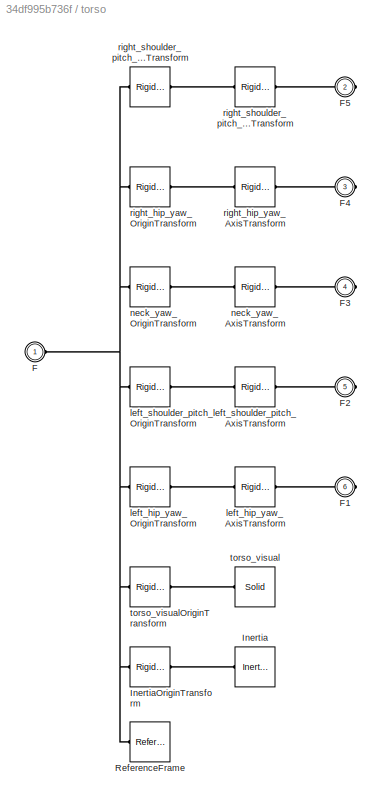
BLOCK [SubSystem] torso
  Ports = [0, 0, 0, 0, 0, 1, 5]
  RequestExecContextInheritance = off
BLOCK [PMIOPort] torso/F
  Side = Left
BLOCK [PMIOPort] torso/F1
  Port = 6
  Side = Right
BLOCK [PMIOPort] torso/F2
  Port = 5
  Side = Right
BLOCK [PMIOPort] torso/F3
  Port = 4
  Side = Right
BLOCK [PMIOPort] torso/F4
  Port = 3
  Side = Right
BLOCK [PMIOPort] torso/F5
  Port = 2
  Side = Right
BLOCK [Reference] torso/Inertia  REF=sm_lib/Body Elements/Inertia
  Ports = [0, 0, 0, 0, 0, 0, 1]
  SourceBlock = sm_lib/Body Elements/Inertia
  SourceProductBaseCode = MS
  SourceProductName = Simscape Multibody
  SourceType = Inertia
BLOCK [Reference] torso/InertiaOriginTransform  REF=sm_lib/Frames and
Transforms/Rigid
Transform
  Ports = [0, 0, 0, 0, 0, 1, 1]
  SourceBlock = sm_lib/Frames and\nTransforms/Rigid\nTransform
  SourceProductBaseCode = MS
  SourceProductName = Simscape Multibody
  SourceType = Rigid\nTransform
BLOCK [Reference] torso/ReferenceFrame  REF=sm_lib/Frames and
Transforms/Reference
Frame
  Ports = [0, 0, 0, 0, 0, 0, 1]
  SourceBlock = sm_lib/Frames and\nTransforms/Reference\nFrame
  SourceProductBaseCode = MS
  SourceProductName = Simscape Multibody
  SourceType = Reference\nFrame
BLOCK [Reference] torso/left_hip_yaw_AxisTransform  REF=sm_lib/Frames and
Transforms/Rigid
Transform
  Ports = [0, 0, 0, 0, 0, 1, 1]
  SourceBlock = sm_lib/Frames and\nTransforms/Rigid\nTransform
  SourceProductBaseCode = MS
  SourceProductName = Simscape Multibody
  SourceType = Rigid\nTransform
BLOCK [Reference] torso/left_hip_yaw_OriginTransform  REF=sm_lib/Frames and
Transforms/Rigid
Transform
  Ports = [0, 0, 0, 0, 0, 1, 1]
  SourceBlock = sm_lib/Frames and\nTransforms/Rigid\nTransform
  SourceProductBaseCode = MS
  SourceProductName = Simscape Multibody
  SourceType = Rigid\nTransform
BLOCK [Reference] torso/left_shoulder_pitch_AxisTransform  REF=sm_lib/Frames and
Transforms/Rigid
Transform
  Ports = [0, 0, 0, 0, 0, 1, 1]
  SourceBlock = sm_lib/Frames and\nTransforms/Rigid\nTransform
  SourceProductBaseCode = MS
  SourceProductName = Simscape Multibody
  SourceType = Rigid\nTransform
BLOCK [Reference] torso/left_shoulder_pitch_OriginTransform  REF=sm_lib/Frames and
Transforms/Rigid
Transform
  Ports = [0, 0, 0, 0, 0, 1, 1]
  SourceBlock = sm_lib/Frames and\nTransforms/Rigid\nTransform
  SourceProductBaseCode = MS
  SourceProductName = Simscape Multibody
  SourceType = Rigid\nTransform
BLOCK [Reference] torso/neck_yaw_AxisTransform  REF=sm_lib/Frames and
Transforms/Rigid
Transform
  Ports = [0, 0, 0, 0, 0, 1, 1]
  SourceBlock = sm_lib/Frames and\nTransforms/Rigid\nTransform
  SourceProductBaseCode = MS
  SourceProductName = Simscape Multibody
  SourceType = Rigid\nTransform
BLOCK [Reference] torso/neck_yaw_OriginTransform  REF=sm_lib/Frames and
Transforms/Rigid
Transform
  Ports = [0, 0, 0, 0, 0, 1, 1]
  SourceBlock = sm_lib/Frames and\nTransforms/Rigid\nTransform
  SourceProductBaseCode = MS
  SourceProductName = Simscape Multibody
  SourceType = Rigid\nTransform
BLOCK [Reference] torso/right_hip_yaw_AxisTransform  REF=sm_lib/Frames and
Transforms/Rigid
Transform
  Ports = [0, 0, 0, 0, 0, 1, 1]
  SourceBlock = sm_lib/Frames and\nTransforms/Rigid\nTransform
  SourceProductBaseCode = MS
  SourceProductName = Simscape Multibody
  SourceType = Rigid\nTransform
BLOCK [Reference] torso/right_hip_yaw_OriginTransform  REF=sm_lib/Frames and
Transforms/Rigid
Transform
  Ports = [0, 0, 0, 0, 0, 1, 1]
  SourceBlock = sm_lib/Frames and\nTransforms/Rigid\nTransform
  SourceProductBaseCode = MS
  SourceProductName = Simscape Multibody
  SourceType = Rigid\nTransform
BLOCK [Reference] torso/right_shoulder_pitch_AxisTransform  REF=sm_lib/Frames and
Transforms/Rigid
Transform
  Ports = [0, 0, 0, 0, 0, 1, 1]
  SourceBlock = sm_lib/Frames and\nTransforms/Rigid\nTransform
  SourceProductBaseCode = MS
  SourceProductName = Simscape Multibody
  SourceType = Rigid\nTransform
BLOCK [Reference] torso/right_shoulder_pitch_OriginTransform  REF=sm_lib/Frames and
Transforms/Rigid
Transform
  Ports = [0, 0, 0, 0, 0, 1, 1]
  SourceBlock = sm_lib/Frames and\nTransforms/Rigid\nTransform
  SourceProductBaseCode = MS
  SourceProductName = Simscape Multibody
  SourceType = Rigid\nTransform
BLOCK [Reference] torso/torso_visual  REF=sm_lib/Body Elements/Solid
  Ports = [0, 0, 0, 0, 0, 0, 1]
  SourceBlock = sm_lib/Body Elements/Solid
  SourceProductBaseCode = MS
  SourceProductName = Simscape Multibody
  SourceType = Solid
BLOCK [Reference] torso/torso_visualOriginTransform  REF=sm_lib/Frames and
Transforms/Rigid
Transform
  Ports = [0, 0, 0, 0, 0, 1, 1]
  SourceBlock = sm_lib/Frames and\nTransforms/Rigid\nTransform
  SourceProductBaseCode = MS
  SourceProductName = Simscape Multibody
  SourceType = Rigid\nTransform
ANNOTATION (root): Data Storage
ANNOTATION (root): Write to Servos
LINE Constant10:1 -> Data Store Write11:1
LINE Constant11:1 -> Data Store Write12:1
LINE Constant12:1 -> Data Store Write13:1
LINE Constant13:1 -> Data Store Write14:1
LINE Constant14:1 -> Data Store Write15:1
LINE Constant15:1 -> Data Store Write16:1
LINE Constant16:1 -> Data Store Write17:1
LINE Constant17:1 -> Data Store Write18:1
LINE Constant18:1 -> Data Store Write1:1
LINE Constant19:1 -> Data Store Write19:1
LINE Constant1:1 -> Data Store Write2:1
LINE Constant20:1 -> Data Store Write20:1
LINE Constant2:1 -> Data Store Write3:1
LINE Constant3:1 -> Data Store Write4:1
LINE Constant4:1 -> Data Store Write5:1
LINE Constant5:1 -> Data Store Write6:1
LINE Constant6:1 -> Data Store Write7:1
LINE Constant7:1 -> Data Store Write8:1
LINE Constant8:1 -> Data Store Write9:1
LINE Constant9:1 -> Data Store Write10:1
LINE Data Store Read10:1 -> Simulink-PS Converter10:1
LINE Data Store Read11:1 -> Simulink-PS Converter11:1
LINE Data Store Read12:1 -> Simulink-PS Converter12:1
LINE Data Store Read13:1 -> Simulink-PS Converter13:1
LINE Data Store Read14:1 -> Simulink-PS Converter14:1
LINE Data Store Read15:1 -> Simulink-PS Converter15:1
LINE Data Store Read16:1 -> Simulink-PS Converter16:1
LINE Data Store Read17:1 -> Simulink-PS Converter17:1
LINE Data Store Read18:1 -> Simulink-PS Converter18:1
LINE Data Store Read19:1 -> Simulink-PS Converter19:1
LINE Data Store Read20:1 -> Simulink-PS Converter20:1
LINE Data Store Read21:1 -> Simulink-PS Converter21:1
LINE Data Store Read3:1 -> Simulink-PS Converter3:1
LINE Data Store Read4:1 -> Simulink-PS Converter4:1
LINE Data Store Read5:1 -> Simulink-PS Converter5:1
LINE Data Store Read6:1 -> Simulink-PS Converter6:1
LINE Data Store Read7:1 -> Simulink-PS Converter7:1
LINE Data Store Read8:1 -> Simulink-PS Converter8:1
LINE Data Store Read9:1 -> Simulink-PS Converter9:1
LINE Data Store Read:1 -> Simulink-PS Converter:1
PNET net1: 6-DOF Joint:LConn1 -- MechanismConfiguration:RConn1 -- Solver Configuration:RConn1 -- World:RConn1 -- floor_offset:LConn1 -- left_foot:RConn1 -- right_foot:RConn1
PLINE 6-DOF Joint:RConn1 -- torso:LConn1
PLINE Floor:RConn1 -- floor_offset:RConn1
PLINE Simulink-PS Converter10:RConn1 -- left_ankle_roll:LConn2
PLINE Simulink-PS Converter11:RConn1 -- left_elbow_pitch:LConn2
PLINE Simulink-PS Converter12:RConn1 -- left_shoulder_roll:LConn2
PLINE Simulink-PS Converter13:RConn1 -- left_shoulder_pitch:LConn2
PLINE Simulink-PS Converter14:RConn1 -- right_hip_yaw:LConn2
PLINE Simulink-PS Converter15:RConn1 -- right_hip_roll:LConn2
PLINE Simulink-PS Converter16:RConn1 -- right_hip_pitch:LConn2
PLINE Simulink-PS Converter17:RConn1 -- right_knee_pitch:LConn2
PLINE Simulink-PS Converter18:RConn1 -- right_ankle_pitch:LConn2
PLINE Simulink-PS Converter19:RConn1 -- right_ankle_roll:LConn2
PLINE Simulink-PS Converter20:RConn1 -- head_pitch:LConn2
PLINE Simulink-PS Converter21:RConn1 -- neck_yaw:LConn2
PLINE Simulink-PS Converter3:RConn1 -- right_shoulder_roll:LConn2
PLINE Simulink-PS Converter4:RConn1 -- right_elbow_pitch:LConn2
PLINE Simulink-PS Converter5:RConn1 -- left_hip_yaw:LConn2
PLINE Simulink-PS Converter6:RConn1 -- left_hip_roll:LConn2
PLINE Simulink-PS Converter7:RConn1 -- left_hip_pitch:LConn2
PLINE Simulink-PS Converter8:RConn1 -- left_knee_pitch:LConn2
PLINE Simulink-PS Converter9:RConn1 -- left_ankle_pitch:LConn2
PLINE Simulink-PS Converter:RConn1 -- right_shoulder_pitch:LConn2
PLINE head/F:RConn1 -- head/head_pitch_AxisInvTransform:RConn1
PLINE head/Inertia:RConn1 -- head/InertiaOriginTransform:RConn1
PNET net2: head/InertiaOriginTransform:LConn1 -- head/ReferenceFrame:RConn1 -- head/head_pitch_AxisInvTransform:LConn1 -- head/head_visualOriginTransform:LConn1
PLINE head/head_visual:RConn1 -- head/head_visualOriginTransform:RConn1
PLINE head:LConn1 -- head_pitch:RConn1
PLINE head_pitch:LConn1 -- neck:RConn1
PLINE left_ankle/F1:RConn1 -- left_ankle/left_ankle_roll_AxisTransform:RConn1
PLINE left_ankle/F:RConn1 -- left_ankle/left_ankle_pitch_AxisInvTransform:RConn1
PLINE left_ankle/Inertia:RConn1 -- left_ankle/InertiaOriginTransform:RConn1
PNET net3: left_ankle/InertiaOriginTransform:LConn1 -- left_ankle/ReferenceFrame:RConn1 -- left_ankle/left_ankle_pitch_AxisInvTransform:LConn1 -- left_ankle/left_ankle_roll_OriginTransform:LConn1 -- left_ankle/left_ankle_visualOriginTransform:LConn1
PLINE left_ankle/left_ankle_roll_AxisTransform:LConn1 -- left_ankle/left_ankle_roll_OriginTransform:RConn1
PLINE left_ankle/left_ankle_visual:RConn1 -- left_ankle/left_ankle_visualOriginTransform:RConn1
PLINE left_ankle:LConn1 -- left_ankle_pitch:RConn1
PLINE left_ankle:RConn1 -- left_ankle_roll:LConn1
PLINE left_ankle_pitch:LConn1 -- left_lower_leg:RConn1
PLINE left_ankle_roll:RConn1 -- left_foot:LConn1
PLINE left_elbow_pitch:LConn1 -- left_upper_arm:RConn1
PLINE left_elbow_pitch:RConn1 -- left_lower_arm:LConn1
PLINE left_foot/ankle:RConn1 -- left_foot/left_foot:LConn1
PNET net4: left_foot/floor:RConn1 -- left_foot/foot_bl_contact:LConn1 -- left_foot/foot_br_contact:LConn1 -- left_foot/foot_fl_contact:LConn1 -- left_foot/foot_fr_contact:LConn1
PNET net5: left_foot/foot_bl:LConn1 -- left_foot/foot_br:LConn1 -- left_foot/foot_fl:LConn1 -- left_foot/foot_fr:LConn1 -- left_foot/left_foot:RConn1
PLINE left_foot/foot_bl:RConn1 -- left_foot/foot_bl_contact:RConn1
PLINE left_foot/foot_bl_contact/6-DOF Joint:LConn1 -- left_foot/foot_bl_contact/Floor:RConn1
PLINE left_foot/foot_bl_contact/6-DOF Joint:LConn2 -- left_foot/foot_bl_contact/calculate forces:RConn1
PLINE left_foot/foot_bl_contact/6-DOF Joint:LConn3 -- left_foot/foot_bl_contact/calculate forces:RConn2
PLINE left_foot/foot_bl_contact/6-DOF Joint:LConn4 -- left_foot/foot_bl_contact/calculate forces:RConn3
PLINE left_foot/foot_bl_contact/6-DOF Joint:RConn1 -- left_foot/foot_bl_contact/Contact:RConn1
PLINE left_foot/foot_bl_contact/6-DOF Joint:RConn2 -- left_foot/foot_bl_contact/x Velocity Gain:LConn1
PLINE left_foot/foot_bl_contact/6-DOF Joint:RConn3 -- left_foot/foot_bl_contact/y Velocity Gain:LConn1
PNET net6: left_foot/foot_bl_contact/6-DOF Joint:RConn4 -- left_foot/foot_bl_contact/calculate forces:LConn3 -- left_foot/foot_bl_contact/z Position gain:LConn1
PLINE left_foot/foot_bl_contact/6-DOF Joint:RConn5 -- left_foot/foot_bl_contact/z Velocity Gain:LConn1
PLINE left_foot/foot_bl_contact/PS Abs:LConn1 -- left_foot/foot_bl_contact/friction gain:RConn1
PLINE left_foot/foot_bl_contact/PS Abs:RConn1 -- left_foot/foot_bl_contact/calculate forces:LConn5
PNET net7: left_foot/foot_bl_contact/calculate forces/bound:RConn1 -- left_foot/foot_bl_contact/calculate forces/unary minus:LConn1 -- left_foot/foot_bl_contact/calculate forces/x contact force:LConn4 -- left_foot/foot_bl_contact/calculate forces/y contact force:LConn4
PNET net8: left_foot/foot_bl_contact/calculate forces/frictionless:RConn1 -- left_foot/foot_bl_contact/calculate forces/x contact force:LConn1 -- left_foot/foot_bl_contact/calculate forces/y contact force:LConn1 -- left_foot/foot_bl_contact/calculate forces/z contact force:LConn1
PNET net9: left_foot/foot_bl_contact/calculate forces/unary minus:RConn1 -- left_foot/foot_bl_contact/calculate forces/x contact force:LConn5 -- left_foot/foot_bl_contact/calculate forces/y contact force:LConn5
PLINE left_foot/foot_bl_contact/calculate forces/x contact force/PS Max:LConn1 -- left_foot/foot_bl_contact/calculate forces/x contact force/PS Min:RConn1
PLINE left_foot/foot_bl_contact/calculate forces/x contact force/PS Max:LConn2 -- left_foot/foot_bl_contact/calculate forces/x contact force/lower_bound:RConn1
PLINE left_foot/foot_bl_contact/calculate forces/x contact force/PS Max:RConn1 -- left_foot/foot_bl_contact/calculate forces/x contact force/PS Switch1:LConn3
PLINE left_foot/foot_bl_contact/calculate forces/x contact force/PS Min:LConn1 -- left_foot/foot_bl_contact/calculate forces/x contact force/velocity:RConn1
PLINE left_foot/foot_bl_contact/calculate forces/x contact force/PS Min:LConn2 -- left_foot/foot_bl_contact/calculate forces/x contact force/upper_bound:RConn1
PLINE left_foot/foot_bl_contact/calculate forces/x contact force/PS Switch1:LConn1 -- left_foot/foot_bl_contact/calculate forces/x contact force/frictionless:RConn1
PLINE left_foot/foot_bl_contact/calculate forces/x contact force/PS Switch1:LConn2 -- left_foot/foot_bl_contact/calculate forces/x contact force/z position:RConn1
PLINE left_foot/foot_bl_contact/calculate forces/x contact force/PS Switch1:RConn1 -- left_foot/foot_bl_contact/calculate forces/x contact force/force:RConn1
PLINE left_foot/foot_bl_contact/calculate forces/x contact force:LConn2 -- left_foot/foot_bl_contact/calculate forces/x velocity:RConn1
PNET net10: left_foot/foot_bl_contact/calculate forces/x contact force:LConn3 -- left_foot/foot_bl_contact/calculate forces/y contact force:LConn3 -- left_foot/foot_bl_contact/calculate forces/z contact force:LConn2 -- left_foot/foot_bl_contact/calculate forces/z position:RConn1
PLINE left_foot/foot_bl_contact/calculate forces/x contact force:RConn1 -- left_foot/foot_bl_contact/calculate forces/x force:RConn1
PLINE left_foot/foot_bl_contact/calculate forces/y contact force/PS Max:LConn1 -- left_foot/foot_bl_contact/calculate forces/y contact force/PS Min:RConn1
PLINE left_foot/foot_bl_contact/calculate forces/y contact force/PS Max:LConn2 -- left_foot/foot_bl_contact/calculate forces/y contact force/lower_bound:RConn1
PLINE left_foot/foot_bl_contact/calculate forces/y contact force/PS Max:RConn1 -- left_foot/foot_bl_contact/calculate forces/y contact force/PS Switch1:LConn3
PLINE left_foot/foot_bl_contact/calculate forces/y contact force/PS Min:LConn1 -- left_foot/foot_bl_contact/calculate forces/y contact force/velocity:RConn1
PLINE left_foot/foot_bl_contact/calculate forces/y contact force/PS Min:LConn2 -- left_foot/foot_bl_contact/calculate forces/y contact force/upper_bound:RConn1
PLINE left_foot/foot_bl_contact/calculate forces/y contact force/PS Switch1:LConn1 -- left_foot/foot_bl_contact/calculate forces/y contact force/frictionless:RConn1
PLINE left_foot/foot_bl_contact/calculate forces/y contact force/PS Switch1:LConn2 -- left_foot/foot_bl_contact/calculate forces/y contact force/z position:RConn1
PLINE left_foot/foot_bl_contact/calculate forces/y contact force/PS Switch1:RConn1 -- left_foot/foot_bl_contact/calculate forces/y contact force/force:RConn1
PLINE left_foot/foot_bl_contact/calculate forces/y contact force:LConn2 -- left_foot/foot_bl_contact/calculate forces/y velocity:RConn1
PLINE left_foot/foot_bl_contact/calculate forces/y contact force:RConn1 -- left_foot/foot_bl_contact/calculate forces/y force:RConn1
PLINE left_foot/foot_bl_contact/calculate forces/z contact force:LConn3 -- left_foot/foot_bl_contact/calculate forces/z update:RConn1
PLINE left_foot/foot_bl_contact/calculate forces/z contact force:RConn1 -- left_foot/foot_bl_contact/calculate forces/z force:RConn1
PLINE left_foot/foot_bl_contact/calculate forces:LConn1 -- left_foot/foot_bl_contact/x Velocity Gain:RConn1
PLINE left_foot/foot_bl_contact/calculate forces:LConn2 -- left_foot/foot_bl_contact/y Velocity Gain:RConn1
PNET net11: left_foot/foot_bl_contact/calculate forces:LConn4 -- left_foot/foot_bl_contact/friction gain:LConn1 -- left_foot/foot_bl_contact/z add:RConn1
PLINE left_foot/foot_bl_contact/z Position gain:RConn1 -- left_foot/foot_bl_contact/z add:LConn1
PLINE left_foot/foot_bl_contact/z Velocity Gain:RConn1 -- left_foot/foot_bl_contact/z add:LConn2
PLINE left_foot/foot_br:RConn1 -- left_foot/foot_br_contact:RConn1
PLINE left_foot/foot_br_contact/6-DOF Joint:LConn1 -- left_foot/foot_br_contact/Floor:RConn1
PLINE left_foot/foot_br_contact/6-DOF Joint:LConn2 -- left_foot/foot_br_contact/calculate forces:RConn1
PLINE left_foot/foot_br_contact/6-DOF Joint:LConn3 -- left_foot/foot_br_contact/calculate forces:RConn2
PLINE left_foot/foot_br_contact/6-DOF Joint:LConn4 -- left_foot/foot_br_contact/calculate forces:RConn3
PLINE left_foot/foot_br_contact/6-DOF Joint:RConn1 -- left_foot/foot_br_contact/Contact:RConn1
PLINE left_foot/foot_br_contact/6-DOF Joint:RConn2 -- left_foot/foot_br_contact/x Velocity Gain:LConn1
PLINE left_foot/foot_br_contact/6-DOF Joint:RConn3 -- left_foot/foot_br_contact/y Velocity Gain:LConn1
PNET net12: left_foot/foot_br_contact/6-DOF Joint:RConn4 -- left_foot/foot_br_contact/calculate forces:LConn3 -- left_foot/foot_br_contact/z Position gain:LConn1
PLINE left_foot/foot_br_contact/6-DOF Joint:RConn5 -- left_foot/foot_br_contact/z Velocity Gain:LConn1
PLINE left_foot/foot_br_contact/PS Abs:LConn1 -- left_foot/foot_br_contact/friction gain:RConn1
PLINE left_foot/foot_br_contact/PS Abs:RConn1 -- left_foot/foot_br_contact/calculate forces:LConn5
PNET net13: left_foot/foot_br_contact/calculate forces/bound:RConn1 -- left_foot/foot_br_contact/calculate forces/unary minus:LConn1 -- left_foot/foot_br_contact/calculate forces/x contact force:LConn4 -- left_foot/foot_br_contact/calculate forces/y contact force:LConn4
PNET net14: left_foot/foot_br_contact/calculate forces/frictionless:RConn1 -- left_foot/foot_br_contact/calculate forces/x contact force:LConn1 -- left_foot/foot_br_contact/calculate forces/y contact force:LConn1 -- left_foot/foot_br_contact/calculate forces/z contact force:LConn1
PNET net15: left_foot/foot_br_contact/calculate forces/unary minus:RConn1 -- left_foot/foot_br_contact/calculate forces/x contact force:LConn5 -- left_foot/foot_br_contact/calculate forces/y contact force:LConn5
PLINE left_foot/foot_br_contact/calculate forces/x contact force/PS Max:LConn1 -- left_foot/foot_br_contact/calculate forces/x contact force/PS Min:RConn1
PLINE left_foot/foot_br_contact/calculate forces/x contact force/PS Max:LConn2 -- left_foot/foot_br_contact/calculate forces/x contact force/lower_bound:RConn1
PLINE left_foot/foot_br_contact/calculate forces/x contact force/PS Max:RConn1 -- left_foot/foot_br_contact/calculate forces/x contact force/PS Switch1:LConn3
PLINE left_foot/foot_br_contact/calculate forces/x contact force/PS Min:LConn1 -- left_foot/foot_br_contact/calculate forces/x contact force/velocity:RConn1
PLINE left_foot/foot_br_contact/calculate forces/x contact force/PS Min:LConn2 -- left_foot/foot_br_contact/calculate forces/x contact force/upper_bound:RConn1
PLINE left_foot/foot_br_contact/calculate forces/x contact force/PS Switch1:LConn1 -- left_foot/foot_br_contact/calculate forces/x contact force/frictionless:RConn1
PLINE left_foot/foot_br_contact/calculate forces/x contact force/PS Switch1:LConn2 -- left_foot/foot_br_contact/calculate forces/x contact force/z position:RConn1
PLINE left_foot/foot_br_contact/calculate forces/x contact force/PS Switch1:RConn1 -- left_foot/foot_br_contact/calculate forces/x contact force/force:RConn1
PLINE left_foot/foot_br_contact/calculate forces/x contact force:LConn2 -- left_foot/foot_br_contact/calculate forces/x velocity:RConn1
PNET net16: left_foot/foot_br_contact/calculate forces/x contact force:LConn3 -- left_foot/foot_br_contact/calculate forces/y contact force:LConn3 -- left_foot/foot_br_contact/calculate forces/z contact force:LConn2 -- left_foot/foot_br_contact/calculate forces/z position:RConn1
PLINE left_foot/foot_br_contact/calculate forces/x contact force:RConn1 -- left_foot/foot_br_contact/calculate forces/x force:RConn1
PLINE left_foot/foot_br_contact/calculate forces/y contact force/PS Max:LConn1 -- left_foot/foot_br_contact/calculate forces/y contact force/PS Min:RConn1
PLINE left_foot/foot_br_contact/calculate forces/y contact force/PS Max:LConn2 -- left_foot/foot_br_contact/calculate forces/y contact force/lower_bound:RConn1
PLINE left_foot/foot_br_contact/calculate forces/y contact force/PS Max:RConn1 -- left_foot/foot_br_contact/calculate forces/y contact force/PS Switch1:LConn3
PLINE left_foot/foot_br_contact/calculate forces/y contact force/PS Min:LConn1 -- left_foot/foot_br_contact/calculate forces/y contact force/velocity:RConn1
PLINE left_foot/foot_br_contact/calculate forces/y contact force/PS Min:LConn2 -- left_foot/foot_br_contact/calculate forces/y contact force/upper_bound:RConn1
PLINE left_foot/foot_br_contact/calculate forces/y contact force/PS Switch1:LConn1 -- left_foot/foot_br_contact/calculate forces/y contact force/frictionless:RConn1
PLINE left_foot/foot_br_contact/calculate forces/y contact force/PS Switch1:LConn2 -- left_foot/foot_br_contact/calculate forces/y contact force/z position:RConn1
PLINE left_foot/foot_br_contact/calculate forces/y contact force/PS Switch1:RConn1 -- left_foot/foot_br_contact/calculate forces/y contact force/force:RConn1
PLINE left_foot/foot_br_contact/calculate forces/y contact force:LConn2 -- left_foot/foot_br_contact/calculate forces/y velocity:RConn1
PLINE left_foot/foot_br_contact/calculate forces/y contact force:RConn1 -- left_foot/foot_br_contact/calculate forces/y force:RConn1
PLINE left_foot/foot_br_contact/calculate forces/z contact force:LConn3 -- left_foot/foot_br_contact/calculate forces/z update:RConn1
PLINE left_foot/foot_br_contact/calculate forces/z contact force:RConn1 -- left_foot/foot_br_contact/calculate forces/z force:RConn1
PLINE left_foot/foot_br_contact/calculate forces:LConn1 -- left_foot/foot_br_contact/x Velocity Gain:RConn1
PLINE left_foot/foot_br_contact/calculate forces:LConn2 -- left_foot/foot_br_contact/y Velocity Gain:RConn1
PNET net17: left_foot/foot_br_contact/calculate forces:LConn4 -- left_foot/foot_br_contact/friction gain:LConn1 -- left_foot/foot_br_contact/z add:RConn1
PLINE left_foot/foot_br_contact/z Position gain:RConn1 -- left_foot/foot_br_contact/z add:LConn1
PLINE left_foot/foot_br_contact/z Velocity Gain:RConn1 -- left_foot/foot_br_contact/z add:LConn2
PLINE left_foot/foot_fl:RConn1 -- left_foot/foot_fl_contact:RConn1
PLINE left_foot/foot_fl_contact/6-DOF Joint:LConn1 -- left_foot/foot_fl_contact/Floor:RConn1
PLINE left_foot/foot_fl_contact/6-DOF Joint:LConn2 -- left_foot/foot_fl_contact/calculate forces:RConn1
PLINE left_foot/foot_fl_contact/6-DOF Joint:LConn3 -- left_foot/foot_fl_contact/calculate forces:RConn2
PLINE left_foot/foot_fl_contact/6-DOF Joint:LConn4 -- left_foot/foot_fl_contact/calculate forces:RConn3
PLINE left_foot/foot_fl_contact/6-DOF Joint:RConn1 -- left_foot/foot_fl_contact/Contact:RConn1
PLINE left_foot/foot_fl_contact/6-DOF Joint:RConn2 -- left_foot/foot_fl_contact/x Velocity Gain:LConn1
PLINE left_foot/foot_fl_contact/6-DOF Joint:RConn3 -- left_foot/foot_fl_contact/y Velocity Gain:LConn1
PNET net18: left_foot/foot_fl_contact/6-DOF Joint:RConn4 -- left_foot/foot_fl_contact/calculate forces:LConn3 -- left_foot/foot_fl_contact/z Position gain:LConn1
PLINE left_foot/foot_fl_contact/6-DOF Joint:RConn5 -- left_foot/foot_fl_contact/z Velocity Gain:LConn1
PLINE left_foot/foot_fl_contact/PS Abs:LConn1 -- left_foot/foot_fl_contact/friction gain:RConn1
PLINE left_foot/foot_fl_contact/PS Abs:RConn1 -- left_foot/foot_fl_contact/calculate forces:LConn5
PNET net19: left_foot/foot_fl_contact/calculate forces/bound:RConn1 -- left_foot/foot_fl_contact/calculate forces/unary minus:LConn1 -- left_foot/foot_fl_contact/calculate forces/x contact force:LConn4 -- left_foot/foot_fl_contact/calculate forces/y contact force:LConn4
PNET net20: left_foot/foot_fl_contact/calculate forces/frictionless:RConn1 -- left_foot/foot_fl_contact/calculate forces/x contact force:LConn1 -- left_foot/foot_fl_contact/calculate forces/y contact force:LConn1 -- left_foot/foot_fl_contact/calculate forces/z contact force:LConn1
PNET net21: left_foot/foot_fl_contact/calculate forces/unary minus:RConn1 -- left_foot/foot_fl_contact/calculate forces/x contact force:LConn5 -- left_foot/foot_fl_contact/calculate forces/y contact force:LConn5
PLINE left_foot/foot_fl_contact/calculate forces/x contact force/PS Max:LConn1 -- left_foot/foot_fl_contact/calculate forces/x contact force/PS Min:RConn1
PLINE left_foot/foot_fl_contact/calculate forces/x contact force/PS Max:LConn2 -- left_foot/foot_fl_contact/calculate forces/x contact force/lower_bound:RConn1
PLINE left_foot/foot_fl_contact/calculate forces/x contact force/PS Max:RConn1 -- left_foot/foot_fl_contact/calculate forces/x contact force/PS Switch1:LConn3
PLINE left_foot/foot_fl_contact/calculate forces/x contact force/PS Min:LConn1 -- left_foot/foot_fl_contact/calculate forces/x contact force/velocity:RConn1
PLINE left_foot/foot_fl_contact/calculate forces/x contact force/PS Min:LConn2 -- left_foot/foot_fl_contact/calculate forces/x contact force/upper_bound:RConn1
PLINE left_foot/foot_fl_contact/calculate forces/x contact force/PS Switch1:LConn1 -- left_foot/foot_fl_contact/calculate forces/x contact force/frictionless:RConn1
PLINE left_foot/foot_fl_contact/calculate forces/x contact force/PS Switch1:LConn2 -- left_foot/foot_fl_contact/calculate forces/x contact force/z position:RConn1
PLINE left_foot/foot_fl_contact/calculate forces/x contact force/PS Switch1:RConn1 -- left_foot/foot_fl_contact/calculate forces/x contact force/force:RConn1
PLINE left_foot/foot_fl_contact/calculate forces/x contact force:LConn2 -- left_foot/foot_fl_contact/calculate forces/x velocity:RConn1
PNET net22: left_foot/foot_fl_contact/calculate forces/x contact force:LConn3 -- left_foot/foot_fl_contact/calculate forces/y contact force:LConn3 -- left_foot/foot_fl_contact/calculate forces/z contact force:LConn2 -- left_foot/foot_fl_contact/calculate forces/z position:RConn1
PLINE left_foot/foot_fl_contact/calculate forces/x contact force:RConn1 -- left_foot/foot_fl_contact/calculate forces/x force:RConn1
PLINE left_foot/foot_fl_contact/calculate forces/y contact force/PS Max:LConn1 -- left_foot/foot_fl_contact/calculate forces/y contact force/PS Min:RConn1
PLINE left_foot/foot_fl_contact/calculate forces/y contact force/PS Max:LConn2 -- left_foot/foot_fl_contact/calculate forces/y contact force/lower_bound:RConn1
PLINE left_foot/foot_fl_contact/calculate forces/y contact force/PS Max:RConn1 -- left_foot/foot_fl_contact/calculate forces/y contact force/PS Switch1:LConn3
PLINE left_foot/foot_fl_contact/calculate forces/y contact force/PS Min:LConn1 -- left_foot/foot_fl_contact/calculate forces/y contact force/velocity:RConn1
PLINE left_foot/foot_fl_contact/calculate forces/y contact force/PS Min:LConn2 -- left_foot/foot_fl_contact/calculate forces/y contact force/upper_bound:RConn1
PLINE left_foot/foot_fl_contact/calculate forces/y contact force/PS Switch1:LConn1 -- left_foot/foot_fl_contact/calculate forces/y contact force/frictionless:RConn1
PLINE left_foot/foot_fl_contact/calculate forces/y contact force/PS Switch1:LConn2 -- left_foot/foot_fl_contact/calculate forces/y contact force/z position:RConn1
PLINE left_foot/foot_fl_contact/calculate forces/y contact force/PS Switch1:RConn1 -- left_foot/foot_fl_contact/calculate forces/y contact force/force:RConn1
PLINE left_foot/foot_fl_contact/calculate forces/y contact force:LConn2 -- left_foot/foot_fl_contact/calculate forces/y velocity:RConn1
PLINE left_foot/foot_fl_contact/calculate forces/y contact force:RConn1 -- left_foot/foot_fl_contact/calculate forces/y force:RConn1
PLINE left_foot/foot_fl_contact/calculate forces/z contact force:LConn3 -- left_foot/foot_fl_contact/calculate forces/z update:RConn1
PLINE left_foot/foot_fl_contact/calculate forces/z contact force:RConn1 -- left_foot/foot_fl_contact/calculate forces/z force:RConn1
PLINE left_foot/foot_fl_contact/calculate forces:LConn1 -- left_foot/foot_fl_contact/x Velocity Gain:RConn1
PLINE left_foot/foot_fl_contact/calculate forces:LConn2 -- left_foot/foot_fl_contact/y Velocity Gain:RConn1
PNET net23: left_foot/foot_fl_contact/calculate forces:LConn4 -- left_foot/foot_fl_contact/friction gain:LConn1 -- left_foot/foot_fl_contact/z add:RConn1
PLINE left_foot/foot_fl_contact/z Position gain:RConn1 -- left_foot/foot_fl_contact/z add:LConn1
PLINE left_foot/foot_fl_contact/z Velocity Gain:RConn1 -- left_foot/foot_fl_contact/z add:LConn2
PLINE left_foot/foot_fr:RConn1 -- left_foot/foot_fr_contact:RConn1
PLINE left_foot/foot_fr_contact/6-DOF Joint:LConn1 -- left_foot/foot_fr_contact/Floor:RConn1
PLINE left_foot/foot_fr_contact/6-DOF Joint:LConn2 -- left_foot/foot_fr_contact/calculate forces:RConn1
PLINE left_foot/foot_fr_contact/6-DOF Joint:LConn3 -- left_foot/foot_fr_contact/calculate forces:RConn2
PLINE left_foot/foot_fr_contact/6-DOF Joint:LConn4 -- left_foot/foot_fr_contact/calculate forces:RConn3
PLINE left_foot/foot_fr_contact/6-DOF Joint:RConn1 -- left_foot/foot_fr_contact/Contact:RConn1
PLINE left_foot/foot_fr_contact/6-DOF Joint:RConn2 -- left_foot/foot_fr_contact/x Velocity Gain:LConn1
PLINE left_foot/foot_fr_contact/6-DOF Joint:RConn3 -- left_foot/foot_fr_contact/y Velocity Gain:LConn1
PNET net24: left_foot/foot_fr_contact/6-DOF Joint:RConn4 -- left_foot/foot_fr_contact/calculate forces:LConn3 -- left_foot/foot_fr_contact/z Position gain:LConn1
PLINE left_foot/foot_fr_contact/6-DOF Joint:RConn5 -- left_foot/foot_fr_contact/z Velocity Gain:LConn1
PLINE left_foot/foot_fr_contact/PS Abs:LConn1 -- left_foot/foot_fr_contact/friction gain:RConn1
PLINE left_foot/foot_fr_contact/PS Abs:RConn1 -- left_foot/foot_fr_contact/calculate forces:LConn5
PNET net25: left_foot/foot_fr_contact/calculate forces/bound:RConn1 -- left_foot/foot_fr_contact/calculate forces/unary minus:LConn1 -- left_foot/foot_fr_contact/calculate forces/x contact force:LConn4 -- left_foot/foot_fr_contact/calculate forces/y contact force:LConn4
PNET net26: left_foot/foot_fr_contact/calculate forces/frictionless:RConn1 -- left_foot/foot_fr_contact/calculate forces/x contact force:LConn1 -- left_foot/foot_fr_contact/calculate forces/y contact force:LConn1 -- left_foot/foot_fr_contact/calculate forces/z contact force:LConn1
PNET net27: left_foot/foot_fr_contact/calculate forces/unary minus:RConn1 -- left_foot/foot_fr_contact/calculate forces/x contact force:LConn5 -- left_foot/foot_fr_contact/calculate forces/y contact force:LConn5
PLINE left_foot/foot_fr_contact/calculate forces/x contact force/PS Max:LConn1 -- left_foot/foot_fr_contact/calculate forces/x contact force/PS Min:RConn1
PLINE left_foot/foot_fr_contact/calculate forces/x contact force/PS Max:LConn2 -- left_foot/foot_fr_contact/calculate forces/x contact force/lower_bound:RConn1
PLINE left_foot/foot_fr_contact/calculate forces/x contact force/PS Max:RConn1 -- left_foot/foot_fr_contact/calculate forces/x contact force/PS Switch1:LConn3
PLINE left_foot/foot_fr_contact/calculate forces/x contact force/PS Min:LConn1 -- left_foot/foot_fr_contact/calculate forces/x contact force/velocity:RConn1
PLINE left_foot/foot_fr_contact/calculate forces/x contact force/PS Min:LConn2 -- left_foot/foot_fr_contact/calculate forces/x contact force/upper_bound:RConn1
PLINE left_foot/foot_fr_contact/calculate forces/x contact force/PS Switch1:LConn1 -- left_foot/foot_fr_contact/calculate forces/x contact force/frictionless:RConn1
PLINE left_foot/foot_fr_contact/calculate forces/x contact force/PS Switch1:LConn2 -- left_foot/foot_fr_contact/calculate forces/x contact force/z position:RConn1
PLINE left_foot/foot_fr_contact/calculate forces/x contact force/PS Switch1:RConn1 -- left_foot/foot_fr_contact/calculate forces/x contact force/force:RConn1
PLINE left_foot/foot_fr_contact/calculate forces/x contact force:LConn2 -- left_foot/foot_fr_contact/calculate forces/x velocity:RConn1
PNET net28: left_foot/foot_fr_contact/calculate forces/x contact force:LConn3 -- left_foot/foot_fr_contact/calculate forces/y contact force:LConn3 -- left_foot/foot_fr_contact/calculate forces/z contact force:LConn2 -- left_foot/foot_fr_contact/calculate forces/z position:RConn1
PLINE left_foot/foot_fr_contact/calculate forces/x contact force:RConn1 -- left_foot/foot_fr_contact/calculate forces/x force:RConn1
PLINE left_foot/foot_fr_contact/calculate forces/y contact force/PS Max:LConn1 -- left_foot/foot_fr_contact/calculate forces/y contact force/PS Min:RConn1
PLINE left_foot/foot_fr_contact/calculate forces/y contact force/PS Max:LConn2 -- left_foot/foot_fr_contact/calculate forces/y contact force/lower_bound:RConn1
PLINE left_foot/foot_fr_contact/calculate forces/y contact force/PS Max:RConn1 -- left_foot/foot_fr_contact/calculate forces/y contact force/PS Switch1:LConn3
PLINE left_foot/foot_fr_contact/calculate forces/y contact force/PS Min:LConn1 -- left_foot/foot_fr_contact/calculate forces/y contact force/velocity:RConn1
PLINE left_foot/foot_fr_contact/calculate forces/y contact force/PS Min:LConn2 -- left_foot/foot_fr_contact/calculate forces/y contact force/upper_bound:RConn1
PLINE left_foot/foot_fr_contact/calculate forces/y contact force/PS Switch1:LConn1 -- left_foot/foot_fr_contact/calculate forces/y contact force/frictionless:RConn1
PLINE left_foot/foot_fr_contact/calculate forces/y contact force/PS Switch1:LConn2 -- left_foot/foot_fr_contact/calculate forces/y contact force/z position:RConn1
PLINE left_foot/foot_fr_contact/calculate forces/y contact force/PS Switch1:RConn1 -- left_foot/foot_fr_contact/calculate forces/y contact force/force:RConn1
PLINE left_foot/foot_fr_contact/calculate forces/y contact force:LConn2 -- left_foot/foot_fr_contact/calculate forces/y velocity:RConn1
PLINE left_foot/foot_fr_contact/calculate forces/y contact force:RConn1 -- left_foot/foot_fr_contact/calculate forces/y force:RConn1
PLINE left_foot/foot_fr_contact/calculate forces/z contact force:LConn3 -- left_foot/foot_fr_contact/calculate forces/z update:RConn1
PLINE left_foot/foot_fr_contact/calculate forces/z contact force:RConn1 -- left_foot/foot_fr_contact/calculate forces/z force:RConn1
PLINE left_foot/foot_fr_contact/calculate forces:LConn1 -- left_foot/foot_fr_contact/x Velocity Gain:RConn1
PLINE left_foot/foot_fr_contact/calculate forces:LConn2 -- left_foot/foot_fr_contact/y Velocity Gain:RConn1
PNET net29: left_foot/foot_fr_contact/calculate forces:LConn4 -- left_foot/foot_fr_contact/friction gain:LConn1 -- left_foot/foot_fr_contact/z add:RConn1
PLINE left_foot/foot_fr_contact/z Position gain:RConn1 -- left_foot/foot_fr_contact/z add:LConn1
PLINE left_foot/foot_fr_contact/z Velocity Gain:RConn1 -- left_foot/foot_fr_contact/z add:LConn2
PNET net30: left_foot/left_foot/B:RConn1 -- left_foot/left_foot/InertiaOriginTransform:LConn1 -- left_foot/left_foot/ReferenceFrame:RConn1 -- left_foot/left_foot/left_ankle_roll_AxisInvTransform:LConn1 -- left_foot/left_foot/left_foot_visualOriginTransform:LConn1
PLINE left_foot/left_foot/F:RConn1 -- left_foot/left_foot/left_ankle_roll_AxisInvTransform:RConn1
PLINE left_foot/left_foot/Inertia:RConn1 -- left_foot/left_foot/InertiaOriginTransform:RConn1
PLINE left_foot/left_foot/left_foot_visual:RConn1 -- left_foot/left_foot/left_foot_visualOriginTransform:RConn1
PLINE left_hip_pitch:LConn1 -- left_hip_roll1:RConn1
PLINE left_hip_pitch:RConn1 -- left_upper_leg:LConn1
PLINE left_hip_roll1/F1:RConn1 -- left_hip_roll1/left_hip_pitch_AxisTransform:RConn1
PLINE left_hip_roll1/F:RConn1 -- left_hip_roll1/left_hip_roll_AxisInvTransform:RConn1
PLINE left_hip_roll1/Inertia:RConn1 -- left_hip_roll1/InertiaOriginTransform:RConn1
PNET net31: left_hip_roll1/InertiaOriginTransform:LConn1 -- left_hip_roll1/ReferenceFrame:RConn1 -- left_hip_roll1/left_hip_pitch_OriginTransform:LConn1 -- left_hip_roll1/left_hip_roll_AxisInvTransform:LConn1 -- left_hip_roll1/left_hip_roll_visualOriginTransform:LConn1
PLINE left_hip_roll1/left_hip_pitch_AxisTransform:LConn1 -- left_hip_roll1/left_hip_pitch_OriginTransform:RConn1
PLINE left_hip_roll1/left_hip_roll_visual:RConn1 -- left_hip_roll1/left_hip_roll_visualOriginTransform:RConn1
PLINE left_hip_roll1:LConn1 -- left_hip_roll:RConn1
PLINE left_hip_roll:LConn1 -- left_hip_yaw1:RConn1
PLINE left_hip_yaw1/F1:RConn1 -- left_hip_yaw1/left_hip_roll_AxisTransform:RConn1
PLINE left_hip_yaw1/F:RConn1 -- left_hip_yaw1/left_hip_yaw_AxisInvTransform:RConn1
PLINE left_hip_yaw1/Inertia:RConn1 -- left_hip_yaw1/InertiaOriginTransform:RConn1
PNET net32: left_hip_yaw1/InertiaOriginTransform:LConn1 -- left_hip_yaw1/ReferenceFrame:RConn1 -- left_hip_yaw1/left_hip_roll_OriginTransform:LConn1 -- left_hip_yaw1/left_hip_yaw_AxisInvTransform:LConn1 -- left_hip_yaw1/left_hip_yaw_visualOriginTransform:LConn1
PLINE left_hip_yaw1/left_hip_roll_AxisTransform:LConn1 -- left_hip_yaw1/left_hip_roll_OriginTransform:RConn1
PLINE left_hip_yaw1/left_hip_yaw_visual:RConn1 -- left_hip_yaw1/left_hip_yaw_visualOriginTransform:RConn1
PLINE left_hip_yaw1:LConn1 -- left_hip_yaw:RConn1
PLINE left_hip_yaw:LConn1 -- torso:RConn5
PLINE left_knee_pitch:LConn1 -- left_upper_leg:RConn1
PLINE left_knee_pitch:RConn1 -- left_lower_leg:LConn1
PLINE left_lower_arm/F:RConn1 -- left_lower_arm/left_elbow_pitch_AxisInvTransform:RConn1
PLINE left_lower_arm/Inertia:RConn1 -- left_lower_arm/InertiaOriginTransform:RConn1
PNET net33: left_lower_arm/InertiaOriginTransform:LConn1 -- left_lower_arm/ReferenceFrame:RConn1 -- left_lower_arm/left_elbow_pitch_AxisInvTransform:LConn1 -- left_lower_arm/left_lower_arm_visualOriginTransform:LConn1
PLINE left_lower_arm/left_lower_arm_visual:RConn1 -- left_lower_arm/left_lower_arm_visualOriginTransform:RConn1
PLINE left_lower_leg/F1:RConn1 -- left_lower_leg/left_ankle_pitch_AxisTransform:RConn1
PLINE left_lower_leg/F:RConn1 -- left_lower_leg/left_knee_pitch_AxisInvTransform:RConn1
PLINE left_lower_leg/Inertia:RConn1 -- left_lower_leg/InertiaOriginTransform:RConn1
PNET net34: left_lower_leg/InertiaOriginTransform:LConn1 -- left_lower_leg/ReferenceFrame:RConn1 -- left_lower_leg/left_ankle_pitch_OriginTransform:LConn1 -- left_lower_leg/left_knee_pitch_AxisInvTransform:LConn1 -- left_lower_leg/left_lower_leg_visualOriginTransform:LConn1
PLINE left_lower_leg/left_ankle_pitch_AxisTransform:LConn1 -- left_lower_leg/left_ankle_pitch_OriginTransform:RConn1
PLINE left_lower_leg/left_lower_leg_visual:RConn1 -- left_lower_leg/left_lower_leg_visualOriginTransform:RConn1
PLINE left_shoulder/F1:RConn1 -- left_shoulder/left_shoulder_roll_AxisTransform:RConn1
PLINE left_shoulder/F:RConn1 -- left_shoulder/left_shoulder_pitch_AxisInvTransform:RConn1
PLINE left_shoulder/Inertia:RConn1 -- left_shoulder/InertiaOriginTransform:RConn1
PNET net35: left_shoulder/InertiaOriginTransform:LConn1 -- left_shoulder/ReferenceFrame:RConn1 -- left_shoulder/left_shoulder_pitch_AxisInvTransform:LConn1 -- left_shoulder/left_shoulder_roll_OriginTransform:LConn1 -- left_shoulder/left_shoulder_visualOriginTransform:LConn1
PLINE left_shoulder/left_shoulder_roll_AxisTransform:LConn1 -- left_shoulder/left_shoulder_roll_OriginTransform:RConn1
PLINE left_shoulder/left_shoulder_visual:RConn1 -- left_shoulder/left_shoulder_visualOriginTransform:RConn1
PLINE left_shoulder:LConn1 -- left_shoulder_pitch:RConn1
PLINE left_shoulder:RConn1 -- left_shoulder_roll:LConn1
PLINE left_shoulder_pitch:LConn1 -- torso:RConn4
PLINE left_shoulder_roll:RConn1 -- left_upper_arm:LConn1
PLINE left_upper_arm/F1:RConn1 -- left_upper_arm/left_elbow_pitch_AxisTransform:RConn1
PLINE left_upper_arm/F:RConn1 -- left_upper_arm/left_shoulder_roll_AxisInvTransform:RConn1
PLINE left_upper_arm/Inertia:RConn1 -- left_upper_arm/InertiaOriginTransform:RConn1
PNET net36: left_upper_arm/InertiaOriginTransform:LConn1 -- left_upper_arm/ReferenceFrame:RConn1 -- left_upper_arm/left_elbow_pitch_OriginTransform:LConn1 -- left_upper_arm/left_shoulder_roll_AxisInvTransform:LConn1 -- left_upper_arm/left_upper_arm_visualOriginTransform:LConn1
PLINE left_upper_arm/left_elbow_pitch_AxisTransform:LConn1 -- left_upper_arm/left_elbow_pitch_OriginTransform:RConn1
PLINE left_upper_arm/left_upper_arm_visual:RConn1 -- left_upper_arm/left_upper_arm_visualOriginTransform:RConn1
PLINE left_upper_leg/F1:RConn1 -- left_upper_leg/left_knee_pitch_AxisTransform:RConn1
PLINE left_upper_leg/F:RConn1 -- left_upper_leg/left_hip_pitch_AxisInvTransform:RConn1
PLINE left_upper_leg/Inertia:RConn1 -- left_upper_leg/InertiaOriginTransform:RConn1
PNET net37: left_upper_leg/InertiaOriginTransform:LConn1 -- left_upper_leg/ReferenceFrame:RConn1 -- left_upper_leg/left_hip_pitch_AxisInvTransform:LConn1 -- left_upper_leg/left_knee_pitch_OriginTransform:LConn1 -- left_upper_leg/left_upper_leg_visualOriginTransform:LConn1
PLINE left_upper_leg/left_knee_pitch_AxisTransform:LConn1 -- left_upper_leg/left_knee_pitch_OriginTransform:RConn1
PLINE left_upper_leg/left_upper_leg_visual:RConn1 -- left_upper_leg/left_upper_leg_visualOriginTransform:RConn1
PLINE neck/F1:RConn1 -- neck/head_pitch_AxisTransform:RConn1
PLINE neck/F:RConn1 -- neck/neck_yaw_AxisInvTransform:RConn1
PLINE neck/Inertia:RConn1 -- neck/InertiaOriginTransform:RConn1
PNET net38: neck/InertiaOriginTransform:LConn1 -- neck/ReferenceFrame:RConn1 -- neck/head_pitch_OriginTransform:LConn1 -- neck/neck_visualOriginTransform:LConn1 -- neck/neck_yaw_AxisInvTransform:LConn1
PLINE neck/head_pitch_AxisTransform:LConn1 -- neck/head_pitch_OriginTransform:RConn1
PLINE neck/neck_visual:RConn1 -- neck/neck_visualOriginTransform:RConn1
PLINE neck:LConn1 -- neck_yaw:RConn1
PLINE neck_yaw:LConn1 -- torso:RConn3
PLINE right_ankle/F1:RConn1 -- right_ankle/right_ankle_roll_AxisTransform:RConn1
PLINE right_ankle/F:RConn1 -- right_ankle/right_ankle_pitch_AxisInvTransform:RConn1
PLINE right_ankle/Inertia:RConn1 -- right_ankle/InertiaOriginTransform:RConn1
PNET net39: right_ankle/InertiaOriginTransform:LConn1 -- right_ankle/ReferenceFrame:RConn1 -- right_ankle/right_ankle_pitch_AxisInvTransform:LConn1 -- right_ankle/right_ankle_roll_OriginTransform:LConn1 -- right_ankle/right_ankle_visualOriginTransform:LConn1
PLINE right_ankle/right_ankle_roll_AxisTransform:LConn1 -- right_ankle/right_ankle_roll_OriginTransform:RConn1
PLINE right_ankle/right_ankle_visual:RConn1 -- right_ankle/right_ankle_visualOriginTransform:RConn1
PLINE right_ankle:LConn1 -- right_ankle_pitch:RConn1
PLINE right_ankle:RConn1 -- right_ankle_roll:LConn1
PLINE right_ankle_pitch:LConn1 -- right_lower_leg:RConn1
PLINE right_ankle_roll:RConn1 -- right_foot:LConn1
PLINE right_elbow_pitch:LConn1 -- right_upper_arm:RConn1
PLINE right_elbow_pitch:RConn1 -- right_lower_arm:LConn1
PLINE right_foot/ankle:RConn1 -- right_foot/foot:LConn1
PNET net40: right_foot/floor:RConn1 -- right_foot/foot_bl_contact:LConn1 -- right_foot/foot_br_contact:LConn1 -- right_foot/foot_fl_contact:LConn1 -- right_foot/foot_fr_contact:LConn1
PNET net41: right_foot/foot/B:RConn1 -- right_foot/foot/InertiaOriginTransform:LConn1 -- right_foot/foot/ReferenceFrame:RConn1 -- right_foot/foot/right_ankle_roll_AxisInvTransform:LConn1 -- right_foot/foot/right_foot_visualOriginTransform:LConn1
PLINE right_foot/foot/F:RConn1 -- right_foot/foot/right_ankle_roll_AxisInvTransform:RConn1
PLINE right_foot/foot/Inertia:RConn1 -- right_foot/foot/InertiaOriginTransform:RConn1
PLINE right_foot/foot/right_foot_visual:RConn1 -- right_foot/foot/right_foot_visualOriginTransform:RConn1
PNET net42: right_foot/foot:RConn1 -- right_foot/foot_bl:LConn1 -- right_foot/foot_br:LConn1 -- right_foot/foot_fl:LConn1 -- right_foot/foot_fr:LConn1
PLINE right_foot/foot_bl:RConn1 -- right_foot/foot_bl_contact:RConn1
PLINE right_foot/foot_bl_contact/6-DOF Joint:LConn1 -- right_foot/foot_bl_contact/Floor:RConn1
PLINE right_foot/foot_bl_contact/6-DOF Joint:LConn2 -- right_foot/foot_bl_contact/calculate forces:RConn1
PLINE right_foot/foot_bl_contact/6-DOF Joint:LConn3 -- right_foot/foot_bl_contact/calculate forces:RConn2
PLINE right_foot/foot_bl_contact/6-DOF Joint:LConn4 -- right_foot/foot_bl_contact/calculate forces:RConn3
PLINE right_foot/foot_bl_contact/6-DOF Joint:RConn1 -- right_foot/foot_bl_contact/Contact:RConn1
PLINE right_foot/foot_bl_contact/6-DOF Joint:RConn2 -- right_foot/foot_bl_contact/x Velocity Gain:LConn1
PLINE right_foot/foot_bl_contact/6-DOF Joint:RConn3 -- right_foot/foot_bl_contact/y Velocity Gain:LConn1
PNET net43: right_foot/foot_bl_contact/6-DOF Joint:RConn4 -- right_foot/foot_bl_contact/calculate forces:LConn3 -- right_foot/foot_bl_contact/z Position gain:LConn1
PLINE right_foot/foot_bl_contact/6-DOF Joint:RConn5 -- right_foot/foot_bl_contact/z Velocity Gain:LConn1
PLINE right_foot/foot_bl_contact/PS Abs:LConn1 -- right_foot/foot_bl_contact/friction gain:RConn1
PLINE right_foot/foot_bl_contact/PS Abs:RConn1 -- right_foot/foot_bl_contact/calculate forces:LConn5
PNET net44: right_foot/foot_bl_contact/calculate forces/bound:RConn1 -- right_foot/foot_bl_contact/calculate forces/unary minus:LConn1 -- right_foot/foot_bl_contact/calculate forces/x contact force:LConn4 -- right_foot/foot_bl_contact/calculate forces/y contact force:LConn4
PNET net45: right_foot/foot_bl_contact/calculate forces/frictionless:RConn1 -- right_foot/foot_bl_contact/calculate forces/x contact force:LConn1 -- right_foot/foot_bl_contact/calculate forces/y contact force:LConn1 -- right_foot/foot_bl_contact/calculate forces/z contact force:LConn1
PNET net46: right_foot/foot_bl_contact/calculate forces/unary minus:RConn1 -- right_foot/foot_bl_contact/calculate forces/x contact force:LConn5 -- right_foot/foot_bl_contact/calculate forces/y contact force:LConn5
PLINE right_foot/foot_bl_contact/calculate forces/x contact force/PS Max:LConn1 -- right_foot/foot_bl_contact/calculate forces/x contact force/PS Min:RConn1
PLINE right_foot/foot_bl_contact/calculate forces/x contact force/PS Max:LConn2 -- right_foot/foot_bl_contact/calculate forces/x contact force/lower_bound:RConn1
PLINE right_foot/foot_bl_contact/calculate forces/x contact force/PS Max:RConn1 -- right_foot/foot_bl_contact/calculate forces/x contact force/PS Switch1:LConn3
PLINE right_foot/foot_bl_contact/calculate forces/x contact force/PS Min:LConn1 -- right_foot/foot_bl_contact/calculate forces/x contact force/velocity:RConn1
PLINE right_foot/foot_bl_contact/calculate forces/x contact force/PS Min:LConn2 -- right_foot/foot_bl_contact/calculate forces/x contact force/upper_bound:RConn1
PLINE right_foot/foot_bl_contact/calculate forces/x contact force/PS Switch1:LConn1 -- right_foot/foot_bl_contact/calculate forces/x contact force/frictionless:RConn1
PLINE right_foot/foot_bl_contact/calculate forces/x contact force/PS Switch1:LConn2 -- right_foot/foot_bl_contact/calculate forces/x contact force/z position:RConn1
PLINE right_foot/foot_bl_contact/calculate forces/x contact force/PS Switch1:RConn1 -- right_foot/foot_bl_contact/calculate forces/x contact force/force:RConn1
PLINE right_foot/foot_bl_contact/calculate forces/x contact force:LConn2 -- right_foot/foot_bl_contact/calculate forces/x velocity:RConn1
PNET net47: right_foot/foot_bl_contact/calculate forces/x contact force:LConn3 -- right_foot/foot_bl_contact/calculate forces/y contact force:LConn3 -- right_foot/foot_bl_contact/calculate forces/z contact force:LConn2 -- right_foot/foot_bl_contact/calculate forces/z position:RConn1
PLINE right_foot/foot_bl_contact/calculate forces/x contact force:RConn1 -- right_foot/foot_bl_contact/calculate forces/x force:RConn1
PLINE right_foot/foot_bl_contact/calculate forces/y contact force/PS Max:LConn1 -- right_foot/foot_bl_contact/calculate forces/y contact force/PS Min:RConn1
PLINE right_foot/foot_bl_contact/calculate forces/y contact force/PS Max:LConn2 -- right_foot/foot_bl_contact/calculate forces/y contact force/lower_bound:RConn1
PLINE right_foot/foot_bl_contact/calculate forces/y contact force/PS Max:RConn1 -- right_foot/foot_bl_contact/calculate forces/y contact force/PS Switch1:LConn3
PLINE right_foot/foot_bl_contact/calculate forces/y contact force/PS Min:LConn1 -- right_foot/foot_bl_contact/calculate forces/y contact force/velocity:RConn1
PLINE right_foot/foot_bl_contact/calculate forces/y contact force/PS Min:LConn2 -- right_foot/foot_bl_contact/calculate forces/y contact force/upper_bound:RConn1
PLINE right_foot/foot_bl_contact/calculate forces/y contact force/PS Switch1:LConn1 -- right_foot/foot_bl_contact/calculate forces/y contact force/frictionless:RConn1
PLINE right_foot/foot_bl_contact/calculate forces/y contact force/PS Switch1:LConn2 -- right_foot/foot_bl_contact/calculate forces/y contact force/z position:RConn1
PLINE right_foot/foot_bl_contact/calculate forces/y contact force/PS Switch1:RConn1 -- right_foot/foot_bl_contact/calculate forces/y contact force/force:RConn1
PLINE right_foot/foot_bl_contact/calculate forces/y contact force:LConn2 -- right_foot/foot_bl_contact/calculate forces/y velocity:RConn1
PLINE right_foot/foot_bl_contact/calculate forces/y contact force:RConn1 -- right_foot/foot_bl_contact/calculate forces/y force:RConn1
PLINE right_foot/foot_bl_contact/calculate forces/z contact force:LConn3 -- right_foot/foot_bl_contact/calculate forces/z update:RConn1
PLINE right_foot/foot_bl_contact/calculate forces/z contact force:RConn1 -- right_foot/foot_bl_contact/calculate forces/z force:RConn1
PLINE right_foot/foot_bl_contact/calculate forces:LConn1 -- right_foot/foot_bl_contact/x Velocity Gain:RConn1
PLINE right_foot/foot_bl_contact/calculate forces:LConn2 -- right_foot/foot_bl_contact/y Velocity Gain:RConn1
PNET net48: right_foot/foot_bl_contact/calculate forces:LConn4 -- right_foot/foot_bl_contact/friction gain:LConn1 -- right_foot/foot_bl_contact/z add:RConn1
PLINE right_foot/foot_bl_contact/z Position gain:RConn1 -- right_foot/foot_bl_contact/z add:LConn1
PLINE right_foot/foot_bl_contact/z Velocity Gain:RConn1 -- right_foot/foot_bl_contact/z add:LConn2
PLINE right_foot/foot_br:RConn1 -- right_foot/foot_br_contact:RConn1
PLINE right_foot/foot_br_contact/6-DOF Joint:LConn1 -- right_foot/foot_br_contact/Floor:RConn1
PLINE right_foot/foot_br_contact/6-DOF Joint:LConn2 -- right_foot/foot_br_contact/calculate forces:RConn1
PLINE right_foot/foot_br_contact/6-DOF Joint:LConn3 -- right_foot/foot_br_contact/calculate forces:RConn2
PLINE right_foot/foot_br_contact/6-DOF Joint:LConn4 -- right_foot/foot_br_contact/calculate forces:RConn3
PLINE right_foot/foot_br_contact/6-DOF Joint:RConn1 -- right_foot/foot_br_contact/Contact:RConn1
PLINE right_foot/foot_br_contact/6-DOF Joint:RConn2 -- right_foot/foot_br_contact/x Velocity Gain:LConn1
PLINE right_foot/foot_br_contact/6-DOF Joint:RConn3 -- right_foot/foot_br_contact/y Velocity Gain:LConn1
PNET net49: right_foot/foot_br_contact/6-DOF Joint:RConn4 -- right_foot/foot_br_contact/calculate forces:LConn3 -- right_foot/foot_br_contact/z Position gain:LConn1
PLINE right_foot/foot_br_contact/6-DOF Joint:RConn5 -- right_foot/foot_br_contact/z Velocity Gain:LConn1
PLINE right_foot/foot_br_contact/PS Abs:LConn1 -- right_foot/foot_br_contact/friction gain:RConn1
PLINE right_foot/foot_br_contact/PS Abs:RConn1 -- right_foot/foot_br_contact/calculate forces:LConn5
PNET net50: right_foot/foot_br_contact/calculate forces/bound:RConn1 -- right_foot/foot_br_contact/calculate forces/unary minus:LConn1 -- right_foot/foot_br_contact/calculate forces/x contact force:LConn4 -- right_foot/foot_br_contact/calculate forces/y contact force:LConn4
PNET net51: right_foot/foot_br_contact/calculate forces/frictionless:RConn1 -- right_foot/foot_br_contact/calculate forces/x contact force:LConn1 -- right_foot/foot_br_contact/calculate forces/y contact force:LConn1 -- right_foot/foot_br_contact/calculate forces/z contact force:LConn1
PNET net52: right_foot/foot_br_contact/calculate forces/unary minus:RConn1 -- right_foot/foot_br_contact/calculate forces/x contact force:LConn5 -- right_foot/foot_br_contact/calculate forces/y contact force:LConn5
PLINE right_foot/foot_br_contact/calculate forces/x contact force/PS Max:LConn1 -- right_foot/foot_br_contact/calculate forces/x contact force/PS Min:RConn1
PLINE right_foot/foot_br_contact/calculate forces/x contact force/PS Max:LConn2 -- right_foot/foot_br_contact/calculate forces/x contact force/lower_bound:RConn1
PLINE right_foot/foot_br_contact/calculate forces/x contact force/PS Max:RConn1 -- right_foot/foot_br_contact/calculate forces/x contact force/PS Switch1:LConn3
PLINE right_foot/foot_br_contact/calculate forces/x contact force/PS Min:LConn1 -- right_foot/foot_br_contact/calculate forces/x contact force/velocity:RConn1
PLINE right_foot/foot_br_contact/calculate forces/x contact force/PS Min:LConn2 -- right_foot/foot_br_contact/calculate forces/x contact force/upper_bound:RConn1
PLINE right_foot/foot_br_contact/calculate forces/x contact force/PS Switch1:LConn1 -- right_foot/foot_br_contact/calculate forces/x contact force/frictionless:RConn1
PLINE right_foot/foot_br_contact/calculate forces/x contact force/PS Switch1:LConn2 -- right_foot/foot_br_contact/calculate forces/x contact force/z position:RConn1
PLINE right_foot/foot_br_contact/calculate forces/x contact force/PS Switch1:RConn1 -- right_foot/foot_br_contact/calculate forces/x contact force/force:RConn1
PLINE right_foot/foot_br_contact/calculate forces/x contact force:LConn2 -- right_foot/foot_br_contact/calculate forces/x velocity:RConn1
PNET net53: right_foot/foot_br_contact/calculate forces/x contact force:LConn3 -- right_foot/foot_br_contact/calculate forces/y contact force:LConn3 -- right_foot/foot_br_contact/calculate forces/z contact force:LConn2 -- right_foot/foot_br_contact/calculate forces/z position:RConn1
PLINE right_foot/foot_br_contact/calculate forces/x contact force:RConn1 -- right_foot/foot_br_contact/calculate forces/x force:RConn1
PLINE right_foot/foot_br_contact/calculate forces/y contact force/PS Max:LConn1 -- right_foot/foot_br_contact/calculate forces/y contact force/PS Min:RConn1
PLINE right_foot/foot_br_contact/calculate forces/y contact force/PS Max:LConn2 -- right_foot/foot_br_contact/calculate forces/y contact force/lower_bound:RConn1
PLINE right_foot/foot_br_contact/calculate forces/y contact force/PS Max:RConn1 -- right_foot/foot_br_contact/calculate forces/y contact force/PS Switch1:LConn3
PLINE right_foot/foot_br_contact/calculate forces/y contact force/PS Min:LConn1 -- right_foot/foot_br_contact/calculate forces/y contact force/velocity:RConn1
PLINE right_foot/foot_br_contact/calculate forces/y contact force/PS Min:LConn2 -- right_foot/foot_br_contact/calculate forces/y contact force/upper_bound:RConn1
PLINE right_foot/foot_br_contact/calculate forces/y contact force/PS Switch1:LConn1 -- right_foot/foot_br_contact/calculate forces/y contact force/frictionless:RConn1
PLINE right_foot/foot_br_contact/calculate forces/y contact force/PS Switch1:LConn2 -- right_foot/foot_br_contact/calculate forces/y contact force/z position:RConn1
PLINE right_foot/foot_br_contact/calculate forces/y contact force/PS Switch1:RConn1 -- right_foot/foot_br_contact/calculate forces/y contact force/force:RConn1
PLINE right_foot/foot_br_contact/calculate forces/y contact force:LConn2 -- right_foot/foot_br_contact/calculate forces/y velocity:RConn1
PLINE right_foot/foot_br_contact/calculate forces/y contact force:RConn1 -- right_foot/foot_br_contact/calculate forces/y force:RConn1
PLINE right_foot/foot_br_contact/calculate forces/z contact force:LConn3 -- right_foot/foot_br_contact/calculate forces/z update:RConn1
PLINE right_foot/foot_br_contact/calculate forces/z contact force:RConn1 -- right_foot/foot_br_contact/calculate forces/z force:RConn1
PLINE right_foot/foot_br_contact/calculate forces:LConn1 -- right_foot/foot_br_contact/x Velocity Gain:RConn1
PLINE right_foot/foot_br_contact/calculate forces:LConn2 -- right_foot/foot_br_contact/y Velocity Gain:RConn1
PNET net54: right_foot/foot_br_contact/calculate forces:LConn4 -- right_foot/foot_br_contact/friction gain:LConn1 -- right_foot/foot_br_contact/z add:RConn1
PLINE right_foot/foot_br_contact/z Position gain:RConn1 -- right_foot/foot_br_contact/z add:LConn1
PLINE right_foot/foot_br_contact/z Velocity Gain:RConn1 -- right_foot/foot_br_contact/z add:LConn2
PLINE right_foot/foot_fl:RConn1 -- right_foot/foot_fl_contact:RConn1
PLINE right_foot/foot_fl_contact/6-DOF Joint:LConn1 -- right_foot/foot_fl_contact/Floor:RConn1
PLINE right_foot/foot_fl_contact/6-DOF Joint:LConn2 -- right_foot/foot_fl_contact/calculate forces:RConn1
PLINE right_foot/foot_fl_contact/6-DOF Joint:LConn3 -- right_foot/foot_fl_contact/calculate forces:RConn2
PLINE right_foot/foot_fl_contact/6-DOF Joint:LConn4 -- right_foot/foot_fl_contact/calculate forces:RConn3
PLINE right_foot/foot_fl_contact/6-DOF Joint:RConn1 -- right_foot/foot_fl_contact/Contact:RConn1
PLINE right_foot/foot_fl_contact/6-DOF Joint:RConn2 -- right_foot/foot_fl_contact/x Velocity Gain:LConn1
PLINE right_foot/foot_fl_contact/6-DOF Joint:RConn3 -- right_foot/foot_fl_contact/y Velocity Gain:LConn1
PNET net55: right_foot/foot_fl_contact/6-DOF Joint:RConn4 -- right_foot/foot_fl_contact/calculate forces:LConn3 -- right_foot/foot_fl_contact/z Position gain:LConn1
PLINE right_foot/foot_fl_contact/6-DOF Joint:RConn5 -- right_foot/foot_fl_contact/z Velocity Gain:LConn1
PLINE right_foot/foot_fl_contact/PS Abs:LConn1 -- right_foot/foot_fl_contact/friction gain:RConn1
PLINE right_foot/foot_fl_contact/PS Abs:RConn1 -- right_foot/foot_fl_contact/calculate forces:LConn5
PNET net56: right_foot/foot_fl_contact/calculate forces/bound:RConn1 -- right_foot/foot_fl_contact/calculate forces/unary minus:LConn1 -- right_foot/foot_fl_contact/calculate forces/x contact force:LConn4 -- right_foot/foot_fl_contact/calculate forces/y contact force:LConn4
PNET net57: right_foot/foot_fl_contact/calculate forces/frictionless:RConn1 -- right_foot/foot_fl_contact/calculate forces/x contact force:LConn1 -- right_foot/foot_fl_contact/calculate forces/y contact force:LConn1 -- right_foot/foot_fl_contact/calculate forces/z contact force:LConn1
PNET net58: right_foot/foot_fl_contact/calculate forces/unary minus:RConn1 -- right_foot/foot_fl_contact/calculate forces/x contact force:LConn5 -- right_foot/foot_fl_contact/calculate forces/y contact force:LConn5
PLINE right_foot/foot_fl_contact/calculate forces/x contact force/PS Max:LConn1 -- right_foot/foot_fl_contact/calculate forces/x contact force/PS Min:RConn1
PLINE right_foot/foot_fl_contact/calculate forces/x contact force/PS Max:LConn2 -- right_foot/foot_fl_contact/calculate forces/x contact force/lower_bound:RConn1
PLINE right_foot/foot_fl_contact/calculate forces/x contact force/PS Max:RConn1 -- right_foot/foot_fl_contact/calculate forces/x contact force/PS Switch1:LConn3
PLINE right_foot/foot_fl_contact/calculate forces/x contact force/PS Min:LConn1 -- right_foot/foot_fl_contact/calculate forces/x contact force/velocity:RConn1
PLINE right_foot/foot_fl_contact/calculate forces/x contact force/PS Min:LConn2 -- right_foot/foot_fl_contact/calculate forces/x contact force/upper_bound:RConn1
PLINE right_foot/foot_fl_contact/calculate forces/x contact force/PS Switch1:LConn1 -- right_foot/foot_fl_contact/calculate forces/x contact force/frictionless:RConn1
PLINE right_foot/foot_fl_contact/calculate forces/x contact force/PS Switch1:LConn2 -- right_foot/foot_fl_contact/calculate forces/x contact force/z position:RConn1
PLINE right_foot/foot_fl_contact/calculate forces/x contact force/PS Switch1:RConn1 -- right_foot/foot_fl_contact/calculate forces/x contact force/force:RConn1
PLINE right_foot/foot_fl_contact/calculate forces/x contact force:LConn2 -- right_foot/foot_fl_contact/calculate forces/x velocity:RConn1
PNET net59: right_foot/foot_fl_contact/calculate forces/x contact force:LConn3 -- right_foot/foot_fl_contact/calculate forces/y contact force:LConn3 -- right_foot/foot_fl_contact/calculate forces/z contact force:LConn2 -- right_foot/foot_fl_contact/calculate forces/z position:RConn1
PLINE right_foot/foot_fl_contact/calculate forces/x contact force:RConn1 -- right_foot/foot_fl_contact/calculate forces/x force:RConn1
PLINE right_foot/foot_fl_contact/calculate forces/y contact force/PS Max:LConn1 -- right_foot/foot_fl_contact/calculate forces/y contact force/PS Min:RConn1
PLINE right_foot/foot_fl_contact/calculate forces/y contact force/PS Max:LConn2 -- right_foot/foot_fl_contact/calculate forces/y contact force/lower_bound:RConn1
PLINE right_foot/foot_fl_contact/calculate forces/y contact force/PS Max:RConn1 -- right_foot/foot_fl_contact/calculate forces/y contact force/PS Switch1:LConn3
PLINE right_foot/foot_fl_contact/calculate forces/y contact force/PS Min:LConn1 -- right_foot/foot_fl_contact/calculate forces/y contact force/velocity:RConn1
PLINE right_foot/foot_fl_contact/calculate forces/y contact force/PS Min:LConn2 -- right_foot/foot_fl_contact/calculate forces/y contact force/upper_bound:RConn1
PLINE right_foot/foot_fl_contact/calculate forces/y contact force/PS Switch1:LConn1 -- right_foot/foot_fl_contact/calculate forces/y contact force/frictionless:RConn1
PLINE right_foot/foot_fl_contact/calculate forces/y contact force/PS Switch1:LConn2 -- right_foot/foot_fl_contact/calculate forces/y contact force/z position:RConn1
PLINE right_foot/foot_fl_contact/calculate forces/y contact force/PS Switch1:RConn1 -- right_foot/foot_fl_contact/calculate forces/y contact force/force:RConn1
PLINE right_foot/foot_fl_contact/calculate forces/y contact force:LConn2 -- right_foot/foot_fl_contact/calculate forces/y velocity:RConn1
PLINE right_foot/foot_fl_contact/calculate forces/y contact force:RConn1 -- right_foot/foot_fl_contact/calculate forces/y force:RConn1
PLINE right_foot/foot_fl_contact/calculate forces/z contact force:LConn3 -- right_foot/foot_fl_contact/calculate forces/z update:RConn1
PLINE right_foot/foot_fl_contact/calculate forces/z contact force:RConn1 -- right_foot/foot_fl_contact/calculate forces/z force:RConn1
PLINE right_foot/foot_fl_contact/calculate forces:LConn1 -- right_foot/foot_fl_contact/x Velocity Gain:RConn1
PLINE right_foot/foot_fl_contact/calculate forces:LConn2 -- right_foot/foot_fl_contact/y Velocity Gain:RConn1
PNET net60: right_foot/foot_fl_contact/calculate forces:LConn4 -- right_foot/foot_fl_contact/friction gain:LConn1 -- right_foot/foot_fl_contact/z add:RConn1
PLINE right_foot/foot_fl_contact/z Position gain:RConn1 -- right_foot/foot_fl_contact/z add:LConn1
PLINE right_foot/foot_fl_contact/z Velocity Gain:RConn1 -- right_foot/foot_fl_contact/z add:LConn2
PLINE right_foot/foot_fr:RConn1 -- right_foot/foot_fr_contact:RConn1
PLINE right_foot/foot_fr_contact/6-DOF Joint:LConn1 -- right_foot/foot_fr_contact/Floor:RConn1
PLINE right_foot/foot_fr_contact/6-DOF Joint:LConn2 -- right_foot/foot_fr_contact/calculate forces:RConn1
PLINE right_foot/foot_fr_contact/6-DOF Joint:LConn3 -- right_foot/foot_fr_contact/calculate forces:RConn2
PLINE right_foot/foot_fr_contact/6-DOF Joint:LConn4 -- right_foot/foot_fr_contact/calculate forces:RConn3
PLINE right_foot/foot_fr_contact/6-DOF Joint:RConn1 -- right_foot/foot_fr_contact/Contact:RConn1
PLINE right_foot/foot_fr_contact/6-DOF Joint:RConn2 -- right_foot/foot_fr_contact/x Velocity Gain:LConn1
PLINE right_foot/foot_fr_contact/6-DOF Joint:RConn3 -- right_foot/foot_fr_contact/y Velocity Gain:LConn1
PNET net61: right_foot/foot_fr_contact/6-DOF Joint:RConn4 -- right_foot/foot_fr_contact/calculate forces:LConn3 -- right_foot/foot_fr_contact/z Position gain:LConn1
PLINE right_foot/foot_fr_contact/6-DOF Joint:RConn5 -- right_foot/foot_fr_contact/z Velocity Gain:LConn1
PLINE right_foot/foot_fr_contact/PS Abs:LConn1 -- right_foot/foot_fr_contact/friction gain:RConn1
PLINE right_foot/foot_fr_contact/PS Abs:RConn1 -- right_foot/foot_fr_contact/calculate forces:LConn5
PNET net62: right_foot/foot_fr_contact/calculate forces/bound:RConn1 -- right_foot/foot_fr_contact/calculate forces/unary minus:LConn1 -- right_foot/foot_fr_contact/calculate forces/x contact force:LConn4 -- right_foot/foot_fr_contact/calculate forces/y contact force:LConn4
PNET net63: right_foot/foot_fr_contact/calculate forces/frictionless:RConn1 -- right_foot/foot_fr_contact/calculate forces/x contact force:LConn1 -- right_foot/foot_fr_contact/calculate forces/y contact force:LConn1 -- right_foot/foot_fr_contact/calculate forces/z contact force:LConn1
PNET net64: right_foot/foot_fr_contact/calculate forces/unary minus:RConn1 -- right_foot/foot_fr_contact/calculate forces/x contact force:LConn5 -- right_foot/foot_fr_contact/calculate forces/y contact force:LConn5
PLINE right_foot/foot_fr_contact/calculate forces/x contact force/PS Max:LConn1 -- right_foot/foot_fr_contact/calculate forces/x contact force/PS Min:RConn1
PLINE right_foot/foot_fr_contact/calculate forces/x contact force/PS Max:LConn2 -- right_foot/foot_fr_contact/calculate forces/x contact force/lower_bound:RConn1
PLINE right_foot/foot_fr_contact/calculate forces/x contact force/PS Max:RConn1 -- right_foot/foot_fr_contact/calculate forces/x contact force/PS Switch1:LConn3
PLINE right_foot/foot_fr_contact/calculate forces/x contact force/PS Min:LConn1 -- right_foot/foot_fr_contact/calculate forces/x contact force/velocity:RConn1
PLINE right_foot/foot_fr_contact/calculate forces/x contact force/PS Min:LConn2 -- right_foot/foot_fr_contact/calculate forces/x contact force/upper_bound:RConn1
PLINE right_foot/foot_fr_contact/calculate forces/x contact force/PS Switch1:LConn1 -- right_foot/foot_fr_contact/calculate forces/x contact force/frictionless:RConn1
PLINE right_foot/foot_fr_contact/calculate forces/x contact force/PS Switch1:LConn2 -- right_foot/foot_fr_contact/calculate forces/x contact force/z position:RConn1
PLINE right_foot/foot_fr_contact/calculate forces/x contact force/PS Switch1:RConn1 -- right_foot/foot_fr_contact/calculate forces/x contact force/force:RConn1
PLINE right_foot/foot_fr_contact/calculate forces/x contact force:LConn2 -- right_foot/foot_fr_contact/calculate forces/x velocity:RConn1
PNET net65: right_foot/foot_fr_contact/calculate forces/x contact force:LConn3 -- right_foot/foot_fr_contact/calculate forces/y contact force:LConn3 -- right_foot/foot_fr_contact/calculate forces/z contact force:LConn2 -- right_foot/foot_fr_contact/calculate forces/z position:RConn1
PLINE right_foot/foot_fr_contact/calculate forces/x contact force:RConn1 -- right_foot/foot_fr_contact/calculate forces/x force:RConn1
PLINE right_foot/foot_fr_contact/calculate forces/y contact force/PS Max:LConn1 -- right_foot/foot_fr_contact/calculate forces/y contact force/PS Min:RConn1
PLINE right_foot/foot_fr_contact/calculate forces/y contact force/PS Max:LConn2 -- right_foot/foot_fr_contact/calculate forces/y contact force/lower_bound:RConn1
PLINE right_foot/foot_fr_contact/calculate forces/y contact force/PS Max:RConn1 -- right_foot/foot_fr_contact/calculate forces/y contact force/PS Switch1:LConn3
PLINE right_foot/foot_fr_contact/calculate forces/y contact force/PS Min:LConn1 -- right_foot/foot_fr_contact/calculate forces/y contact force/velocity:RConn1
PLINE right_foot/foot_fr_contact/calculate forces/y contact force/PS Min:LConn2 -- right_foot/foot_fr_contact/calculate forces/y contact force/upper_bound:RConn1
PLINE right_foot/foot_fr_contact/calculate forces/y contact force/PS Switch1:LConn1 -- right_foot/foot_fr_contact/calculate forces/y contact force/frictionless:RConn1
PLINE right_foot/foot_fr_contact/calculate forces/y contact force/PS Switch1:LConn2 -- right_foot/foot_fr_contact/calculate forces/y contact force/z position:RConn1
PLINE right_foot/foot_fr_contact/calculate forces/y contact force/PS Switch1:RConn1 -- right_foot/foot_fr_contact/calculate forces/y contact force/force:RConn1
PLINE right_foot/foot_fr_contact/calculate forces/y contact force:LConn2 -- right_foot/foot_fr_contact/calculate forces/y velocity:RConn1
PLINE right_foot/foot_fr_contact/calculate forces/y contact force:RConn1 -- right_foot/foot_fr_contact/calculate forces/y force:RConn1
PLINE right_foot/foot_fr_contact/calculate forces/z contact force:LConn3 -- right_foot/foot_fr_contact/calculate forces/z update:RConn1
PLINE right_foot/foot_fr_contact/calculate forces/z contact force:RConn1 -- right_foot/foot_fr_contact/calculate forces/z force:RConn1
PLINE right_foot/foot_fr_contact/calculate forces:LConn1 -- right_foot/foot_fr_contact/x Velocity Gain:RConn1
PLINE right_foot/foot_fr_contact/calculate forces:LConn2 -- right_foot/foot_fr_contact/y Velocity Gain:RConn1
PNET net66: right_foot/foot_fr_contact/calculate forces:LConn4 -- right_foot/foot_fr_contact/friction gain:LConn1 -- right_foot/foot_fr_contact/z add:RConn1
PLINE right_foot/foot_fr_contact/z Position gain:RConn1 -- right_foot/foot_fr_contact/z add:LConn1
PLINE right_foot/foot_fr_contact/z Velocity Gain:RConn1 -- right_foot/foot_fr_contact/z add:LConn2
PLINE right_hip_pitch:LConn1 -- right_hip_roll1:RConn1
PLINE right_hip_pitch:RConn1 -- right_upper_leg:LConn1
PLINE right_hip_roll1/F1:RConn1 -- right_hip_roll1/right_hip_pitch_AxisTransform:RConn1
PLINE right_hip_roll1/F:RConn1 -- right_hip_roll1/right_hip_roll_AxisInvTransform:RConn1
PLINE right_hip_roll1/Inertia:RConn1 -- right_hip_roll1/InertiaOriginTransform:RConn1
PNET net67: right_hip_roll1/InertiaOriginTransform:LConn1 -- right_hip_roll1/ReferenceFrame:RConn1 -- right_hip_roll1/right_hip_pitch_OriginTransform:LConn1 -- right_hip_roll1/right_hip_roll_AxisInvTransform:LConn1 -- right_hip_roll1/right_hip_roll_visualOriginTransform:LConn1
PLINE right_hip_roll1/right_hip_pitch_AxisTransform:LConn1 -- right_hip_roll1/right_hip_pitch_OriginTransform:RConn1
PLINE right_hip_roll1/right_hip_roll_visual:RConn1 -- right_hip_roll1/right_hip_roll_visualOriginTransform:RConn1
PLINE right_hip_roll1:LConn1 -- right_hip_roll:RConn1
PLINE right_hip_roll:LConn1 -- right_hip_yaw1:RConn1
PLINE right_hip_yaw1/F1:RConn1 -- right_hip_yaw1/right_hip_roll_AxisTransform:RConn1
PLINE right_hip_yaw1/F:RConn1 -- right_hip_yaw1/right_hip_yaw_AxisInvTransform:RConn1
PLINE right_hip_yaw1/Inertia:RConn1 -- right_hip_yaw1/InertiaOriginTransform:RConn1
PNET net68: right_hip_yaw1/InertiaOriginTransform:LConn1 -- right_hip_yaw1/ReferenceFrame:RConn1 -- right_hip_yaw1/right_hip_roll_OriginTransform:LConn1 -- right_hip_yaw1/right_hip_yaw_AxisInvTransform:LConn1 -- right_hip_yaw1/right_hip_yaw_visualOriginTransform:LConn1
PLINE right_hip_yaw1/right_hip_roll_AxisTransform:LConn1 -- right_hip_yaw1/right_hip_roll_OriginTransform:RConn1
PLINE right_hip_yaw1/right_hip_yaw_visual:RConn1 -- right_hip_yaw1/right_hip_yaw_visualOriginTransform:RConn1
PLINE right_hip_yaw1:LConn1 -- right_hip_yaw:RConn1
PLINE right_hip_yaw:LConn1 -- torso:RConn2
PLINE right_knee_pitch:LConn1 -- right_upper_leg:RConn1
PLINE right_knee_pitch:RConn1 -- right_lower_leg:LConn1
PLINE right_lower_arm/F:RConn1 -- right_lower_arm/right_elbow_pitch_AxisInvTransform:RConn1
PLINE right_lower_arm/Inertia:RConn1 -- right_lower_arm/InertiaOriginTransform:RConn1
PNET net69: right_lower_arm/InertiaOriginTransform:LConn1 -- right_lower_arm/ReferenceFrame:RConn1 -- right_lower_arm/right_elbow_pitch_AxisInvTransform:LConn1 -- right_lower_arm/right_lower_arm_visualOriginTransform:LConn1
PLINE right_lower_arm/right_lower_arm_visual:RConn1 -- right_lower_arm/right_lower_arm_visualOriginTransform:RConn1
PLINE right_lower_leg/F1:RConn1 -- right_lower_leg/right_ankle_pitch_AxisTransform:RConn1
PLINE right_lower_leg/F:RConn1 -- right_lower_leg/right_knee_pitch_AxisInvTransform:RConn1
PLINE right_lower_leg/Inertia:RConn1 -- right_lower_leg/InertiaOriginTransform:RConn1
PNET net70: right_lower_leg/InertiaOriginTransform:LConn1 -- right_lower_leg/ReferenceFrame:RConn1 -- right_lower_leg/right_ankle_pitch_OriginTransform:LConn1 -- right_lower_leg/right_knee_pitch_AxisInvTransform:LConn1 -- right_lower_leg/right_lower_leg_visualOriginTransform:LConn1
PLINE right_lower_leg/right_ankle_pitch_AxisTransform:LConn1 -- right_lower_leg/right_ankle_pitch_OriginTransform:RConn1
PLINE right_lower_leg/right_lower_leg_visual:RConn1 -- right_lower_leg/right_lower_leg_visualOriginTransform:RConn1
PLINE right_shoulder/F1:RConn1 -- right_shoulder/right_shoulder_roll_AxisTransform:RConn1
PLINE right_shoulder/F:RConn1 -- right_shoulder/right_shoulder_pitch_AxisInvTransform:RConn1
PLINE right_shoulder/Inertia:RConn1 -- right_shoulder/InertiaOriginTransform:RConn1
PNET net71: right_shoulder/InertiaOriginTransform:LConn1 -- right_shoulder/ReferenceFrame:RConn1 -- right_shoulder/right_shoulder_pitch_AxisInvTransform:LConn1 -- right_shoulder/right_shoulder_roll_OriginTransform:LConn1 -- right_shoulder/right_shoulder_visualOriginTransform:LConn1
PLINE right_shoulder/right_shoulder_roll_AxisTransform:LConn1 -- right_shoulder/right_shoulder_roll_OriginTransform:RConn1
PLINE right_shoulder/right_shoulder_visual:RConn1 -- right_shoulder/right_shoulder_visualOriginTransform:RConn1
PLINE right_shoulder:LConn1 -- right_shoulder_pitch:RConn1
PLINE right_shoulder:RConn1 -- right_shoulder_roll:LConn1
PLINE right_shoulder_pitch:LConn1 -- torso:RConn1
PLINE right_shoulder_roll:RConn1 -- right_upper_arm:LConn1
PLINE right_upper_arm/F1:RConn1 -- right_upper_arm/right_elbow_pitch_AxisTransform:RConn1
PLINE right_upper_arm/F:RConn1 -- right_upper_arm/right_shoulder_roll_AxisInvTransform:RConn1
PLINE right_upper_arm/Inertia:RConn1 -- right_upper_arm/InertiaOriginTransform:RConn1
PNET net72: right_upper_arm/InertiaOriginTransform:LConn1 -- right_upper_arm/ReferenceFrame:RConn1 -- right_upper_arm/right_elbow_pitch_OriginTransform:LConn1 -- right_upper_arm/right_shoulder_roll_AxisInvTransform:LConn1 -- right_upper_arm/right_upper_arm_visualOriginTransform:LConn1
PLINE right_upper_arm/right_elbow_pitch_AxisTransform:LConn1 -- right_upper_arm/right_elbow_pitch_OriginTransform:RConn1
PLINE right_upper_arm/right_upper_arm_visual:RConn1 -- right_upper_arm/right_upper_arm_visualOriginTransform:RConn1
PLINE right_upper_leg/F1:RConn1 -- right_upper_leg/right_knee_pitch_AxisTransform:RConn1
PLINE right_upper_leg/F:RConn1 -- right_upper_leg/right_hip_pitch_AxisInvTransform:RConn1
PLINE right_upper_leg/Inertia:RConn1 -- right_upper_leg/InertiaOriginTransform:RConn1
PNET net73: right_upper_leg/InertiaOriginTransform:LConn1 -- right_upper_leg/ReferenceFrame:RConn1 -- right_upper_leg/right_hip_pitch_AxisInvTransform:LConn1 -- right_upper_leg/right_knee_pitch_OriginTransform:LConn1 -- right_upper_leg/right_upper_leg_visualOriginTransform:LConn1
PLINE right_upper_leg/right_knee_pitch_AxisTransform:LConn1 -- right_upper_leg/right_knee_pitch_OriginTransform:RConn1
PLINE right_upper_leg/right_upper_leg_visual:RConn1 -- right_upper_leg/right_upper_leg_visualOriginTransform:RConn1
PLINE torso/F1:RConn1 -- torso/left_hip_yaw_AxisTransform:RConn1
PLINE torso/F2:RConn1 -- torso/left_shoulder_pitch_AxisTransform:RConn1
PLINE torso/F3:RConn1 -- torso/neck_yaw_AxisTransform:RConn1
PLINE torso/F4:RConn1 -- torso/right_hip_yaw_AxisTransform:RConn1
PLINE torso/F5:RConn1 -- torso/right_shoulder_pitch_AxisTransform:RConn1
PNET net74: torso/F:RConn1 -- torso/InertiaOriginTransform:LConn1 -- torso/ReferenceFrame:RConn1 -- torso/left_hip_yaw_OriginTransform:LConn1 -- torso/left_shoulder_pitch_OriginTransform:LConn1 -- torso/neck_yaw_OriginTransform:LConn1 -- torso/right_hip_yaw_OriginTransform:LConn1 -- torso/right_shoulder_pitch_OriginTransform:LConn1 -- torso/torso_visualOriginTransform:LConn1
PLINE torso/Inertia:RConn1 -- torso/InertiaOriginTransform:RConn1
PLINE torso/left_hip_yaw_AxisTransform:LConn1 -- torso/left_hip_yaw_OriginTransform:RConn1
PLINE torso/left_shoulder_pitch_AxisTransform:LConn1 -- torso/left_shoulder_pitch_OriginTransform:RConn1
PLINE torso/neck_yaw_AxisTransform:LConn1 -- torso/neck_yaw_OriginTransform:RConn1
PLINE torso/right_hip_yaw_AxisTransform:LConn1 -- torso/right_hip_yaw_OriginTransform:RConn1
PLINE torso/right_shoulder_pitch_AxisTransform:LConn1 -- torso/right_shoulder_pitch_OriginTransform:RConn1
PLINE torso/torso_visual:RConn1 -- torso/torso_visualOriginTransform:RConn1
note: PNET lines group multi-terminal physical nets as a canonical sorted terminal list (undirected conserving connections); 2-terminal nets keep the pairwise PLINE form
